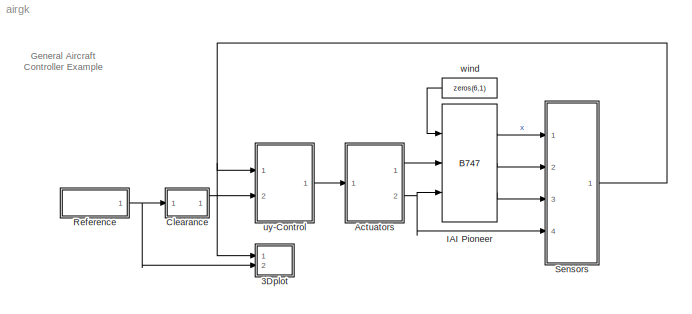
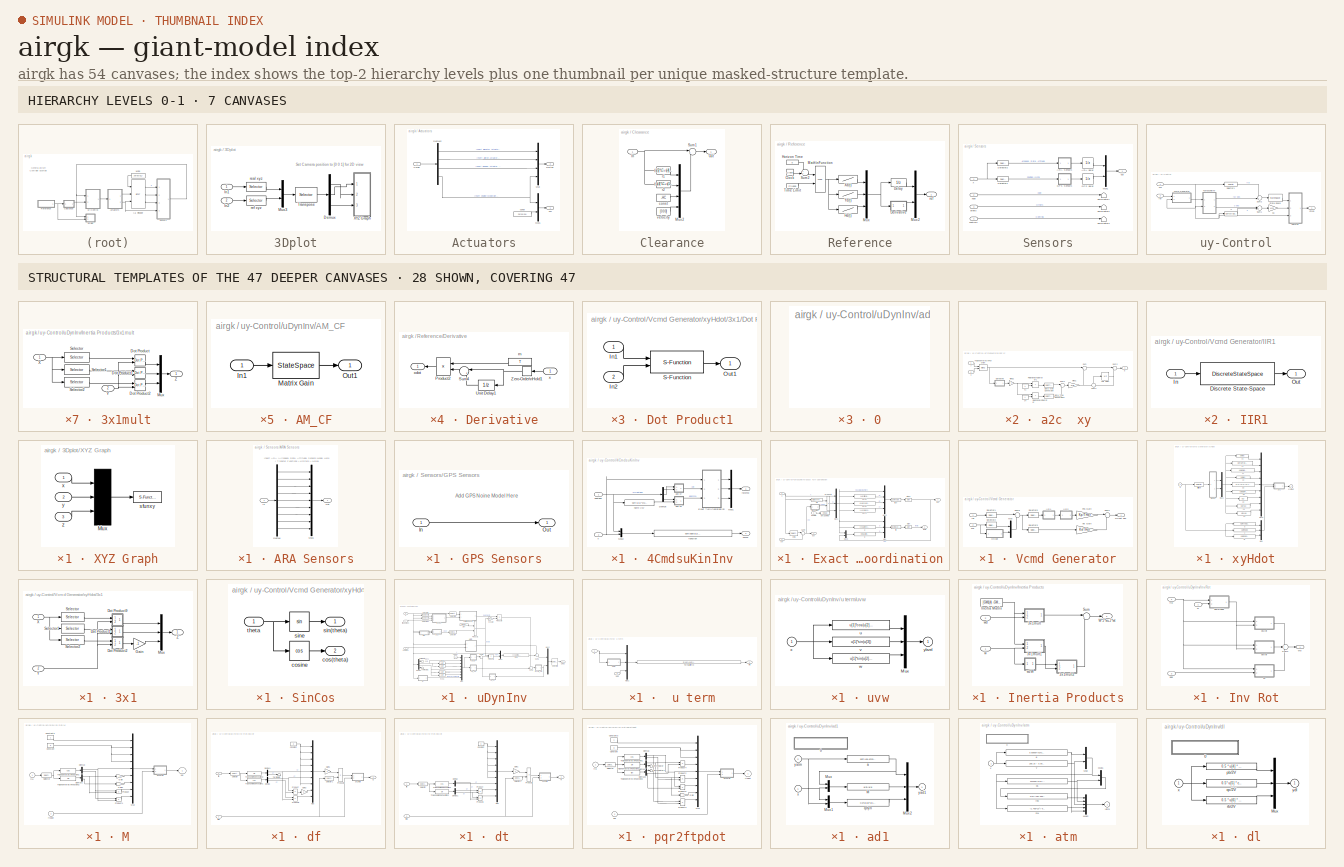
[diagram: thumbnail index - top-2 hierarchy levels (7 canvases) + 28 structural-template representatives of the remaining 47 canvases]
MODEL airgk
KIND model
CONFIG AbsTol = auto
CONFIG FixedStep = auto
CONFIG MaxStep = auto
CONFIG RelTol = 1e-3
CONFIG Solver = ode45
CONFIG SolverMode = Auto
CONFIG StartTime = 0
CONFIG StopTime = Inf
BLOCK [Reference]  IAI Pioneer   REF=airlib/B747  (lib defined in mdl_00852699f85c, mdl_b3a2112ccc5d, +1 more)
  CD_wind = [0.060  0.430  0  0.0180  0]
  CL_wind = [0.385  4.78  8.05  0.401  0]
  CY_body = [0   -0.819    0     0    0.191    0]
  Cl_body = [0   -0.023   -0.450   0.265   -0.161  -0.00229]
  Cm_body = [0.194  -2.12   -36.6   -1.76    0]
  Cn_body = [0    0.109  -0.110  -0.200    0.0200  -0.0917]
  GM1 = [0.5486  5.1511  2.8261   47.2259  90.9483  111.4754   0  -6.6462  0   190.512]
  Ports = [3, 3, 0, 0, 0]
  SourceBlock = airlib/B747
  SourceType = General Nonlinear Aircraft Model
  x0 = [60 -0.0293682 0   0 0 0   0 -0.0293682 0   0 0 60]
BLOCK [SubSystem] 3Dplot
  Ports = [2, 0, 0, 0, 0]
  ShowPortLabels = on
BLOCK [Demux] 3Dplot/Demux
  Outputs = [2 2 2]
  Ports = [1, 3, 0, 0, 0]
BLOCK [Inport] 3Dplot/In1
  DataType = auto
  Interpolate = on
  Port = 1
  PortWidth = -1
  SampleTime = -1
  SignalType = auto
BLOCK [Inport] 3Dplot/In2
  DataType = auto
  Interpolate = on
  Port = 2
  PortWidth = -1
  SampleTime = -1
  SignalType = auto
BLOCK [Mux] 3Dplot/Mux3
  DisplayOption = bar
  Inputs = [3 3]
  Ports = [2, 1, 0, 0, 0]
BLOCK [Selector] 3Dplot/Transpose
  Elements = reshape(reshape(1:3*2,3,2)',3*2,1)
  InputPortWidth = 3*2
BLOCK [SubSystem] 3Dplot/XYZ Graph
  CopyFcn = sfunxyz([],[],[],'CopyBlock')
  DeleteFcn = sfunxyz([],[],[],'DeleteBlock')
  LoadFcn = sfunxyz([],[],[],'LoadBlock')
  MaskCallbackString = ||||||
  MaskDescription = Multidimensional XY scope using MATLAB graph window.  \n   X,Y,Z coordinates are respectively the first,second, and third input.\n   Enter the number of lines and XY ranges as mask parameters.
  MaskDisplay = plot([.05 .95 .95 .05 .05],[.45 .45 .95 .95 .45], 0.5+cos(0:0.1:2*pi)*0.3,0.7+sin(0:0.1:2*pi)*0.2)
  MaskEnableString = on,on,on,on,on,on,on
  MaskHelp = This block can be used to explore limit cycles. \n   Look at the m-file sfunxyz.m to see how it works.
  MaskIconFrame = on
  MaskIconOpaque = on
  MaskIconRotate = none
  MaskIconUnits = normalized
  MaskPromptString = Number of lines|[xmin xmax]|[ymin ymax]|[zmin zmax]|Camera position|Grid|Sample time:
  MaskSelfModifiable = on
  MaskStyleString = edit,edit,edit,edit,edit,checkbox,edit
  MaskTunableValueString = on,on,on,on,on,on,on
  MaskType = XYZ multiscope
  MaskValueString = 2|1e3*[-1 3]|1e3*[-1 3]|1e3*[0 0.5]|[3000 2000 1]|on|0.1
  MaskVariables = np=@1;xlim=@2;ylim=@3;zlim=@4;cp=@5;gd=@6;st=@7;
  MaskVisibilityString = on,on,on,on,on,on,on
  NameChangeFcn = sfunxyz([],[],[],'NameChange')
  Ports = [3, 0, 0, 0, 0]
  ShowPortLabels = on
  StartFcn = sfunxyz([],[],[],'Start')
  StopFcn = sfunxyz([],[],[],'Stop')
BLOCK [Mux] 3Dplot/XYZ Graph/Mux
  DisplayOption = none
  Inputs = [np np np]
  Ports = [3, 1, 0, 0, 0]
BLOCK [S-Function] 3Dplot/XYZ Graph/sfunxy
  FunctionName = sfunxyz
  Parameters = [xlim ylim zlim],st,np,cp,gd
  PortCounts = []
  Ports = [1, 0, 0, 0, 0]
  SFunctionModules = ''
BLOCK [Inport] 3Dplot/XYZ Graph/x
  DataType = auto
  Interpolate = on
  Port = 1
  PortWidth = -1
  SampleTime = -1
  SignalType = auto
BLOCK [Inport] 3Dplot/XYZ Graph/y
  DataType = auto
  Interpolate = on
  Port = 2
  PortWidth = -1
  SampleTime = -1
  SignalType = auto
BLOCK [Inport] 3Dplot/XYZ Graph/z
  DataType = auto
  Interpolate = on
  Port = 3
  PortWidth = -1
  SampleTime = -1
  SignalType = auto
BLOCK [Selector] 3Dplot/real xyz
  Elements = 10:12
  InputPortWidth = 12
BLOCK [Selector] 3Dplot/ref xyz
  Elements = 1:3
  InputPortWidth = 6
BLOCK [SubSystem] Actuators
  Ports = [1, 2, 0, 0, 0]
  ShowPortLabels = on
BLOCK [Inport] Actuators/Cmds
  DataType = auto
  Interpolate = on
  Port = 1
  PortWidth = -1
  SampleTime = -1
  SignalType = auto
BLOCK [Outport] Actuators/Deltas
  InitialOutput = []
  OutputWhenDisabled = held
  Port = 2
BLOCK [Demux] Actuators/Demux2
  Outputs = 4
  Ports = [1, 4, 0, 0, 0]
BLOCK [Outport] Actuators/FM
  InitialOutput = []
  OutputWhenDisabled = held
  Port = 1
BLOCK [Mux] Actuators/Mux
  DisplayOption = bar
  Inputs = [1 1 1 1]
  Ports = [4, 1, 0, 0, 0]
BLOCK [Mux] Actuators/Mux1
  DisplayOption = none
  Inputs = [1 5]
  Ports = [2, 1, 0, 0, 0]
BLOCK [Constant] Actuators/const
  Value = zeros(5,1)
BLOCK [SubSystem] Clearance
  MaskCallbackString = ||
  MaskDescription = The input vector contains a position, velocity\n  and two aditional signals. The output position\n  is translated respect to the input of the quantities\n  [FC, LC, HC] respectively behind, on the right\n  and above the velocity vector direction.
  MaskEnableString = on,on,on
  MaskHelp = The input vector contains a position, velocity\n  and two aditional signals. The output position\n  is translated respect to the input of the quantities\n  [FC, LC, HC] respectively behind, on the right\n  and above the velocity vector direction.
  MaskIconFrame = on
  MaskIconOpaque = on
  MaskIconRotate = none
  MaskIconUnits = autoscale
  MaskPromptString = Forward Clearance|Lateral Clearance|Altitude Clearance
  MaskStyleString = edit,edit,edit
  MaskTunableValueString = on,on,on
  MaskType = Reference Position
  MaskValueString = 0|0|0
  MaskVariables = FC=@1;LC=@2;HC=@3;
  MaskVisibilityString = on,on,on
  Ports = [1, 1, 0, 0, 0]
  ShowPortLabels = on
BLOCK [Inport] Clearance/In
  DataType = auto
  Interpolate = on
  Port = 1
  PortWidth = -1
  SampleTime = -1
  SignalType = auto
BLOCK [Mux] Clearance/Mux2
  DisplayOption = bar
  Inputs = [1 1 1 3]
  Ports = [4, 1, 0, 0, 0]
BLOCK [Outport] Clearance/Out
  InitialOutput = []
  OutputWhenDisabled = held
  Port = 1
BLOCK [Sum] Clearance/Sum1
  IconShape = round
  Inputs = |+-
  Ports = [2, 1, 0, 0, 0]
  SaturateOnIntegerOverflow = on
BLOCK [Constant] Clearance/const
  Value = -HC
BLOCK [Fcn] Clearance/r1
  Expr = (u[5]*LC+u[4]*FC)/sqrt(u[4]^2+u[5]^2)
BLOCK [Fcn] Clearance/r2
  Expr = (-u[4]*LC+u[5]*FC)/sqrt(u[4]^2+u[5]^2)
BLOCK [Constant] Clearance/velocity
  Value = [0 0 0]
BLOCK [SubSystem] Reference
  MaskCallbackString = ||||
  MaskDescription = This block generates a 3D trajectory. The output is a vector containing \n  the position and velocity of a point that sequentially visits each X,Y,Z \n  position at the corrisponding time. The velocity is constant between \n  one visited point and the next.
  MaskEnableString = on,on,on,on,on
  MaskHelp = This block generates a 3D trajectory. The output is a vector containing \n  the position and velocity of a point that sequentially visits each X,Y,Z \n  position at the corrisponding time. The velocity is constant between \n  one visited point and the next.
  MaskIconFrame = on
  MaskIconOpaque = on
  MaskIconRotate = none
  MaskIconUnits = autoscale
  MaskPromptString = X Positions|Y Positions|H Positions|Time|Sample Time
  MaskStyleString = edit,edit,edit,edit,edit
  MaskTunableValueString = on,on,on,on,on
  MaskType = Reference Path Generation
  MaskValueString = [0          2000          2000             0             0             0]|[0             0          2000          2000          1000             0]|[60           100            60           500            60            60]|[0   33.3400   66.6800  100.8105  119.0191  135.6858]|0.05
  MaskVariables = Px=@1;Py=@2;Ph=@3;Pt=@4;T=@5;
  MaskVisibilityString = on,on,on,on,on
  Ports = [0, 1, 0, 0, 0]
  ShowPortLabels = on
BLOCK [Clock] Reference/Clock
  Decimation = 10
  DisplayTime = off
BLOCK [UnitDelay] Reference/Delay
  SampleTime = T
  X0 = [Px(1) Py(1) Ph(1)]
BLOCK [SubSystem] Reference/Derivative
  MaskCallbackString = |
  MaskDescription = First order approximation of the time derivative of the input signal,\n  the original one is buggy.
  MaskEnableString = on,on
  MaskIconFrame = on
  MaskIconOpaque = on
  MaskIconRotate = none
  MaskIconUnits = autoscale
  MaskPromptString = Initial Condition|Sampling Time
  MaskStyleString = edit,edit
  MaskTunableValueString = on,on
  MaskType = Time Derivative
  MaskValueString = [Px(1) Py(1) Ph(1)]'-[Px(2)-Px(1) Py(2)-Py(1) Ph(2)-Ph(1)]'/(Pt(2)-Pt(1))*T|T
  MaskVariables = x0=@1;T=@2;
  MaskVisibilityString = on,on
  Ports = [1, 1, 0, 0, 0]
  ShowPortLabels = on
BLOCK [Product] Reference/Derivative/Product2
  Inputs = /*
  Ports = [2, 1, 0, 0, 0]
  SaturateOnIntegerOverflow = on
BLOCK [Sum] Reference/Derivative/Sum4
  IconShape = round
  Inputs = |+-
  Ports = [2, 1, 0, 0, 0]
  SaturateOnIntegerOverflow = on
BLOCK [UnitDelay] Reference/Derivative/Unit Delay1
  SampleTime = T
  X0 = x0
BLOCK [ZeroOrderHold] Reference/Derivative/Zero-Order\nHold1
  SampleTime = T
BLOCK [Constant] Reference/Derivative/m
  Value = T
BLOCK [Inport] Reference/Derivative/x
  DataType = auto
  Interpolate = on
  Port = 1
  PortWidth = -1
  SampleTime = -1
  SignalType = auto
BLOCK [Outport] Reference/Derivative/xdot
  InitialOutput = []
  OutputWhenDisabled = held
  Port = 1
BLOCK [Lookup] Reference/Hd(t)
  InputValues = Pt
  OutputValues = Ph
BLOCK [Constant] Reference/Horizon Time
  Value = 0
BLOCK [Math] Reference/Math\nFunction
  Operator = mod
  OutputSignalType = auto
  Ports = [2, 1, 0, 0, 0]
BLOCK [Mux] Reference/Mux
  DisplayOption = bar
  Inputs = 3
  Ports = [3, 1, 0, 0, 0]
BLOCK [Mux] Reference/Mux2
  DisplayOption = bar
  Inputs = [3 3]
  Ports = [2, 1, 0, 0, 0]
BLOCK [Sum] Reference/Sum2
  IconShape = round
  Inputs = ++|
  Ports = [2, 1, 0, 0, 0]
  SaturateOnIntegerOverflow = on
BLOCK [Constant] Reference/Time Limit
  Value = Pt(end)
BLOCK [Lookup] Reference/Xd(t)
  InputValues = Pt
  OutputValues = Px
BLOCK [Lookup] Reference/Yd(t)
  InputValues = Pt
  OutputValues = Py
BLOCK [Outport] Reference/ref
  InitialOutput = []
  OutputWhenDisabled = held
  Port = 1
BLOCK [SubSystem] Sensors
  Ports = [4, 1, 0, 0, 0]
  ShowPortLabels = on
BLOCK [SubSystem] Sensors/ARA Sensors
  Ports = [1, 1, 0, 0, 0]
  ShowPortLabels = on
BLOCK [Demux] Sensors/ARA Sensors/Demux
  Outputs = 9
  Ports = [1, 9, 0, 0, 0]
BLOCK [Inport] Sensors/ARA Sensors/In
  DataType = auto
  Interpolate = on
  Port = 1
  PortWidth = -1
  SampleTime = -1
  SignalType = auto
BLOCK [Mux] Sensors/ARA Sensors/Mux1
  DisplayOption = bar
  Inputs = 9
  Ports = [9, 1, 0, 0, 0]
BLOCK [Outport] Sensors/ARA Sensors/Out
  InitialOutput = []
  OutputWhenDisabled = held
  Port = 1
BLOCK [UnitDelay] Sensors/ARA delay
  SampleTime = 0.05
  X0 = [60 -0.0293682 0   0 0 0   0 -0.0293682 0]
BLOCK [SubSystem] Sensors/GPS Sensors
  Ports = [1, 1, 0, 0, 0]
  ShowPortLabels = on
BLOCK [Inport] Sensors/GPS Sensors/In
  DataType = auto
  Interpolate = on
  Port = 1
  PortWidth = -1
  SampleTime = -1
  SignalType = auto
BLOCK [Outport] Sensors/GPS Sensors/Out
  InitialOutput = []
  OutputWhenDisabled = held
  Port = 1
BLOCK [UnitDelay] Sensors/GPS delay
  SampleTime = 0.05
  X0 = [-2.5  0  60]
BLOCK [Mux] Sensors/Mux1
  DisplayOption = bar
  Inputs = [9 3]
  Ports = [2, 1, 0, 0, 0]
BLOCK [Selector] Sensors/Selector1
  Elements = [10 11 12]
  InputPortWidth = 12
BLOCK [Selector] Sensors/Selector2
  Elements = [1:9]
  InputPortWidth = 12
BLOCK [Terminator] Sensors/Terminator1
BLOCK [Terminator] Sensors/Terminator2
BLOCK [Terminator] Sensors/Terminator3
BLOCK [Inport] Sensors/controls
  DataType = auto
  Interpolate = on
  Port = 4
  PortWidth = -1
  SampleTime = -1
  SignalType = auto
BLOCK [Inport] Sensors/others
  DataType = auto
  Interpolate = on
  Port = 3
  PortWidth = -1
  SampleTime = -1
  SignalType = auto
BLOCK [Outport] Sensors/out
  InitialOutput = []
  OutputWhenDisabled = held
  Port = 1
BLOCK [Inport] Sensors/x
  DataType = auto
  Interpolate = on
  Port = 1
  PortWidth = -1
  SampleTime = -1
  SignalType = auto
BLOCK [Inport] Sensors/xdot
  DataType = auto
  Interpolate = on
  Port = 2
  PortWidth = -1
  SampleTime = -1
  SignalType = auto
BLOCK [SubSystem] uy-Control
  MaskCallbackString = ||||||||
  MaskDescription = This block is a general feedback linearization controller for aircraft.\n  The first input is a vector contains the 12 aircraft states.\n  The second input contains the reference position and velocity.\n  The output contains the commanded deflections (elevator, \n  aileron and rudder) and the thrust force along the body x axis.\n  Geometry, Mass and Aerodynamic Derivatives should match the \n  one...<+482ch>
  MaskDisplay = disp('General\\nAircraft\\nController')
  MaskEnableString = on,on,on,on,on,on,on,on,on
  MaskHelp = <p>\n  This block is a general feedback linearization controller for aircraft.\n  The first input is a vector contains the 12 aircraft states.\n  The second input contains the reference position and velocity.\n  The output contains the commanded deflections (elevator, \n  aileron and rudder) and the thrust force along the body x axis.\n  Geometry, Mass and Aerodynamic Derivatives should match the ...<+3057ch>
  MaskIconFrame = on
  MaskIconOpaque = on
  MaskIconRotate = none
  MaskIconUnits = autoscale
  MaskPromptString = Geometry and Mass : [cbar   b    S    Ix   Iy   Iz   Jxy  Jxz  Jyz  m]|Aerodynamic D-Force Derivatives : [CD0 CDa CDq CDde CDih]|Aerodynamic L-Force Derivatives : [CL0 CLa CLq CLde CLih]|Aerodynamic Y-Moment Derivatives : [Cm0 Cma Cmq Cmde Cmih]|Aerodynamic X-moment Derivatives : [Cl0 Clb Clp Clr Clda Cldr]|Aerodynamic Z-moment Derivatives : [Cn0 Cnb Cnp Cnr Cnda Cndr]|Controller Coefficients: [Ka...<+40ch>
  MaskStyleString = edit,edit,edit,edit,edit,edit,edit,edit,edit
  MaskTunableValueString = on,on,on,on,on,on,on,on,on
  MaskType = General Nonlinear Aircraft Controller
  MaskValueString = [0.5486  5.1511  2.8261   47.2259  90.9483  111.4754   0  -6.6462  0   190.512]|[0.060  0.430  0  0.0180  0]|[0.385  4.78  8.05  0.401  0]|[0.194  -2.12   -36.6   -1.76    0]|[0   -0.023   -0.450   0.265   -0.161  -0.00229]|[0    0.109  -0.110  -0.200    0.0200  -0.0917]|[-6.75 9 -9 13.5 0.3]|15|0.05
  MaskVariables = GM1=@1;CD_wind=@2;CL_wind=@3;Cm_body=@4;Cl_body=@5;Cn_body=@6;K=@7;THor=@8;Ts=@9;
  MaskVisibilityString = on,on,on,on,on,on,on,on,on
  Ports = [2, 1, 0, 0, 0]
  ShowPortLabels = on
BLOCK [SubSystem] uy-Control/4CmdsuKinInv
  MaskCallbackString = |
  MaskDescription = This block uses an exact turn coordination constraint\n  to obtain velocity and attitude commands from desired accelerations.\n  The first input contains the desired derivatives of the position (x,y,H).\n  The second input contains the actual state of the aircraft.\n  The first and second outputs contain respectively the commanded\n  euler angles and the speed along the x axis (u=Vcos(a)cos(b)).\n...<+61ch>
  MaskDisplay = disp('u-Inverse\\nKinematic\\nModel')
  MaskEnableString = on,on
  MaskHelp = This block uses an exact turn coordination constraint\n  to obtain velocity and attitude commands from desired accelerations.\n  The first input contains the desired derivatives of the position (x,y,H).\n  The second input contains the actual state of the aircraft.\n  The first and second outputs contain respectively the commanded\n  euler angles and the speed along the x axis (u=Vcos(a)cos(b)).\n...<+61ch>
  MaskIconFrame = on
  MaskIconOpaque = on
  MaskIconRotate = none
  MaskIconUnits = autoscale
  MaskPromptString = Initial Psi (used for Turn Coordination Derivative)|Sampling Time (used for Turn Coordination Derivative)
  MaskStyleString = edit,edit
  MaskTunableValueString = on,on
  MaskType = Inverse Nonlinear Aircraft Model
  MaskValueString = 0|Ts
  MaskVariables = Psi0=@1;T=@2;
  MaskVisibilityString = on,on
  Ports = [2, 2, 0, 0, 0]
  ShowPortLabels = on
BLOCK [Demux] uy-Control/4CmdsuKinInv/Demux
  Outputs = 3
  Ports = [1, 3, 0, 0, 0]
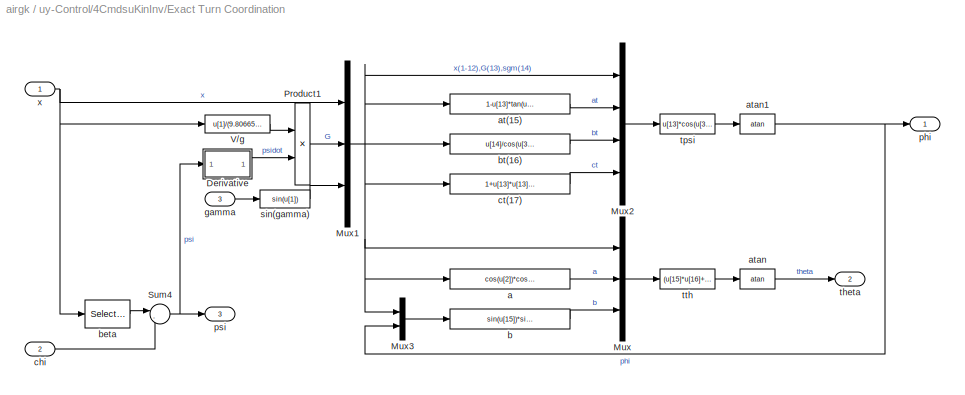
BLOCK [SubSystem] uy-Control/4CmdsuKinInv/Exact Turn Coordination
  Ports = [3, 3, 0, 0, 0]
  ShowPortLabels = on
BLOCK [SubSystem] uy-Control/4CmdsuKinInv/Exact Turn Coordination/Derivative
  MaskCallbackString = |
  MaskDescription = First order approximation of the time derivative of the input signal,\n  the original one is buggy.
  MaskEnableString = on,on
  MaskIconFrame = on
  MaskIconOpaque = on
  MaskIconRotate = none
  MaskIconUnits = autoscale
  MaskPromptString = Sampling Time|Initial Condition
  MaskStyleString = edit,edit
  MaskTunableValueString = on,on
  MaskType = Time Derivative
  MaskValueString = T|Psi0
  MaskVariables = T=@1;x0=@2;
  MaskVisibilityString = on,on
  Ports = [1, 1, 0, 0, 0]
  ShowPortLabels = on
BLOCK [Product] uy-Control/4CmdsuKinInv/Exact Turn Coordination/Derivative/Product2
  Inputs = /*
  Ports = [2, 1, 0, 0, 0]
  SaturateOnIntegerOverflow = on
BLOCK [Sum] uy-Control/4CmdsuKinInv/Exact Turn Coordination/Derivative/Sum4
  IconShape = round
  Inputs = |+-
  Ports = [2, 1, 0, 0, 0]
  SaturateOnIntegerOverflow = on
BLOCK [UnitDelay] uy-Control/4CmdsuKinInv/Exact Turn Coordination/Derivative/Unit Delay1
  SampleTime = T
  X0 = x0
BLOCK [ZeroOrderHold] uy-Control/4CmdsuKinInv/Exact Turn Coordination/Derivative/Zero-Order\nHold1
  SampleTime = T
BLOCK [Constant] uy-Control/4CmdsuKinInv/Exact Turn Coordination/Derivative/m
  Value = T
BLOCK [Inport] uy-Control/4CmdsuKinInv/Exact Turn Coordination/Derivative/x
  DataType = auto
  Interpolate = on
  Port = 1
  PortWidth = -1
  SampleTime = -1
  SignalType = auto
BLOCK [Outport] uy-Control/4CmdsuKinInv/Exact Turn Coordination/Derivative/xdot
  InitialOutput = []
  OutputWhenDisabled = held
  Port = 1
BLOCK [Mux] uy-Control/4CmdsuKinInv/Exact Turn Coordination/Mux
  DisplayOption = bar
  Inputs = [14 1 1]
  Ports = [3, 1, 0, 0, 0]
BLOCK [Mux] uy-Control/4CmdsuKinInv/Exact Turn Coordination/Mux1
  DisplayOption = bar
  Inputs = [12 1 1]
  Ports = [3, 1, 0, 0, 0]
BLOCK [Mux] uy-Control/4CmdsuKinInv/Exact Turn Coordination/Mux2
  DisplayOption = bar
  Inputs = [14 1 1 1]
  Ports = [4, 1, 0, 0, 0]
BLOCK [Mux] uy-Control/4CmdsuKinInv/Exact Turn Coordination/Mux3
  DisplayOption = bar
  Inputs = [14 1]
  Ports = [2, 1, 0, 0, 0]
BLOCK [Product] uy-Control/4CmdsuKinInv/Exact Turn Coordination/Product1
  Inputs = **
  Ports = [2, 1, 0, 0, 0]
  SaturateOnIntegerOverflow = on
BLOCK [Sum] uy-Control/4CmdsuKinInv/Exact Turn Coordination/Sum4
  IconShape = round
  Inputs = |-+
  Ports = [2, 1, 0, 0, 0]
  SaturateOnIntegerOverflow = on
BLOCK [Fcn] uy-Control/4CmdsuKinInv/Exact Turn Coordination/V//g
  Expr = u[1]/(9.80665*(6371020/(6371020+u[12]))^2)
BLOCK [Fcn] uy-Control/4CmdsuKinInv/Exact Turn Coordination/a
  Expr = cos(u[2])*cos(u[3])
BLOCK [Fcn] uy-Control/4CmdsuKinInv/Exact Turn Coordination/at(15)
  Expr = 1-u[13]*tan(u[2])*sin(u[3])
BLOCK [Trigonometry] uy-Control/4CmdsuKinInv/Exact Turn Coordination/atan
  Operator = atan
  OutputSignalType = auto
  Ports = [1, 1, 0, 0, 0]
BLOCK [Trigonometry] uy-Control/4CmdsuKinInv/Exact Turn Coordination/atan1
  Operator = atan
  OutputSignalType = auto
  Ports = [1, 1, 0, 0, 0]
BLOCK [Fcn] uy-Control/4CmdsuKinInv/Exact Turn Coordination/b
  Expr = sin(u[15])*sin(u[3])+cos(u[9])*sin(u[2])*cos(u[3])
BLOCK [Selector] uy-Control/4CmdsuKinInv/Exact Turn Coordination/beta
  Elements = 3
  InputPortWidth = 12
BLOCK [Fcn] uy-Control/4CmdsuKinInv/Exact Turn Coordination/bt(16)
  Expr = u[14]/cos(u[3])
BLOCK [Inport] uy-Control/4CmdsuKinInv/Exact Turn Coordination/chi
  DataType = auto
  Interpolate = on
  Port = 2
  PortWidth = -1
  SampleTime = -1
  SignalType = auto
BLOCK [Fcn] uy-Control/4CmdsuKinInv/Exact Turn Coordination/ct(17)
  Expr = 1+u[13]*u[13]*cos(u[3])*cos(u[3])
BLOCK [Inport] uy-Control/4CmdsuKinInv/Exact Turn Coordination/gamma
  DataType = auto
  Interpolate = on
  Port = 3
  PortWidth = -1
  SampleTime = -1
  SignalType = auto
BLOCK [Outport] uy-Control/4CmdsuKinInv/Exact Turn Coordination/phi
  InitialOutput = []
  OutputWhenDisabled = held
  Port = 1
BLOCK [Outport] uy-Control/4CmdsuKinInv/Exact Turn Coordination/psi
  InitialOutput = []
  OutputWhenDisabled = held
  Port = 3
BLOCK [Fcn] uy-Control/4CmdsuKinInv/Exact Turn Coordination/sin(gamma)
  Expr = sin(u[1])
BLOCK [Outport] uy-Control/4CmdsuKinInv/Exact Turn Coordination/theta
  InitialOutput = []
  OutputWhenDisabled = held
  Port = 2
BLOCK [Fcn] uy-Control/4CmdsuKinInv/Exact Turn Coordination/tpsi
  Expr = u[13]*cos(u[3])/cos(u[2])*(u[15]-u[16]*u[16]+u[16]*tan(u[2])*sqrt(abs(u[17]*(1-u[16]*u[16])+u[13]*u[13]*sin(u[3])*sin(u[3]))))/(u[15]*u[15]-u[16]*u[16]*(1+u[17]*tan(u[2])*tan(u[2])))
BLOCK [Fcn] uy-Control/4CmdsuKinInv/Exact Turn Coordination/tth
  Expr = (u[15]*u[16]+u[14]*sqrt(abs(u[15]*u[15]-u[14]*u[14]+u[16]*u[16])))/(u[15]*u[15]-u[14]*u[14])
BLOCK [Inport] uy-Control/4CmdsuKinInv/Exact Turn Coordination/x
  DataType = auto
  Interpolate = on
  Port = 1
  PortWidth = -1
  SampleTime = -1
  SignalType = auto
BLOCK [Mux] uy-Control/4CmdsuKinInv/Mux1
  DisplayOption = bar
  Inputs = 3
  Ports = [3, 1, 0, 0, 0]
BLOCK [Mux] uy-Control/4CmdsuKinInv/Mux2
  DisplayOption = bar
  Inputs = [3 12]
  Ports = [2, 1, 0, 0, 0]
BLOCK [SubSystem] uy-Control/4CmdsuKinInv/a2c  xy
  MaskCallbackString = |
  MaskDescription = This atan2 does not jump between pi and -pi.\n  It is assumed that the inputs changes smoothly in time, \n  specifically it is assumed that the maximum magnitude of the \n  angular velocity of the input point [x,y] is less than L/T [rad/sec],\n  where L and T are the first and second parameters in the mask.
  MaskEnableString = on,on
  MaskIconFrame = on
  MaskIconOpaque = off
  MaskIconRotate = none
  MaskIconUnits = autoscale
  MaskPromptString = Maximum angular distance covered during the sample time (< 2*pi)|Sample Time
  MaskStyleString = edit,edit
  MaskTunableValueString = on,on
  MaskType = Continuous Atan2 Function
  MaskValueString = 4|T
  MaskVariables = L=@1;T=@2;
  MaskVisibilityString = on,on
  Ports = [2, 1, 0, 0, 0]
  ShowPortLabels = on
BLOCK [DataTypeConversion] uy-Control/4CmdsuKinInv/a2c  xy/Data Type Conversion
  DataType = double
  SaturateOnIntegerOverflow = on
BLOCK [DataTypeConversion] uy-Control/4CmdsuKinInv/a2c  xy/Data Type Conversion1
  DataType = double
  SaturateOnIntegerOverflow = on
BLOCK [SubSystem] uy-Control/4CmdsuKinInv/a2c  xy/Derivative
  MaskDescription = First order approximation of the time derivative of the input signal,\n  the original one is buggy.
  MaskEnableString = on
  MaskIconFrame = on
  MaskIconOpaque = on
  MaskIconRotate = none
  MaskIconUnits = autoscale
  MaskPromptString = Sampling Time
  MaskStyleString = edit
  MaskTunableValueString = on
  MaskType = Time Derivative
  MaskValueString = T
  MaskVariables = T=@1;
  MaskVisibilityString = on
  Ports = [1, 1, 0, 0, 0]
  ShowPortLabels = on
BLOCK [Product] uy-Control/4CmdsuKinInv/a2c  xy/Derivative/Product2
  Inputs = /*
  Ports = [2, 1, 0, 0, 0]
  SaturateOnIntegerOverflow = on
BLOCK [Sum] uy-Control/4CmdsuKinInv/a2c  xy/Derivative/Sum4
  IconShape = round
  Inputs = |+-
  Ports = [2, 1, 0, 0, 0]
  SaturateOnIntegerOverflow = on
BLOCK [UnitDelay] uy-Control/4CmdsuKinInv/a2c  xy/Derivative/Unit Delay1
  SampleTime = -1
  X0 = 0
BLOCK [ZeroOrderHold] uy-Control/4CmdsuKinInv/a2c  xy/Derivative/Zero-Order\nHold1
  SampleTime = T
BLOCK [Constant] uy-Control/4CmdsuKinInv/a2c  xy/Derivative/m
  Value = T
BLOCK [Inport] uy-Control/4CmdsuKinInv/a2c  xy/Derivative/x
  DataType = auto
  Interpolate = on
  Port = 1
  PortWidth = -1
  SampleTime = -1
  SignalType = auto
BLOCK [Outport] uy-Control/4CmdsuKinInv/a2c  xy/Derivative/xdot
  InitialOutput = []
  OutputWhenDisabled = held
  Port = 1
BLOCK [RelationalOperator] uy-Control/4CmdsuKinInv/a2c  xy/Relational\nOperator
  Operator = >
BLOCK [RelationalOperator] uy-Control/4CmdsuKinInv/a2c  xy/Relational\nOperator1
  Operator = <
BLOCK [Sum] uy-Control/4CmdsuKinInv/a2c  xy/Sum
  IconShape = round
  Inputs = |++
  Ports = [2, 1, 0, 0, 0]
  SaturateOnIntegerOverflow = on
BLOCK [Sum] uy-Control/4CmdsuKinInv/a2c  xy/Sum1
  IconShape = round
  Inputs = |+-
  Ports = [2, 1, 0, 0, 0]
  SaturateOnIntegerOverflow = on
BLOCK [Sum] uy-Control/4CmdsuKinInv/a2c  xy/Sum2
  IconShape = round
  Inputs = |++
  Ports = [2, 1, 0, 0, 0]
  SaturateOnIntegerOverflow = on
BLOCK [Sum] uy-Control/4CmdsuKinInv/a2c  xy/Sum3
  IconShape = round
  Inputs = ++
  Ports = [2, 1, 0, 0, 0]
  SaturateOnIntegerOverflow = on
BLOCK [Trigonometry] uy-Control/4CmdsuKinInv/a2c  xy/Trigonometric\nFunction
  Operator = atan2
  OutputSignalType = auto
  Ports = [2, 1, 0, 0, 0]
BLOCK [UnitDelay] uy-Control/4CmdsuKinInv/a2c  xy/Unit Delay
  SampleTime = T
  X0 = 0
BLOCK [Outport] uy-Control/4CmdsuKinInv/a2c  xy/a
  InitialOutput = []
  OutputWhenDisabled = held
  Port = 1
BLOCK [Constant] uy-Control/4CmdsuKinInv/a2c  xy/c1
  Value = -L
BLOCK [Constant] uy-Control/4CmdsuKinInv/a2c  xy/c4
  Value = L
BLOCK [Gain] uy-Control/4CmdsuKinInv/a2c  xy/wind1
  Gain = 2*pi
  SaturateOnIntegerOverflow = on
BLOCK [Gain] uy-Control/4CmdsuKinInv/a2c  xy/wind2
  Gain = T
  SaturateOnIntegerOverflow = on
BLOCK [Inport] uy-Control/4CmdsuKinInv/a2c  xy/x
  DataType = auto
  Interpolate = on
  Port = 2
  PortWidth = -1
  SampleTime = -1
  SignalType = auto
BLOCK [Inport] uy-Control/4CmdsuKinInv/a2c  xy/y
  DataType = auto
  Interpolate = on
  Port = 1
  PortWidth = -1
  SampleTime = -1
  SignalType = auto
BLOCK [SubSystem] uy-Control/4CmdsuKinInv/a2c xz
  MaskCallbackString = |
  MaskDescription = This atan2 does not jump between pi and -pi.\n  It is assumed that the inputs changes smoothly in time, \n  specifically it is assumed that the maximum magnitude of the \n  angular velocity of the input point [x,y] is less than L/T [rad/sec],\n  where L and T are the first and second parameters in the mask.
  MaskEnableString = on,on
  MaskIconFrame = on
  MaskIconOpaque = off
  MaskIconRotate = none
  MaskIconUnits = autoscale
  MaskPromptString = Maximum angular distance covered during the sample time (< 2*pi)|Sample Time
  MaskStyleString = edit,edit
  MaskTunableValueString = on,on
  MaskType = Continuous Atan2 Function
  MaskValueString = 4|T
  MaskVariables = L=@1;T=@2;
  MaskVisibilityString = on,on
  Ports = [2, 1, 0, 0, 0]
  ShowPortLabels = on
BLOCK [DataTypeConversion] uy-Control/4CmdsuKinInv/a2c xz/Data Type Conversion
  DataType = double
  SaturateOnIntegerOverflow = on
BLOCK [DataTypeConversion] uy-Control/4CmdsuKinInv/a2c xz/Data Type Conversion1
  DataType = double
  SaturateOnIntegerOverflow = on
BLOCK [SubSystem] uy-Control/4CmdsuKinInv/a2c xz/Derivative
  MaskDescription = First order approximation of the time derivative of the input signal,\n  the original one is buggy.
  MaskEnableString = on
  MaskIconFrame = on
  MaskIconOpaque = on
  MaskIconRotate = none
  MaskIconUnits = autoscale
  MaskPromptString = Sampling Time
  MaskStyleString = edit
  MaskTunableValueString = on
  MaskType = Time Derivative
  MaskValueString = T
  MaskVariables = T=@1;
  MaskVisibilityString = on
  Ports = [1, 1, 0, 0, 0]
  ShowPortLabels = on
BLOCK [Product] uy-Control/4CmdsuKinInv/a2c xz/Derivative/Product2
  Inputs = /*
  Ports = [2, 1, 0, 0, 0]
  SaturateOnIntegerOverflow = on
BLOCK [Sum] uy-Control/4CmdsuKinInv/a2c xz/Derivative/Sum4
  IconShape = round
  Inputs = |+-
  Ports = [2, 1, 0, 0, 0]
  SaturateOnIntegerOverflow = on
BLOCK [UnitDelay] uy-Control/4CmdsuKinInv/a2c xz/Derivative/Unit Delay1
  SampleTime = -1
  X0 = 0
BLOCK [ZeroOrderHold] uy-Control/4CmdsuKinInv/a2c xz/Derivative/Zero-Order\nHold1
  SampleTime = T
BLOCK [Constant] uy-Control/4CmdsuKinInv/a2c xz/Derivative/m
  Value = T
BLOCK [Inport] uy-Control/4CmdsuKinInv/a2c xz/Derivative/x
  DataType = auto
  Interpolate = on
  Port = 1
  PortWidth = -1
  SampleTime = -1
  SignalType = auto
BLOCK [Outport] uy-Control/4CmdsuKinInv/a2c xz/Derivative/xdot
  InitialOutput = []
  OutputWhenDisabled = held
  Port = 1
BLOCK [RelationalOperator] uy-Control/4CmdsuKinInv/a2c xz/Relational\nOperator
  Operator = >
BLOCK [RelationalOperator] uy-Control/4CmdsuKinInv/a2c xz/Relational\nOperator1
  Operator = <
BLOCK [Sum] uy-Control/4CmdsuKinInv/a2c xz/Sum
  IconShape = round
  Inputs = |++
  Ports = [2, 1, 0, 0, 0]
  SaturateOnIntegerOverflow = on
BLOCK [Sum] uy-Control/4CmdsuKinInv/a2c xz/Sum1
  IconShape = round
  Inputs = |+-
  Ports = [2, 1, 0, 0, 0]
  SaturateOnIntegerOverflow = on
BLOCK [Sum] uy-Control/4CmdsuKinInv/a2c xz/Sum2
  IconShape = round
  Inputs = |++
  Ports = [2, 1, 0, 0, 0]
  SaturateOnIntegerOverflow = on
BLOCK [Sum] uy-Control/4CmdsuKinInv/a2c xz/Sum3
  IconShape = round
  Inputs = ++
  Ports = [2, 1, 0, 0, 0]
  SaturateOnIntegerOverflow = on
BLOCK [Trigonometry] uy-Control/4CmdsuKinInv/a2c xz/Trigonometric\nFunction
  Operator = atan2
  OutputSignalType = auto
  Ports = [2, 1, 0, 0, 0]
BLOCK [UnitDelay] uy-Control/4CmdsuKinInv/a2c xz/Unit Delay
  SampleTime = T
  X0 = 0
BLOCK [Outport] uy-Control/4CmdsuKinInv/a2c xz/a
  InitialOutput = []
  OutputWhenDisabled = held
  Port = 1
BLOCK [Constant] uy-Control/4CmdsuKinInv/a2c xz/c1
  Value = -L
BLOCK [Constant] uy-Control/4CmdsuKinInv/a2c xz/c4
  Value = L
BLOCK [Gain] uy-Control/4CmdsuKinInv/a2c xz/wind1
  Gain = 2*pi
  SaturateOnIntegerOverflow = on
BLOCK [Gain] uy-Control/4CmdsuKinInv/a2c xz/wind2
  Gain = T
  SaturateOnIntegerOverflow = on
BLOCK [Inport] uy-Control/4CmdsuKinInv/a2c xz/x
  DataType = auto
  Interpolate = on
  Port = 2
  PortWidth = -1
  SampleTime = -1
  SignalType = auto
BLOCK [Inport] uy-Control/4CmdsuKinInv/a2c xz/y
  DataType = auto
  Interpolate = on
  Port = 1
  PortWidth = -1
  SampleTime = -1
  SignalType = auto
BLOCK [Fcn] uy-Control/4CmdsuKinInv/function
  Expr = sqrt(abs(u[1]^2+u[2]^2+u[3]^2))*cos(u[3+2])*cos(u[3+3])
BLOCK [Fcn] uy-Control/4CmdsuKinInv/norm Vxy
  Expr = sqrt(u[1]^2+u[2]^2)
BLOCK [Inport] uy-Control/4CmdsuKinInv/pdotdes
  DataType = auto
  Interpolate = on
  Port = 1
  PortWidth = -1
  SampleTime = -1
  SignalType = auto
BLOCK [Outport] uy-Control/4CmdsuKinInv/rpycmd
  InitialOutput = []
  OutputWhenDisabled = held
  Port = 1
BLOCK [Outport] uy-Control/4CmdsuKinInv/ucmd
  InitialOutput = []
  OutputWhenDisabled = held
  Port = 2
BLOCK [Inport] uy-Control/4CmdsuKinInv/x
  DataType = auto
  Interpolate = on
  Port = 2
  PortWidth = -1
  SampleTime = -1
  SignalType = auto
BLOCK [Outport] uy-Control/Cmds
  InitialOutput = []
  OutputWhenDisabled = held
  Port = 1
BLOCK [Gain] uy-Control/Ku
  Gain = K(5)
  SaturateOnIntegerOverflow = on
BLOCK [Selector] uy-Control/Selector1
  Elements = [9 8 7]
  InputPortWidth = 12
BLOCK [StateSpace] uy-Control/State-Space
  A = K(1)*eye(3)
  B = K(2)*eye(3)
  C = K(3)*eye(3)
  D = K(4)*eye(3)
  X0 = 0
BLOCK [Sum] uy-Control/Sum1
  IconShape = round
  Inputs = |+-
  Ports = [2, 1, 0, 0, 0]
  SaturateOnIntegerOverflow = on
BLOCK [Sum] uy-Control/Sum2
  IconShape = round
  Inputs = -+|
  Ports = [2, 1, 0, 0, 0]
  SaturateOnIntegerOverflow = on
BLOCK [SubSystem] uy-Control/Vcmd Generator
  MaskCallbackString = |||
  MaskDescription = The first input is a reference position and velocity vector,\n  the second one is a current position and velocity vector.\n  The output is a filtered command in xyHdot .
  MaskEnableString = on,on,on,on
  MaskHelp = The first input is a reference position and velocity vector,\n  the second one is a current position and velocity vector.\n  The output is a filtered command in xyHdot .
  MaskIconFrame = on
  MaskIconOpaque = on
  MaskIconRotate = none
  MaskIconUnits = autoscale
  MaskPromptString = Position Error Gain|Velocity Error Gain|Horizon Time|Sample Time
  MaskStyleString = edit,edit,edit,edit
  MaskTunableValueString = on,on,on,on
  MaskType = Velocity Command Generator
  MaskValueString = 1|0|THor|Ts
  MaskVariables = Kp=@1;Kv=@2;THor=@3;T=@4;
  MaskVisibilityString = on,on,on,on
  Ports = [2, 1, 0, 0, 0]
  ShowPortLabels = on
BLOCK [SubSystem] uy-Control/Vcmd Generator/IIR1
  MaskCallbackString = ||||
  MaskDescription = Each channel has the transfer function :\n  1-2*cos(sqrt(1-x^2)*m*T)*exp(-x*m*T)+exp(-2*x*m*T) /\n  1-2*cos(sqrt(1-x^2)*m*T)*exp(-x*m*T)z^-1+exp(-2*x*m*T)z^-2\n  which is a good (pz-matched) approximation of \n  m^2/(s^2+2xms+m^2) if 10*m*T<pi\n  The initial condition is in discrete time for the whole system.
  MaskDisplay = dpoly(w^2, [1 2*x*w w^2],'s')
  MaskEnableString = on,on,on,on,on
  MaskHelp = <p>\n  Each channel has the transfer function :\n  1-2*cos(sqrt(1-x^2)*m*T)*exp(-x*m*T)+exp(-2*x*m*T) /\n  1-2*cos(sqrt(1-x^2)*m*T)*exp(-x*m*T)z^-1+exp(-2*x*m*T)z^-2\n  which is a good (pz-matched) approximation of \n  m^2/(s^2+2xms+m^2) if 10*m*T<pi\n</p>\n<p>\n  The initial condition is in discrete time for the whole system.\n   If the input is an m-channel vector u, being u0 at time zero,\n   t...<+74ch>
  MaskIconFrame = on
  MaskIconOpaque = on
  MaskIconRotate = none
  MaskIconUnits = autoscale
  MaskInitialization = A=[];B=[];C=[];D=[];\nfor i=1:ni,\nA=[A,zeros(size(A,1),2);zeros(2,size(A,2)),[0 1; -exp(-2*x*w*T) 2*cos(sqrt(1-x^2)*w*T)*exp(-x*w*T)]];\nB=[B,zeros(size(B,1),1);zeros(2,size(B,2)),[0;1+exp(-2*x*w*T)-2*cos(sqrt(1-x^2)*w*T)*exp(-x*w*T)]];\nC=[C,zeros(size(C,1),2);zeros(1,size(C,2)),[-exp(-2*x*w*T)  2*cos(sqrt(1-x^2)*w*T)*exp(-x*w*T)]];\nD=[D,zeros(size(D,1),1);zeros(1,size(D,2)),1+exp(-2*x*w*T)-2*c...<+38ch>
  MaskPromptString = Number of Channels|Poles Magnitude (m)|Poles Damping (x)|Initial Condition|Sample Time
  MaskStyleString = edit,edit,edit,edit,edit
  MaskTunableValueString = on,on,on,on,on
  MaskType = Discrete Time Second Order IIR
  MaskValueString = 3|20/THor|1|0|T
  MaskVariables = ni=@1;w=@2;x=@3;x0=@4;T=@5;
  MaskVisibilityString = on,on,on,on,on
  Ports = [1, 1, 0, 0, 0]
  ShowPortLabels = on
BLOCK [DiscreteStateSpace] uy-Control/Vcmd Generator/IIR1/Discrete State-Space
  A = A
  B = B
  C = C
  D = D
  SampleTime = T
  X0 = x0
BLOCK [Inport] uy-Control/Vcmd Generator/IIR1/In
  DataType = auto
  Interpolate = on
  Port = 1
  PortWidth = -1
  SampleTime = -1
  SignalType = auto
BLOCK [Outport] uy-Control/Vcmd Generator/IIR1/Out
  InitialOutput = []
  OutputWhenDisabled = held
  Port = 1
BLOCK [SubSystem] uy-Control/Vcmd Generator/IIR2
  MaskCallbackString = ||||
  MaskDescription = Each channel has the transfer function :\n  1-2*cos(sqrt(1-x^2)*m*T)*exp(-x*m*T)+exp(-2*x*m*T) /\n  1-2*cos(sqrt(1-x^2)*m*T)*exp(-x*m*T)z^-1+exp(-2*x*m*T)z^-2\n  which is a good (pz-matched) approximation of \n  m^2/(s^2+2xms+m^2) if 10*m*T<pi\n  The initial condition is in discrete time for the whole system.
  MaskDisplay = dpoly(w^2, [1 2*x*w w^2],'s')
  MaskEnableString = on,on,on,on,on
  MaskHelp = <p>\n  Each channel has the transfer function :\n  1-2*cos(sqrt(1-x^2)*m*T)*exp(-x*m*T)+exp(-2*x*m*T) /\n  1-2*cos(sqrt(1-x^2)*m*T)*exp(-x*m*T)z^-1+exp(-2*x*m*T)z^-2\n  which is a good (pz-matched) approximation of \n  m^2/(s^2+2xms+m^2) if 10*m*T<pi\n</p>\n<p>\n  The initial condition is in discrete time for the whole system.\n   If the input is an m-channel vector u, being u0 at time zero,\n   t...<+74ch>
  MaskIconFrame = on
  MaskIconOpaque = on
  MaskIconRotate = none
  MaskIconUnits = autoscale
  MaskInitialization = A=[];B=[];C=[];D=[];\nfor i=1:ni,\nA=[A,zeros(size(A,1),2);zeros(2,size(A,2)),[0 1; -exp(-2*x*w*T) 2*cos(sqrt(1-x^2)*w*T)*exp(-x*w*T)]];\nB=[B,zeros(size(B,1),1);zeros(2,size(B,2)),[0;1+exp(-2*x*w*T)-2*cos(sqrt(1-x^2)*w*T)*exp(-x*w*T)]];\nC=[C,zeros(size(C,1),2);zeros(1,size(C,2)),[-exp(-2*x*w*T)  2*cos(sqrt(1-x^2)*w*T)*exp(-x*w*T)]];\nD=[D,zeros(size(D,1),1);zeros(1,size(D,2)),1+exp(-2*x*w*T)-2*c...<+38ch>
  MaskPromptString = Number of Channels|Poles Magnitude (m)|Poles Damping (x)|Initial Condition|Sample Time
  MaskStyleString = edit,edit,edit,edit,edit
  MaskTunableValueString = on,on,on,on,on
  MaskType = Discrete Time Second Order IIR
  MaskValueString = 3|20/THor|1|0|T
  MaskVariables = ni=@1;w=@2;x=@3;x0=@4;T=@5;
  MaskVisibilityString = on,on,on,on,on
  Ports = [1, 1, 0, 0, 0]
  ShowPortLabels = on
BLOCK [DiscreteStateSpace] uy-Control/Vcmd Generator/IIR2/Discrete State-Space
  A = A
  B = B
  C = C
  D = D
  SampleTime = T
  X0 = x0
BLOCK [Inport] uy-Control/Vcmd Generator/IIR2/In
  DataType = auto
  Interpolate = on
  Port = 1
  PortWidth = -1
  SampleTime = -1
  SignalType = auto
BLOCK [Outport] uy-Control/Vcmd Generator/IIR2/Out
  InitialOutput = []
  OutputWhenDisabled = held
  Port = 1
BLOCK [Mux] uy-Control/Vcmd Generator/Mux
  DisplayOption = bar
  Inputs = [3 3]
  Ports = [2, 1, 0, 0, 0]
BLOCK [Gain] uy-Control/Vcmd Generator/Pos Gain
  Gain = Kp/THor
  SaturateOnIntegerOverflow = on
BLOCK [Selector] uy-Control/Vcmd Generator/Selector1
  Elements = 1:6
  InputPortWidth = 6
BLOCK [Selector] uy-Control/Vcmd Generator/Selector2
  Elements = 10:12
  InputPortWidth = 12
BLOCK [Selector] uy-Control/Vcmd Generator/Selector3
  Elements = 4:6
  InputPortWidth = 6
BLOCK [Selector] uy-Control/Vcmd Generator/Selector5
  Elements = 1:3
  InputPortWidth = 6
BLOCK [Sum] uy-Control/Vcmd Generator/Sum1
  IconShape = round
  Inputs = |++
  Ports = [2, 1, 0, 0, 0]
  SaturateOnIntegerOverflow = on
BLOCK [Sum] uy-Control/Vcmd Generator/Sum3
  IconShape = round
  Inputs = |+-
  Ports = [2, 1, 0, 0, 0]
  SaturateOnIntegerOverflow = on
BLOCK [Gain] uy-Control/Vcmd Generator/Vel Gain
  Gain = Kv/THor
  SaturateOnIntegerOverflow = on
BLOCK [Inport] uy-Control/Vcmd Generator/ref
  DataType = auto
  Interpolate = on
  Port = 1
  PortWidth = -1
  SampleTime = -1
  SignalType = auto
BLOCK [Inport] uy-Control/Vcmd Generator/sns
  DataType = auto
  Interpolate = on
  Port = 2
  PortWidth = -1
  SampleTime = -1
  SignalType = auto
BLOCK [SubSystem] uy-Control/Vcmd Generator/xyHdot
  MaskDescription = Calculation of earth-axes velocities\nxdot,ydot,Hdot
  MaskDisplay = disp('Earth-axes\\nvelocities')
  MaskIconFrame = on
  MaskIconOpaque = on
  MaskIconRotate = none
  MaskIconUnits = autoscale
  MaskType = uvw
  Ports = [1, 1, 0, 0, 0]
  ShowPortLabels = on
BLOCK [Outport] uy-Control/Vcmd Generator/xyHdot des
  InitialOutput = []
  OutputWhenDisabled = held
  Port = 1
BLOCK [Fcn] uy-Control/Vcmd Generator/xyHdot/11
  Expr = u(6)*u(5)
BLOCK [Fcn] uy-Control/Vcmd Generator/xyHdot/12
  Expr = u(3)*u(5)
BLOCK [Fcn] uy-Control/Vcmd Generator/xyHdot/13
  Expr = -u(2)
BLOCK [Fcn] uy-Control/Vcmd Generator/xyHdot/21
  Expr = u(6)*u(2)*u(1)-u(3)*u(4)
BLOCK [Fcn] uy-Control/Vcmd Generator/xyHdot/22
  Expr = u(3)*u(2)*u(1)+u(6)*u(4)
BLOCK [Fcn] uy-Control/Vcmd Generator/xyHdot/23
  Expr = u(5)*u(1)
BLOCK [Fcn] uy-Control/Vcmd Generator/xyHdot/31
  Expr = u(4)*u(2)*u(6)+u(3)*u(1)
BLOCK [Fcn] uy-Control/Vcmd Generator/xyHdot/32
  Expr = u(3)*u(2)*u(4)-u(6)*u(1)
BLOCK [Fcn] uy-Control/Vcmd Generator/xyHdot/33
  Expr = u(5)*u(4)
BLOCK [SubSystem] uy-Control/Vcmd Generator/xyHdot/3x1
  MaskDescription = Input 1   : elements of matrix X (3 by 3)\n  Input 2   : elements of matrix Y (3 by 3)\n  Output   : elements of matrix X*Y (3 by 3)\n
  MaskDisplay = disp('Z=X*Y')
  MaskHelp = <p>\nElements of input and output matrices are taken columnwise.\n</p>
  MaskIconFrame = on
  MaskIconOpaque = on
  MaskIconRotate = none
  MaskIconUnits = autoscale
  MaskType = 3x3 Matrix Multiplication
  Ports = [2, 1, 0, 0, 0]
  ShowPortLabels = on
BLOCK [SubSystem] uy-Control/Vcmd Generator/xyHdot/3x1/Dot Product1
  MaskDescription = Inner (dot) product.\ny = sum(conj(u1).*u2). The operand u1 corresponds to the top (or left) input port.
  MaskDisplay = patch([x*r+0.5],[y*r+0.5])
  MaskHelp = Computes the inner (dot) product of the inputs: sum(u1.*u2).  The inputs are vectors of the same length. Output is a scalar.
  MaskIconFrame = on
  MaskIconOpaque = on
  MaskIconRotate = none
  MaskIconUnits = normalized
  MaskInitialization = t=(0:.1:2*pi)';\nx=cos(t);\ny=sin(t);\nr=0.05;
  MaskType = Dot Product
  Ports = [2, 1, 0, 0, 0]
  ShowPortLabels = on
BLOCK [Inport] uy-Control/Vcmd Generator/xyHdot/3x1/Dot Product1/In1
  DataType = auto
  Interpolate = on
  Port = 1
  PortWidth = -1
  SampleTime = -1
  SignalType = auto
BLOCK [Inport] uy-Control/Vcmd Generator/xyHdot/3x1/Dot Product1/In2
  DataType = auto
  Interpolate = on
  Port = 2
  PortWidth = -1
  SampleTime = -1
  SignalType = auto
BLOCK [Outport] uy-Control/Vcmd Generator/xyHdot/3x1/Dot Product1/Out1
  InitialOutput = []
  OutputWhenDisabled = held
  Port = 1
BLOCK [S-Function] uy-Control/Vcmd Generator/xyHdot/3x1/Dot Product1/S-Function
  FunctionName = sdotproduct
  PortCounts = []
  Ports = [2, 1, 0, 0, 0]
  SFunctionModules = ''
BLOCK [SubSystem] uy-Control/Vcmd Generator/xyHdot/3x1/Dot Product2
  MaskDescription = Inner (dot) product.\ny = sum(conj(u1).*u2). The operand u1 corresponds to the top (or left) input port.
  MaskDisplay = patch([x*r+0.5],[y*r+0.5])
  MaskHelp = Computes the inner (dot) product of the inputs: sum(u1.*u2).  The inputs are vectors of the same length. Output is a scalar.
  MaskIconFrame = on
  MaskIconOpaque = on
  MaskIconRotate = none
  MaskIconUnits = normalized
  MaskInitialization = t=(0:.1:2*pi)';\nx=cos(t);\ny=sin(t);\nr=0.05;
  MaskType = Dot Product
  Ports = [2, 1, 0, 0, 0]
  ShowPortLabels = on
BLOCK [Inport] uy-Control/Vcmd Generator/xyHdot/3x1/Dot Product2/In1
  DataType = auto
  Interpolate = on
  Port = 1
  PortWidth = -1
  SampleTime = -1
  SignalType = auto
BLOCK [Inport] uy-Control/Vcmd Generator/xyHdot/3x1/Dot Product2/In2
  DataType = auto
  Interpolate = on
  Port = 2
  PortWidth = -1
  SampleTime = -1
  SignalType = auto
BLOCK [Outport] uy-Control/Vcmd Generator/xyHdot/3x1/Dot Product2/Out1
  InitialOutput = []
  OutputWhenDisabled = held
  Port = 1
BLOCK [S-Function] uy-Control/Vcmd Generator/xyHdot/3x1/Dot Product2/S-Function
  FunctionName = sdotproduct
  PortCounts = []
  Ports = [2, 1, 0, 0, 0]
  SFunctionModules = ''
BLOCK [SubSystem] uy-Control/Vcmd Generator/xyHdot/3x1/Dot Product9
  MaskDescription = Inner (dot) product.\ny = sum(conj(u1).*u2). The operand u1 corresponds to the top (or left) input port.
  MaskDisplay = patch([x*r+0.5],[y*r+0.5])
  MaskHelp = Computes the inner (dot) product of the inputs: sum(u1.*u2).  The inputs are vectors of the same length. Output is a scalar.
  MaskIconFrame = on
  MaskIconOpaque = on
  MaskIconRotate = none
  MaskIconUnits = normalized
  MaskInitialization = t=(0:.1:2*pi)';\nx=cos(t);\ny=sin(t);\nr=0.05;
  MaskType = Dot Product
  Ports = [2, 1, 0, 0, 0]
  ShowPortLabels = on
BLOCK [Inport] uy-Control/Vcmd Generator/xyHdot/3x1/Dot Product9/In1
  DataType = auto
  Interpolate = on
  Port = 1
  PortWidth = -1
  SampleTime = -1
  SignalType = auto
BLOCK [Inport] uy-Control/Vcmd Generator/xyHdot/3x1/Dot Product9/In2
  DataType = auto
  Interpolate = on
  Port = 2
  PortWidth = -1
  SampleTime = -1
  SignalType = auto
BLOCK [Outport] uy-Control/Vcmd Generator/xyHdot/3x1/Dot Product9/Out1
  InitialOutput = []
  OutputWhenDisabled = held
  Port = 1
BLOCK [S-Function] uy-Control/Vcmd Generator/xyHdot/3x1/Dot Product9/S-Function
  FunctionName = sdotproduct
  PortCounts = []
  Ports = [2, 1, 0, 0, 0]
  SFunctionModules = ''
BLOCK [Gain] uy-Control/Vcmd Generator/xyHdot/3x1/Gain
  Gain = -1
  SaturateOnIntegerOverflow = off
BLOCK [Mux] uy-Control/Vcmd Generator/xyHdot/3x1/Mux
  DisplayOption = bar
  Inputs = 3
  Ports = [3, 1, 0, 0, 0]
BLOCK [Selector] uy-Control/Vcmd Generator/xyHdot/3x1/Selector
  Elements = [1:3]
  InputPortWidth = 9
BLOCK [Selector] uy-Control/Vcmd Generator/xyHdot/3x1/Selector1
  Elements = [4:6]
  InputPortWidth = 9
BLOCK [Selector] uy-Control/Vcmd Generator/xyHdot/3x1/Selector2
  Elements = [7:9]
  InputPortWidth = 9
BLOCK [Inport] uy-Control/Vcmd Generator/xyHdot/3x1/X
  DataType = auto
  Interpolate = on
  Port = 1
  PortWidth = -1
  SampleTime = -1
  SignalType = auto
BLOCK [Inport] uy-Control/Vcmd Generator/xyHdot/3x1/Y
  DataType = auto
  Interpolate = on
  Port = 2
  PortWidth = -1
  SampleTime = -1
  SignalType = auto
BLOCK [Outport] uy-Control/Vcmd Generator/xyHdot/3x1/Z
  InitialOutput = []
  OutputWhenDisabled = held
  Port = 1
BLOCK [Mux] uy-Control/Vcmd Generator/xyHdot/Mux
  DisplayOption = none
  Inputs = 3
  Ports = [3, 1, 0, 0, 0]
BLOCK [Mux] uy-Control/Vcmd Generator/xyHdot/Mux1
  DisplayOption = bar
  Inputs = 2
  Ports = [2, 1, 0, 0, 0]
BLOCK [Mux] uy-Control/Vcmd Generator/xyHdot/Mux2
  DisplayOption = bar
  Inputs = 9
  Ports = [9, 1, 0, 0, 0]
BLOCK [SubSystem] uy-Control/Vcmd Generator/xyHdot/SinCos
  MaskDescription = Compute the sine and cosine of input, u. u is in radians.
  MaskDisplay = port_label('output',1,'sin(u)','texmode','on');\nport_label('output',2,'cos(u)','texmode','on');\n
  MaskHelp = web(asbhelp);
  MaskIconFrame = on
  MaskIconOpaque = on
  MaskIconRotate = none
  MaskIconUnits = autoscale
  MaskType = SinCos
  Ports = [1, 2, 0, 0, 0]
  ShowPortLabels = on
BLOCK [Outport] uy-Control/Vcmd Generator/xyHdot/SinCos/cos(theta)
  InitialOutput = []
  OutputWhenDisabled = held
  Port = 2
BLOCK [Trigonometry] uy-Control/Vcmd Generator/xyHdot/SinCos/cosine
  Operator = cos
  OutputSignalType = auto
  Ports = [1, 1, 0, 0, 0]
BLOCK [Outport] uy-Control/Vcmd Generator/xyHdot/SinCos/sin(theta)
  InitialOutput = []
  OutputWhenDisabled = held
  Port = 1
BLOCK [Trigonometry] uy-Control/Vcmd Generator/xyHdot/SinCos/sine
  Operator = sin
  OutputSignalType = auto
  Ports = [1, 1, 0, 0, 0]
BLOCK [Inport] uy-Control/Vcmd Generator/xyHdot/SinCos/theta
  DataType = auto
  Interpolate = on
  Port = 1
  PortWidth = -1
  SampleTime = -1
  SignalType = auto
BLOCK [Selector] uy-Control/Vcmd Generator/xyHdot/attitude
  Elements = [9 8 7]
  InputPortWidth = 12
BLOCK [Fcn] uy-Control/Vcmd Generator/xyHdot/u
  Expr = u[1]*cos(u[2])*cos(u[3])
BLOCK [Fcn] uy-Control/Vcmd Generator/xyHdot/v
  Expr = u[1]*sin(u[3])
BLOCK [Fcn] uy-Control/Vcmd Generator/xyHdot/w
  Expr = u[1]*sin(u[2])*cos(u[3])
BLOCK [Inport] uy-Control/Vcmd Generator/xyHdot/x
  DataType = auto
  Interpolate = on
  Port = 1
  PortWidth = -1
  SampleTime = -1
  SignalType = auto
BLOCK [Outport] uy-Control/Vcmd Generator/xyHdot/xyHdot
  InitialOutput = []
  OutputWhenDisabled = held
  Port = 1
BLOCK [Inport] uy-Control/ref
  DataType = auto
  Interpolate = on
  Port = 2
  PortWidth = -1
  SampleTime = -1
  SignalType = auto
BLOCK [Inport] uy-Control/sns
  DataType = auto
  Interpolate = on
  Port = 1
  PortWidth = -1
  SampleTime = -1
  SignalType = auto
BLOCK [Fcn] uy-Control/u
  Expr = u[1]*cos(u[2])*cos(u[3])
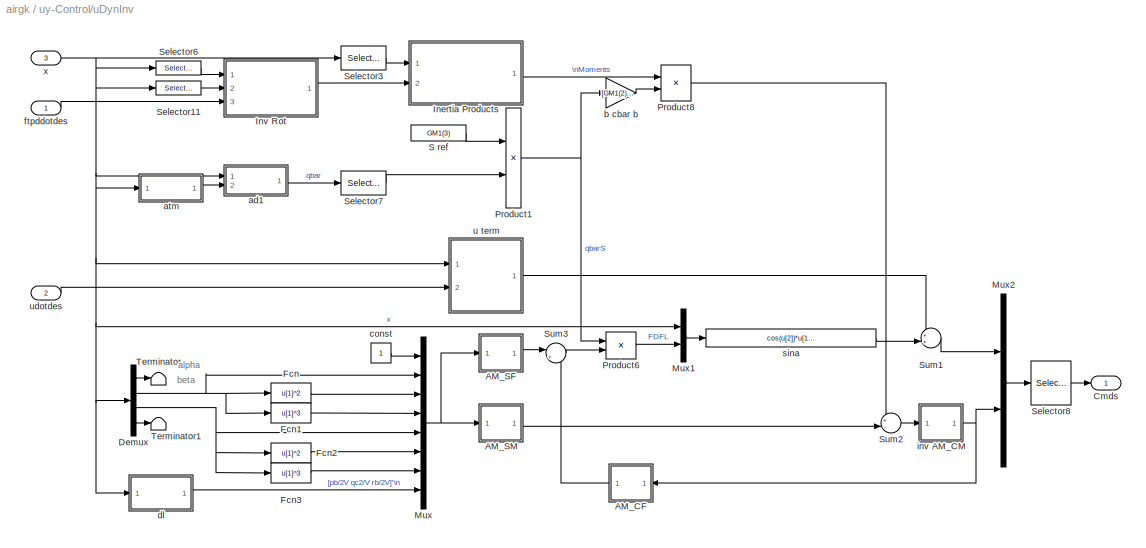
BLOCK [SubSystem] uy-Control/uDynInv
  MaskCallbackString = |||||
  MaskDescription = The first and second inputs contain the desired double derivatives \n  of the attitude (roll, pitch, and yaw) and the desired detivative of\n  u=V*cos(alpha)*cos(beta), which is the speed along the x body axis.\n  The third input contains the actual state of the aircraft.\n  The output contains the commanded deflections (elevator, \n  aileron and rudder) and thrust force along the body x axis.\n  ...<+59ch>
  MaskDisplay = disp('4 Cmds<path>')
  MaskEnableString = on,on,on,on,on,on
  MaskHelp = <p>\nThis block is an inverse nonlinear 6DOF aircraft model, with a very accurate built-in atmosphere model and constant aerodynamic derivatives.\nThe architecture of the block is largely based on the Aircraft block provided by the <A \nHREF=\"http://www.mathworks.com/matlabcentral/fileexchange/loadFile.do?objectId=252&objectType=file\">FDC toolbox</A> (Marc Rauw, 1993-2000).\n</p>\n<p>\nThe geome...<+2741ch>
  MaskIconFrame = on
  MaskIconOpaque = on
  MaskIconRotate = none
  MaskIconUnits = autoscale
  MaskInitialization = AM=zeros(6,19);\nAM(1,[1 2 9 11 12])=reshape(CD_wind,1,5);\nAM(3,[1 2 9 11 12])=reshape(CL_wind,1,5);\nAM(5,[1 2 9 11 12])=reshape(Cm_body,1,5);\nAM(4,[1 5 8 10 13 14])=reshape(Cl_body,1,6);\nAM(6,[1 5 8 10 13 14])=reshape(Cn_body,1,6);\n\nIx=GM1(4);Iy=GM1(5);Iz=GM1(6);\nJxy=GM1(7);Jxz=GM1(8);Jyz=GM1(9);\n\ndetI = Ix*Iy*Iz - 2*Jxy*Jxz*Jyz - Ix*Jyz^2 - Iy*Jxz^2 - Iz*Jxy^2;\nI1   = Iy*Iz - Jyz^2;I2 ...<+1124ch>
  MaskPromptString = Geometry, Mass : [cbar   b    S    Ix   Iy   Iz   Jxy  Jxz  Jyz  m]|Aerodynamic D-Force Derivatives : [CD0 CDa CDq CDde CDih]|Aerodynamic L-Force Derivatives : [CL0 CLa CLq CLde CLih]|Aerodynamic Y-Moment Derivatives : [Cm0 Cma Cmq Cmde Cmih]|Aerodynamic X-moment Derivatives : [Cl0 Clb Clp Clr Clda Cldr]|Aerodynamic Z-moment Derivatives : [Cn0 Cnb Cnp Cnr Cnda Cndr]
  MaskStyleString = edit,edit,edit,edit,edit,edit
  MaskTunableValueString = on,on,on,on,on,on
  MaskType = Inverse Nonlinear Aircraft Model
  MaskValueString = GM1|CD_wind|CL_wind|Cm_body|Cl_body|Cn_body
  MaskVariables = GM1=@1;CD_wind=@2;CL_wind=@3;Cm_body=@4;Cl_body=@5;Cn_body=@6;
  MaskVisibilityString = on,on,on,on,on,on
  Ports = [3, 1, 0, 0, 0]
  ShowPortLabels = on
BLOCK [SubSystem] uy-Control/uDynInv/ u term
  MaskDescription = Calculation mixed aerodynamic forces
  MaskDisplay = disp('Mixed\\nAerodynamic\\nForces')
  MaskEnableString = on
  MaskHelp = Calculation mixed aerodynamic forces
  MaskIconFrame = on
  MaskIconOpaque = on
  MaskIconRotate = none
  MaskIconUnits = autoscale
  MaskPromptString = Mass of the aircraft [kg]:
  MaskStyleString = edit
  MaskTunableValueString = on
  MaskType = Vabdot
  MaskValueString = GM1(10)
  MaskVariables = m=@1;
  MaskVisibilityString = on
  Ports = [2, 1, 0, 0, 0]
  ShowPortLabels = off
BLOCK [Mux] uy-Control/uDynInv/ u term/Mux1
  DisplayOption = bar
  Inputs = [12 3 1]
  Ports = [3, 1, 0, 0, 0]
BLOCK [Fcn] uy-Control/uDynInv/ u term/Term 1 with T=0
  Expr = m*u[12+4]+m*(9.80665*(6371020/(6371020+u[12]))^2)*sin(u[8])+m*(u[5]*u[12+3]-u[6]*u[12+2])
BLOCK [Outport] uy-Control/uDynInv/ u term/mix
  InitialOutput = []
  OutputWhenDisabled = held
  Port = 1
BLOCK [Inport] uy-Control/uDynInv/ u term/udd
  DataType = auto
  Interpolate = on
  Port = 2
  PortWidth = -1
  SampleTime = -1
  SignalType = auto
BLOCK [SubSystem] uy-Control/uDynInv/ u term/uvw
  MaskDescription = Calculation of body-axes velocities\nu, v, and w
  MaskDisplay = disp('Body-axes\\nvelocities')
  MaskHelp = eval('fdchelp uvw')
  MaskIconFrame = on
  MaskIconOpaque = on
  MaskIconRotate = none
  MaskIconUnits = autoscale
  MaskType = uvw
  Ports = [1, 1, 0, 0, 0]
  ShowPortLabels = off
BLOCK [Mux] uy-Control/uDynInv/ u term/uvw/Mux
  DisplayOption = none
  Inputs = 3
  Ports = [3, 1, 0, 0, 0]
BLOCK [Fcn] uy-Control/uDynInv/ u term/uvw/u
  Expr = u[1]*cos(u[2])*cos(u[3])
BLOCK [Fcn] uy-Control/uDynInv/ u term/uvw/v
  Expr = u[1]*sin(u[3])
BLOCK [Fcn] uy-Control/uDynInv/ u term/uvw/w
  Expr = u[1]*sin(u[2])*cos(u[3])
BLOCK [Inport] uy-Control/uDynInv/ u term/uvw/x
  DataType = auto
  Interpolate = on
  Port = 1
  PortWidth = -1
  SampleTime = -1
  SignalType = auto
BLOCK [Outport] uy-Control/uDynInv/ u term/uvw/ybvel
  InitialOutput = []
  OutputWhenDisabled = held
  Port = 1
BLOCK [Inport] uy-Control/uDynInv/ u term/x
  DataType = auto
  Interpolate = on
  Port = 1
  PortWidth = -1
  SampleTime = -1
  SignalType = auto
BLOCK [SubSystem] uy-Control/uDynInv/AM_CF
  MaskDisplay = disp('Matrix\\nGain')
  MaskEnableString = on
  MaskIconFrame = on
  MaskIconOpaque = on
  MaskIconRotate = none
  MaskIconUnits = autoscale
  MaskPromptString = Matrix
  MaskStyleString = edit
  MaskTunableValueString = on
  MaskType = State Space
  MaskValueString = AM([1 3],[11 13 14])
  MaskVariables = M=@1;
  MaskVisibilityString = on
  Ports = [1, 1, 0, 0, 0]
  ShowPortLabels = on
BLOCK [Inport] uy-Control/uDynInv/AM_CF/In1
  DataType = auto
  Interpolate = on
  Port = 1
  PortWidth = -1
  SampleTime = -1
  SignalType = auto
BLOCK [StateSpace] uy-Control/uDynInv/AM_CF/Matrix Gain
  A = []
  B = []
  C = []
  D = M
  X0 = 0
BLOCK [Outport] uy-Control/uDynInv/AM_CF/Out1
  InitialOutput = []
  OutputWhenDisabled = held
  Port = 1
BLOCK [SubSystem] uy-Control/uDynInv/AM_SF
  MaskDisplay = disp('Matrix\\nGain')
  MaskEnableString = on
  MaskIconFrame = on
  MaskIconOpaque = on
  MaskIconRotate = none
  MaskIconUnits = autoscale
  MaskPromptString = Matrix
  MaskStyleString = edit
  MaskTunableValueString = on
  MaskType = State Space
  MaskValueString = AM([1 3],1:10)
  MaskVariables = M=@1;
  MaskVisibilityString = on
  Ports = [1, 1, 0, 0, 0]
  ShowPortLabels = on
BLOCK [Inport] uy-Control/uDynInv/AM_SF/In1
  DataType = auto
  Interpolate = on
  Port = 1
  PortWidth = -1
  SampleTime = -1
  SignalType = auto
BLOCK [StateSpace] uy-Control/uDynInv/AM_SF/Matrix Gain
  A = []
  B = []
  C = []
  D = M
  X0 = 0
BLOCK [Outport] uy-Control/uDynInv/AM_SF/Out1
  InitialOutput = []
  OutputWhenDisabled = held
  Port = 1
BLOCK [SubSystem] uy-Control/uDynInv/AM_SM
  MaskDisplay = disp('Matrix\\nGain')
  MaskEnableString = on
  MaskIconFrame = on
  MaskIconOpaque = on
  MaskIconRotate = none
  MaskIconUnits = autoscale
  MaskPromptString = Matrix
  MaskStyleString = edit
  MaskTunableValueString = on
  MaskType = State Space
  MaskValueString = AM(4:6,1:10)
  MaskVariables = M=@1;
  MaskVisibilityString = on
  Ports = [1, 1, 0, 0, 0]
  ShowPortLabels = on
BLOCK [Inport] uy-Control/uDynInv/AM_SM/In1
  DataType = auto
  Interpolate = on
  Port = 1
  PortWidth = -1
  SampleTime = -1
  SignalType = auto
BLOCK [StateSpace] uy-Control/uDynInv/AM_SM/Matrix Gain
  A = []
  B = []
  C = []
  D = M
  X0 = 0
BLOCK [Outport] uy-Control/uDynInv/AM_SM/Out1
  InitialOutput = []
  OutputWhenDisabled = held
  Port = 1
BLOCK [Outport] uy-Control/uDynInv/Cmds
  InitialOutput = []
  OutputWhenDisabled = held
  Port = 1
BLOCK [Demux] uy-Control/uDynInv/Demux
  Outputs = [1 1 1 9]
  Ports = [1, 4, 0, 0, 0]
BLOCK [Fcn] uy-Control/uDynInv/Fcn
  Expr = u[1]^2
BLOCK [Fcn] uy-Control/uDynInv/Fcn1
  Expr = u[1]^3
BLOCK [Fcn] uy-Control/uDynInv/Fcn2
  Expr = u[1]^2
BLOCK [Fcn] uy-Control/uDynInv/Fcn3
  Expr = u[1]^3
BLOCK [SubSystem] uy-Control/uDynInv/Inertia Products
  MaskIconFrame = on
  MaskIconOpaque = on
  MaskIconRotate = none
  MaskIconUnits = autoscale
  Ports = [2, 1, 0, 0, 0]
  ShowPortLabels = on
BLOCK [SubSystem] uy-Control/uDynInv/Inertia Products/3x1mult
  MaskDescription = Input 1   : elements of matrix X (3 by 3)\n  Input 2   : elements of matrix Y (3 by 1)\n  Output   : elements of matrix X*Y (3 by 1)\n
  MaskDisplay = disp('Z=X*Y')
  MaskHelp = <p>\nElements of input and output matrices are taken columnwise.\n</p>
  MaskIconFrame = on
  MaskIconOpaque = on
  MaskIconRotate = none
  MaskIconUnits = autoscale
  MaskType = 3x1 Matrix Multiplication
  Ports = [2, 1, 0, 0, 0]
  ShowPortLabels = on
BLOCK [Reference] uy-Control/uDynInv/Inertia Products/3x1mult/Dot Product  REF=simulink3/Math/Dot Product
  Ports = [2, 1, 0, 0, 0]
  SourceBlock = simulink3/Math/Dot Product
  SourceType = Dot Product
BLOCK [Reference] uy-Control/uDynInv/Inertia Products/3x1mult/Dot Product1  REF=simulink3/Math/Dot Product
  Ports = [2, 1, 0, 0, 0]
  SourceBlock = simulink3/Math/Dot Product
  SourceType = Dot Product
BLOCK [Reference] uy-Control/uDynInv/Inertia Products/3x1mult/Dot Product2  REF=simulink3/Math/Dot Product
  Ports = [2, 1, 0, 0, 0]
  SourceBlock = simulink3/Math/Dot Product
  SourceType = Dot Product
BLOCK [Mux] uy-Control/uDynInv/Inertia Products/3x1mult/Mux
  DisplayOption = bar
  Inputs = 3
  Ports = [3, 1, 0, 0, 0]
BLOCK [Selector] uy-Control/uDynInv/Inertia Products/3x1mult/Selector
  Elements = [0 3 6]+1
  InputPortWidth = 9
BLOCK [Selector] uy-Control/uDynInv/Inertia Products/3x1mult/Selector1
  Elements = [0 3 6]+2
  InputPortWidth = 9
BLOCK [Selector] uy-Control/uDynInv/Inertia Products/3x1mult/Selector2
  Elements = [0 3 6]+3
  InputPortWidth = 9
BLOCK [Inport] uy-Control/uDynInv/Inertia Products/3x1mult/X
  DataType = auto
  Interpolate = on
  Port = 1
  PortWidth = -1
  SampleTime = -1
  SignalType = auto
BLOCK [Inport] uy-Control/uDynInv/Inertia Products/3x1mult/Y
  DataType = auto
  Interpolate = on
  Port = 2
  PortWidth = -1
  SampleTime = -1
  SignalType = auto
BLOCK [Outport] uy-Control/uDynInv/Inertia Products/3x1mult/Z
  InitialOutput = []
  OutputWhenDisabled = held
  Port = 1
BLOCK [SubSystem] uy-Control/uDynInv/Inertia Products/3x1mult1
  MaskDescription = Input 1   : elements of matrix X (3 by 3)\n  Input 2   : elements of matrix Y (3 by 1)\n  Output   : elements of matrix X*Y (3 by 1)\n
  MaskDisplay = disp('Z=X*Y')
  MaskHelp = <p>\nElements of input and output matrices are taken columnwise.\n</p>
  MaskIconFrame = on
  MaskIconOpaque = on
  MaskIconRotate = none
  MaskIconUnits = autoscale
  MaskType = 3x1 Matrix Multiplication
  Ports = [2, 1, 0, 0, 0]
  ShowPortLabels = on
BLOCK [Reference] uy-Control/uDynInv/Inertia Products/3x1mult1/Dot Product  REF=simulink3/Math/Dot Product
  Ports = [2, 1, 0, 0, 0]
  SourceBlock = simulink3/Math/Dot Product
  SourceType = Dot Product
BLOCK [Reference] uy-Control/uDynInv/Inertia Products/3x1mult1/Dot Product1  REF=simulink3/Math/Dot Product
  Ports = [2, 1, 0, 0, 0]
  SourceBlock = simulink3/Math/Dot Product
  SourceType = Dot Product
BLOCK [Reference] uy-Control/uDynInv/Inertia Products/3x1mult1/Dot Product2  REF=simulink3/Math/Dot Product
  Ports = [2, 1, 0, 0, 0]
  SourceBlock = simulink3/Math/Dot Product
  SourceType = Dot Product
BLOCK [Mux] uy-Control/uDynInv/Inertia Products/3x1mult1/Mux
  DisplayOption = bar
  Inputs = 3
  Ports = [3, 1, 0, 0, 0]
BLOCK [Selector] uy-Control/uDynInv/Inertia Products/3x1mult1/Selector
  Elements = [0 3 6]+1
  InputPortWidth = 9
BLOCK [Selector] uy-Control/uDynInv/Inertia Products/3x1mult1/Selector1
  Elements = [0 3 6]+2
  InputPortWidth = 9
BLOCK [Selector] uy-Control/uDynInv/Inertia Products/3x1mult1/Selector2
  Elements = [0 3 6]+3
  InputPortWidth = 9
BLOCK [Inport] uy-Control/uDynInv/Inertia Products/3x1mult1/X
  DataType = auto
  Interpolate = on
  Port = 1
  PortWidth = -1
  SampleTime = -1
  SignalType = auto
BLOCK [Inport] uy-Control/uDynInv/Inertia Products/3x1mult1/Y
  DataType = auto
  Interpolate = on
  Port = 2
  PortWidth = -1
  SampleTime = -1
  SignalType = auto
BLOCK [Outport] uy-Control/uDynInv/Inertia Products/3x1mult1/Z
  InitialOutput = []
  OutputWhenDisabled = held
  Port = 1
BLOCK [SubSystem] uy-Control/uDynInv/Inertia Products/3x1mult2
  MaskDescription = Input 1   : elements of matrix X (3 by 3)\n  Input 2   : elements of matrix Y (3 by 1)\n  Output   : elements of matrix X*Y (3 by 1)\n
  MaskDisplay = disp('Z=X*Y')
  MaskHelp = <p>\nElements of input and output matrices are taken columnwise.\n</p>
  MaskIconFrame = on
  MaskIconOpaque = on
  MaskIconRotate = none
  MaskIconUnits = autoscale
  MaskType = 3x1 Matrix Multiplication
  Ports = [2, 1, 0, 0, 0]
  ShowPortLabels = on
BLOCK [Reference] uy-Control/uDynInv/Inertia Products/3x1mult2/Dot Product  REF=simulink3/Math/Dot Product
  Ports = [2, 1, 0, 0, 0]
  SourceBlock = simulink3/Math/Dot Product
  SourceType = Dot Product
BLOCK [Reference] uy-Control/uDynInv/Inertia Products/3x1mult2/Dot Product1  REF=simulink3/Math/Dot Product
  Ports = [2, 1, 0, 0, 0]
  SourceBlock = simulink3/Math/Dot Product
  SourceType = Dot Product
BLOCK [Reference] uy-Control/uDynInv/Inertia Products/3x1mult2/Dot Product2  REF=simulink3/Math/Dot Product
  Ports = [2, 1, 0, 0, 0]
  SourceBlock = simulink3/Math/Dot Product
  SourceType = Dot Product
BLOCK [Mux] uy-Control/uDynInv/Inertia Products/3x1mult2/Mux
  DisplayOption = bar
  Inputs = 3
  Ports = [3, 1, 0, 0, 0]
BLOCK [Selector] uy-Control/uDynInv/Inertia Products/3x1mult2/Selector
  Elements = [0 3 6]+1
  InputPortWidth = 9
BLOCK [Selector] uy-Control/uDynInv/Inertia Products/3x1mult2/Selector1
  Elements = [0 3 6]+2
  InputPortWidth = 9
BLOCK [Selector] uy-Control/uDynInv/Inertia Products/3x1mult2/Selector2
  Elements = [0 3 6]+3
  InputPortWidth = 9
BLOCK [Inport] uy-Control/uDynInv/Inertia Products/3x1mult2/X
  DataType = auto
  Interpolate = on
  Port = 1
  PortWidth = -1
  SampleTime = -1
  SignalType = auto
BLOCK [Inport] uy-Control/uDynInv/Inertia Products/3x1mult2/Y
  DataType = auto
  Interpolate = on
  Port = 2
  PortWidth = -1
  SampleTime = -1
  SignalType = auto
BLOCK [Outport] uy-Control/uDynInv/Inertia Products/3x1mult2/Z
  InitialOutput = []
  OutputWhenDisabled = held
  Port = 1
BLOCK [Constant] uy-Control/uDynInv/Inertia Products/Inertia Matrix
  Value = [GM1(4) -GM1(7) -GM1(8) -GM1(7) GM1(5) -GM1(9) -GM1(8) -GM1(9) GM1(6)]
BLOCK [Sum] uy-Control/uDynInv/Inertia Products/Sum
  IconShape = round
  Inputs = |++
  Ports = [2, 1, 0, 0, 0]
  SaturateOnIntegerOverflow = on
BLOCK [Outport] uy-Control/uDynInv/Inertia Products/W*J*w+J*wt
  InitialOutput = []
  OutputWhenDisabled = held
  Port = 1
BLOCK [Inport] uy-Control/uDynInv/Inertia Products/w
  DataType = auto
  Interpolate = on
  Port = 1
  PortWidth = -1
  SampleTime = -1
  SignalType = auto
BLOCK [SubSystem] uy-Control/uDynInv/Inertia Products/w2W
  MaskDisplay = disp('S')\n
  MaskIconFrame = on
  MaskIconOpaque = on
  MaskIconRotate = none
  MaskIconUnits = autoscale
  Ports = [1, 1, 0, 0, 0]
  ShowPortLabels = on
BLOCK [Inport] uy-Control/uDynInv/Inertia Products/w2W/In1
  DataType = auto
  Interpolate = on
  Port = 1
  PortWidth = -1
  SampleTime = -1
  SignalType = auto
BLOCK [Outport] uy-Control/uDynInv/Inertia Products/w2W/Out1
  InitialOutput = []
  OutputWhenDisabled = held
  Port = 1
BLOCK [StateSpace] uy-Control/uDynInv/Inertia Products/w2W/State\nSpace
  A = []
  B = []
  C = []
  D = [0 0 0;0 0 1;0 -1 0;0 0 -1;0 0 0;1 0 0;0 1 0;-1 0 0;0 0 0]
  X0 = 0
BLOCK [Inport] uy-Control/uDynInv/Inertia Products/wd
  DataType = auto
  Interpolate = on
  Port = 2
  PortWidth = -1
  SampleTime = -1
  SignalType = auto
BLOCK [SubSystem] uy-Control/uDynInv/Inv Rot
  MaskIconFrame = on
  MaskIconOpaque = on
  MaskIconRotate = none
  MaskIconUnits = autoscale
  Ports = [3, 1, 0, 0, 0]
  ShowPortLabels = on
BLOCK [SubSystem] uy-Control/uDynInv/Inv Rot/M
  MaskDescription = Roll, Pitch and Yaw derivatives to Omega :\n  Input 1 : Roll, Pitch and Yaw angles (phi,theta,psi)\n  Input 2 : Roll, Pitch and Yaw derivatives\n  Output : Omega (p,q,r)\n\n
  MaskHelp = <p>\nRoll, Pitch and Yaw angles express the orientation\nof the Body frame with respect to the Earth frame.  \n</p>\n<p>\nTo use this block you should have the smxl library in your path.\n</p>\n
  MaskIconFrame = on
  MaskIconOpaque = on
  MaskIconRotate = none
  MaskIconUnits = autoscale
  MaskType = Simulink Matrix Library Block
  Ports = [2, 1, 0, 0, 0]
  ShowPortLabels = on
BLOCK [SubSystem] uy-Control/uDynInv/Inv Rot/M/3x1mult
  MaskDescription = Input 1   : elements of matrix X (3 by 3)\n  Input 2   : elements of matrix Y (3 by 1)\n  Output   : elements of matrix X*Y (3 by 1)\n
  MaskDisplay = disp('Z=X*Y')
  MaskHelp = <p>\nElements of input and output matrices are taken columnwise.\n</p>
  MaskIconFrame = on
  MaskIconOpaque = on
  MaskIconRotate = none
  MaskIconUnits = autoscale
  MaskType = 3x1 Matrix Multiplication
  Ports = [2, 1, 0, 0, 0]
  ShowPortLabels = on
BLOCK [Reference] uy-Control/uDynInv/Inv Rot/M/3x1mult/Dot Product  REF=simulink3/Math/Dot Product
  Ports = [2, 1, 0, 0, 0]
  SourceBlock = simulink3/Math/Dot Product
  SourceType = Dot Product
BLOCK [Reference] uy-Control/uDynInv/Inv Rot/M/3x1mult/Dot Product1  REF=simulink3/Math/Dot Product
  Ports = [2, 1, 0, 0, 0]
  SourceBlock = simulink3/Math/Dot Product
  SourceType = Dot Product
BLOCK [Reference] uy-Control/uDynInv/Inv Rot/M/3x1mult/Dot Product2  REF=simulink3/Math/Dot Product
  Ports = [2, 1, 0, 0, 0]
  SourceBlock = simulink3/Math/Dot Product
  SourceType = Dot Product
BLOCK [Mux] uy-Control/uDynInv/Inv Rot/M/3x1mult/Mux
  DisplayOption = bar
  Inputs = 3
  Ports = [3, 1, 0, 0, 0]
BLOCK [Selector] uy-Control/uDynInv/Inv Rot/M/3x1mult/Selector
  Elements = [0 3 6]+1
  InputPortWidth = 9
BLOCK [Selector] uy-Control/uDynInv/Inv Rot/M/3x1mult/Selector1
  Elements = [0 3 6]+2
  InputPortWidth = 9
BLOCK [Selector] uy-Control/uDynInv/Inv Rot/M/3x1mult/Selector2
  Elements = [0 3 6]+3
  InputPortWidth = 9
BLOCK [Inport] uy-Control/uDynInv/Inv Rot/M/3x1mult/X
  DataType = auto
  Interpolate = on
  Port = 1
  PortWidth = -1
  SampleTime = -1
  SignalType = auto
BLOCK [Inport] uy-Control/uDynInv/Inv Rot/M/3x1mult/Y
  DataType = auto
  Interpolate = on
  Port = 2
  PortWidth = -1
  SampleTime = -1
  SignalType = auto
BLOCK [Outport] uy-Control/uDynInv/Inv Rot/M/3x1mult/Z
  InitialOutput = []
  OutputWhenDisabled = held
  Port = 1
BLOCK [Constant] uy-Control/uDynInv/Inv Rot/M/Constant
  Value = 0
BLOCK [Constant] uy-Control/uDynInv/Inv Rot/M/Constant3
  Value = 1
BLOCK [Demux] uy-Control/uDynInv/Inv Rot/M/Demux
  Outputs = 2
  Ports = [1, 2, 0, 0, 0]
BLOCK [Demux] uy-Control/uDynInv/Inv Rot/M/Demux1
  Outputs = 2
  Ports = [1, 2, 0, 0, 0]
BLOCK [Gain] uy-Control/uDynInv/Inv Rot/M/Gain
  Gain = -1
  SaturateOnIntegerOverflow = on
BLOCK [Gain] uy-Control/uDynInv/Inv Rot/M/Gain1
  Gain = -1
  SaturateOnIntegerOverflow = on
BLOCK [Mux] uy-Control/uDynInv/Inv Rot/M/Mux
  DisplayOption = bar
  Inputs = 9
  Ports = [9, 1, 0, 0, 0]
BLOCK [Product] uy-Control/uDynInv/Inv Rot/M/Product
  Inputs = 2
  Ports = [2, 1, 0, 0, 0]
  SaturateOnIntegerOverflow = on
BLOCK [Product] uy-Control/uDynInv/Inv Rot/M/Product1
  Inputs = 2
  Ports = [2, 1, 0, 0, 0]
  SaturateOnIntegerOverflow = on
BLOCK [Selector] uy-Control/uDynInv/Inv Rot/M/Selector
  Elements = [1 2]
  InputPortWidth = 3
BLOCK [Trigonometry] uy-Control/uDynInv/Inv Rot/M/Trigonometric\nFunction1
  Operator = cos
  OutputSignalType = auto
  Ports = [1, 1, 0, 0, 0]
BLOCK [Trigonometry] uy-Control/uDynInv/Inv Rot/M/Trigonometric\nFunction2
  Operator = sin
  OutputSignalType = auto
  Ports = [1, 1, 0, 0, 0]
BLOCK [Inport] uy-Control/uDynInv/Inv Rot/M/ftp
  DataType = auto
  Interpolate = on
  Port = 1
  PortWidth = -1
  SampleTime = -1
  SignalType = auto
BLOCK [Inport] uy-Control/uDynInv/Inv Rot/M/ftpdot
  DataType = auto
  Interpolate = on
  Port = 2
  PortWidth = -1
  SampleTime = -1
  SignalType = auto
BLOCK [Outport] uy-Control/uDynInv/Inv Rot/M/pqr
  InitialOutput = []
  OutputWhenDisabled = held
  Port = 1
BLOCK [Sum] uy-Control/uDynInv/Inv Rot/Sum1
  IconShape = round
  Inputs = +++
  Ports = [3, 1, 0, 0, 0]
  SaturateOnIntegerOverflow = on
BLOCK [Inport] uy-Control/uDynInv/Inv Rot/add
  DataType = auto
  Interpolate = on
  Port = 3
  PortWidth = -1
  SampleTime = -1
  SignalType = auto
BLOCK [SubSystem] uy-Control/uDynInv/Inv Rot/dM//df
  Ports = [2, 1, 0, 0, 0]
  ShowPortLabels = on
BLOCK [SubSystem] uy-Control/uDynInv/Inv Rot/dM//df/3x1mult
  MaskDescription = Input 1   : elements of matrix X (3 by 3)\n  Input 2   : elements of matrix Y (3 by 1)\n  Output   : elements of matrix X*Y (3 by 1)\n
  MaskDisplay = disp('Z=X*Y')
  MaskHelp = <p>\nElements of input and output matrices are taken columnwise.\n</p>
  MaskIconFrame = on
  MaskIconOpaque = on
  MaskIconRotate = none
  MaskIconUnits = autoscale
  MaskType = 3x1 Matrix Multiplication
  Ports = [2, 1, 0, 0, 0]
  ShowPortLabels = on
BLOCK [Reference] uy-Control/uDynInv/Inv Rot/dM//df/3x1mult/Dot Product  REF=simulink3/Math/Dot Product
  Ports = [2, 1, 0, 0, 0]
  SourceBlock = simulink3/Math/Dot Product
  SourceType = Dot Product
BLOCK [Reference] uy-Control/uDynInv/Inv Rot/dM//df/3x1mult/Dot Product1  REF=simulink3/Math/Dot Product
  Ports = [2, 1, 0, 0, 0]
  SourceBlock = simulink3/Math/Dot Product
  SourceType = Dot Product
BLOCK [Reference] uy-Control/uDynInv/Inv Rot/dM//df/3x1mult/Dot Product2  REF=simulink3/Math/Dot Product
  Ports = [2, 1, 0, 0, 0]
  SourceBlock = simulink3/Math/Dot Product
  SourceType = Dot Product
BLOCK [Mux] uy-Control/uDynInv/Inv Rot/dM//df/3x1mult/Mux
  DisplayOption = bar
  Inputs = 3
  Ports = [3, 1, 0, 0, 0]
BLOCK [Selector] uy-Control/uDynInv/Inv Rot/dM//df/3x1mult/Selector
  Elements = [0 3 6]+1
  InputPortWidth = 9
BLOCK [Selector] uy-Control/uDynInv/Inv Rot/dM//df/3x1mult/Selector1
  Elements = [0 3 6]+2
  InputPortWidth = 9
BLOCK [Selector] uy-Control/uDynInv/Inv Rot/dM//df/3x1mult/Selector2
  Elements = [0 3 6]+3
  InputPortWidth = 9
BLOCK [Inport] uy-Control/uDynInv/Inv Rot/dM//df/3x1mult/X
  DataType = auto
  Interpolate = on
  Port = 1
  PortWidth = -1
  SampleTime = -1
  SignalType = auto
BLOCK [Inport] uy-Control/uDynInv/Inv Rot/dM//df/3x1mult/Y
  DataType = auto
  Interpolate = on
  Port = 2
  PortWidth = -1
  SampleTime = -1
  SignalType = auto
BLOCK [Outport] uy-Control/uDynInv/Inv Rot/dM//df/3x1mult/Z
  InitialOutput = []
  OutputWhenDisabled = held
  Port = 1
BLOCK [Constant] uy-Control/uDynInv/Inv Rot/dM//df/Constant
  Value = 0
BLOCK [Demux] uy-Control/uDynInv/Inv Rot/dM//df/Demux
  Outputs = 2
  Ports = [1, 2, 0, 0, 0]
BLOCK [Demux] uy-Control/uDynInv/Inv Rot/dM//df/Demux1
  Outputs = 2
  Ports = [1, 2, 0, 0, 0]
BLOCK [Gain] uy-Control/uDynInv/Inv Rot/dM//df/Gain1
  Gain = -1
  SaturateOnIntegerOverflow = on
BLOCK [Gain] uy-Control/uDynInv/Inv Rot/dM//df/Gain2
  Gain = -1
  SaturateOnIntegerOverflow = on
BLOCK [Mux] uy-Control/uDynInv/Inv Rot/dM//df/Mux
  DisplayOption = bar
  Inputs = 9
  Ports = [9, 1, 0, 0, 0]
BLOCK [Product] uy-Control/uDynInv/Inv Rot/dM//df/Product
  Inputs = 2
  Ports = [2, 1, 0, 0, 0]
  SaturateOnIntegerOverflow = on
BLOCK [Product] uy-Control/uDynInv/Inv Rot/dM//df/Product2
  Inputs = 2
  Ports = [2, 1, 0, 0, 0]
  SaturateOnIntegerOverflow = on
BLOCK [Product] uy-Control/uDynInv/Inv Rot/dM//df/Product3
  Inputs = 2
  Ports = [2, 1, 0, 0, 0]
  SaturateOnIntegerOverflow = on
BLOCK [Selector] uy-Control/uDynInv/Inv Rot/dM//df/Selector
  Elements = [1 2]
  InputPortWidth = 3
BLOCK [Selector] uy-Control/uDynInv/Inv Rot/dM//df/Selector1
  Elements = 1
  InputPortWidth = 3
BLOCK [Terminator] uy-Control/uDynInv/Inv Rot/dM//df/Terminator
BLOCK [Outport] uy-Control/uDynInv/Inv Rot/dM//df/Tf
  InitialOutput = []
  OutputWhenDisabled = held
  Port = 1
BLOCK [Trigonometry] uy-Control/uDynInv/Inv Rot/dM//df/Trigonometric\nFunction1
  Operator = cos
  OutputSignalType = auto
  Ports = [1, 1, 0, 0, 0]
BLOCK [Trigonometry] uy-Control/uDynInv/Inv Rot/dM//df/Trigonometric\nFunction2
  Operator = sin
  OutputSignalType = auto
  Ports = [1, 1, 0, 0, 0]
BLOCK [Inport] uy-Control/uDynInv/Inv Rot/dM//df/ftp
  DataType = auto
  Interpolate = on
  Port = 1
  PortWidth = -1
  SampleTime = -1
  SignalType = auto
BLOCK [Inport] uy-Control/uDynInv/Inv Rot/dM//df/ftpd
  DataType = auto
  Interpolate = on
  Port = 2
  PortWidth = -1
  SampleTime = -1
  SignalType = auto
BLOCK [SubSystem] uy-Control/uDynInv/Inv Rot/dM//dt
  Ports = [2, 1, 0, 0, 0]
  ShowPortLabels = on
BLOCK [SubSystem] uy-Control/uDynInv/Inv Rot/dM//dt/3x1mult
  MaskDescription = Input 1   : elements of matrix X (3 by 3)\n  Input 2   : elements of matrix Y (3 by 1)\n  Output   : elements of matrix X*Y (3 by 1)\n
  MaskDisplay = disp('Z=X*Y')
  MaskHelp = <p>\nElements of input and output matrices are taken columnwise.\n</p>
  MaskIconFrame = on
  MaskIconOpaque = on
  MaskIconRotate = none
  MaskIconUnits = autoscale
  MaskType = 3x1 Matrix Multiplication
  Ports = [2, 1, 0, 0, 0]
  ShowPortLabels = on
BLOCK [Reference] uy-Control/uDynInv/Inv Rot/dM//dt/3x1mult/Dot Product  REF=simulink3/Math/Dot Product
  Ports = [2, 1, 0, 0, 0]
  SourceBlock = simulink3/Math/Dot Product
  SourceType = Dot Product
BLOCK [Reference] uy-Control/uDynInv/Inv Rot/dM//dt/3x1mult/Dot Product1  REF=simulink3/Math/Dot Product
  Ports = [2, 1, 0, 0, 0]
  SourceBlock = simulink3/Math/Dot Product
  SourceType = Dot Product
BLOCK [Reference] uy-Control/uDynInv/Inv Rot/dM//dt/3x1mult/Dot Product2  REF=simulink3/Math/Dot Product
  Ports = [2, 1, 0, 0, 0]
  SourceBlock = simulink3/Math/Dot Product
  SourceType = Dot Product
BLOCK [Mux] uy-Control/uDynInv/Inv Rot/dM//dt/3x1mult/Mux
  DisplayOption = bar
  Inputs = 3
  Ports = [3, 1, 0, 0, 0]
BLOCK [Selector] uy-Control/uDynInv/Inv Rot/dM//dt/3x1mult/Selector
  Elements = [0 3 6]+1
  InputPortWidth = 9
BLOCK [Selector] uy-Control/uDynInv/Inv Rot/dM//dt/3x1mult/Selector1
  Elements = [0 3 6]+2
  InputPortWidth = 9
BLOCK [Selector] uy-Control/uDynInv/Inv Rot/dM//dt/3x1mult/Selector2
  Elements = [0 3 6]+3
  InputPortWidth = 9
BLOCK [Inport] uy-Control/uDynInv/Inv Rot/dM//dt/3x1mult/X
  DataType = auto
  Interpolate = on
  Port = 1
  PortWidth = -1
  SampleTime = -1
  SignalType = auto
BLOCK [Inport] uy-Control/uDynInv/Inv Rot/dM//dt/3x1mult/Y
  DataType = auto
  Interpolate = on
  Port = 2
  PortWidth = -1
  SampleTime = -1
  SignalType = auto
BLOCK [Outport] uy-Control/uDynInv/Inv Rot/dM//dt/3x1mult/Z
  InitialOutput = []
  OutputWhenDisabled = held
  Port = 1
BLOCK [Constant] uy-Control/uDynInv/Inv Rot/dM//dt/Constant
  Value = 0
BLOCK [Demux] uy-Control/uDynInv/Inv Rot/dM//dt/Demux
  Outputs = 2
  Ports = [1, 2, 0, 0, 0]
BLOCK [Demux] uy-Control/uDynInv/Inv Rot/dM//dt/Demux1
  Outputs = 2
  Ports = [1, 2, 0, 0, 0]
BLOCK [Gain] uy-Control/uDynInv/Inv Rot/dM//dt/Gain1
  Gain = -1
  SaturateOnIntegerOverflow = on
BLOCK [Mux] uy-Control/uDynInv/Inv Rot/dM//dt/Mux
  DisplayOption = bar
  Inputs = 9
  Ports = [9, 1, 0, 0, 0]
BLOCK [Product] uy-Control/uDynInv/Inv Rot/dM//dt/Product
  Inputs = 2
  Ports = [2, 1, 0, 0, 0]
  SaturateOnIntegerOverflow = on
BLOCK [Product] uy-Control/uDynInv/Inv Rot/dM//dt/Product1
  Inputs = 2
  Ports = [2, 1, 0, 0, 0]
  SaturateOnIntegerOverflow = on
BLOCK [Product] uy-Control/uDynInv/Inv Rot/dM//dt/Product2
  Inputs = 2
  Ports = [2, 1, 0, 0, 0]
  SaturateOnIntegerOverflow = on
BLOCK [Selector] uy-Control/uDynInv/Inv Rot/dM//dt/Selector
  Elements = [1 2]
  InputPortWidth = 3
BLOCK [Selector] uy-Control/uDynInv/Inv Rot/dM//dt/Selector1
  Elements = 2
  InputPortWidth = 3
BLOCK [Trigonometry] uy-Control/uDynInv/Inv Rot/dM//dt/Trigonometric\nFunction1
  Operator = cos
  OutputSignalType = auto
  Ports = [1, 1, 0, 0, 0]
BLOCK [Trigonometry] uy-Control/uDynInv/Inv Rot/dM//dt/Trigonometric\nFunction2
  Operator = sin
  OutputSignalType = auto
  Ports = [1, 1, 0, 0, 0]
BLOCK [Outport] uy-Control/uDynInv/Inv Rot/dM//dt/Tt
  InitialOutput = []
  OutputWhenDisabled = held
  Port = 1
BLOCK [Inport] uy-Control/uDynInv/Inv Rot/dM//dt/ftp
  DataType = auto
  Interpolate = on
  Port = 1
  PortWidth = -1
  SampleTime = -1
  SignalType = auto
BLOCK [Inport] uy-Control/uDynInv/Inv Rot/dM//dt/ftpd
  DataType = auto
  Interpolate = on
  Port = 2
  PortWidth = -1
  SampleTime = -1
  SignalType = auto
BLOCK [Inport] uy-Control/uDynInv/Inv Rot/ftp
  DataType = auto
  Interpolate = on
  Port = 2
  PortWidth = -1
  SampleTime = -1
  SignalType = auto
BLOCK [SubSystem] uy-Control/uDynInv/Inv Rot/pqr2ftpdot
  MaskDescription = Omega to Roll, Pitch and Yaw derivatives :\n  Input 1 : Roll, Pitch and Yaw angles (phi,theta,psi)\n  Input 2 : Omega (p,q,r)\n  Output : Roll, Pitch and Yaw derivatives\n
  MaskHelp = <p>\nRoll, Pitch and Yaw angles express the orientation\nof the Body frame with respect to the Earth frame.  \n</p>\n<p>\nTo use this block you should have the smxl library in your path.\n</p>\n
  MaskIconFrame = on
  MaskIconOpaque = on
  MaskIconRotate = none
  MaskIconUnits = autoscale
  MaskType = Simulink Matrix Library Block
  Ports = [2, 1, 0, 0, 0]
  ShowPortLabels = on
BLOCK [SubSystem] uy-Control/uDynInv/Inv Rot/pqr2ftpdot/3x1mult
  MaskDescription = Input 1   : elements of matrix X (3 by 3)\n  Input 2   : elements of matrix Y (3 by 1)\n  Output   : elements of matrix X*Y (3 by 1)\n
  MaskDisplay = disp('Z=X*Y')
  MaskHelp = <p>\nElements of input and output matrices are taken columnwise.\n</p>
  MaskIconFrame = on
  MaskIconOpaque = on
  MaskIconRotate = none
  MaskIconUnits = autoscale
  MaskType = 3x1 Matrix Multiplication
  Ports = [2, 1, 0, 0, 0]
  ShowPortLabels = on
BLOCK [Reference] uy-Control/uDynInv/Inv Rot/pqr2ftpdot/3x1mult/Dot Product  REF=simulink3/Math/Dot Product
  Ports = [2, 1, 0, 0, 0]
  SourceBlock = simulink3/Math/Dot Product
  SourceType = Dot Product
BLOCK [Reference] uy-Control/uDynInv/Inv Rot/pqr2ftpdot/3x1mult/Dot Product1  REF=simulink3/Math/Dot Product
  Ports = [2, 1, 0, 0, 0]
  SourceBlock = simulink3/Math/Dot Product
  SourceType = Dot Product
BLOCK [Reference] uy-Control/uDynInv/Inv Rot/pqr2ftpdot/3x1mult/Dot Product2  REF=simulink3/Math/Dot Product
  Ports = [2, 1, 0, 0, 0]
  SourceBlock = simulink3/Math/Dot Product
  SourceType = Dot Product
BLOCK [Mux] uy-Control/uDynInv/Inv Rot/pqr2ftpdot/3x1mult/Mux
  DisplayOption = bar
  Inputs = 3
  Ports = [3, 1, 0, 0, 0]
BLOCK [Selector] uy-Control/uDynInv/Inv Rot/pqr2ftpdot/3x1mult/Selector
  Elements = [0 3 6]+1
  InputPortWidth = 9
BLOCK [Selector] uy-Control/uDynInv/Inv Rot/pqr2ftpdot/3x1mult/Selector1
  Elements = [0 3 6]+2
  InputPortWidth = 9
BLOCK [Selector] uy-Control/uDynInv/Inv Rot/pqr2ftpdot/3x1mult/Selector2
  Elements = [0 3 6]+3
  InputPortWidth = 9
BLOCK [Inport] uy-Control/uDynInv/Inv Rot/pqr2ftpdot/3x1mult/X
  DataType = auto
  Interpolate = on
  Port = 1
  PortWidth = -1
  SampleTime = -1
  SignalType = auto
BLOCK [Inport] uy-Control/uDynInv/Inv Rot/pqr2ftpdot/3x1mult/Y
  DataType = auto
  Interpolate = on
  Port = 2
  PortWidth = -1
  SampleTime = -1
  SignalType = auto
BLOCK [Outport] uy-Control/uDynInv/Inv Rot/pqr2ftpdot/3x1mult/Z
  InitialOutput = []
  OutputWhenDisabled = held
  Port = 1
BLOCK [Constant] uy-Control/uDynInv/Inv Rot/pqr2ftpdot/Constant
  Value = 0
BLOCK [Constant] uy-Control/uDynInv/Inv Rot/pqr2ftpdot/Constant3
  Value = 1
BLOCK [Demux] uy-Control/uDynInv/Inv Rot/pqr2ftpdot/Demux
  Outputs = 2
  Ports = [1, 2, 0, 0, 0]
BLOCK [Demux] uy-Control/uDynInv/Inv Rot/pqr2ftpdot/Demux1
  Outputs = 2
  Ports = [1, 2, 0, 0, 0]
BLOCK [Demux] uy-Control/uDynInv/Inv Rot/pqr2ftpdot/Demux2
  Outputs = 2
  Ports = [1, 2, 0, 0, 0]
BLOCK [Gain] uy-Control/uDynInv/Inv Rot/pqr2ftpdot/Gain
  Gain = -1
  SaturateOnIntegerOverflow = on
BLOCK [Mux] uy-Control/uDynInv/Inv Rot/pqr2ftpdot/Mux
  DisplayOption = bar
  Inputs = 9
  Ports = [9, 1, 0, 0, 0]
BLOCK [Product] uy-Control/uDynInv/Inv Rot/pqr2ftpdot/Product2
  Inputs = */
  Ports = [2, 1, 0, 0, 0]
  SaturateOnIntegerOverflow = on
BLOCK [Product] uy-Control/uDynInv/Inv Rot/pqr2ftpdot/Product3
  Inputs = */
  Ports = [2, 1, 0, 0, 0]
  SaturateOnIntegerOverflow = on
BLOCK [Product] uy-Control/uDynInv/Inv Rot/pqr2ftpdot/Product4
  Inputs = 2
  Ports = [2, 1, 0, 0, 0]
  SaturateOnIntegerOverflow = on
BLOCK [Product] uy-Control/uDynInv/Inv Rot/pqr2ftpdot/Product5
  Inputs = 2
  Ports = [2, 1, 0, 0, 0]
  SaturateOnIntegerOverflow = on
BLOCK [Selector] uy-Control/uDynInv/Inv Rot/pqr2ftpdot/Selector
  Elements = [1 2]
  InputPortWidth = 3
BLOCK [Terminator] uy-Control/uDynInv/Inv Rot/pqr2ftpdot/Terminator
BLOCK [Terminator] uy-Control/uDynInv/Inv Rot/pqr2ftpdot/Terminator1
BLOCK [Trigonometry] uy-Control/uDynInv/Inv Rot/pqr2ftpdot/Trigonometric\nFunction1
  Operator = cos
  OutputSignalType = auto
  Ports = [1, 1, 0, 0, 0]
BLOCK [Trigonometry] uy-Control/uDynInv/Inv Rot/pqr2ftpdot/Trigonometric\nFunction2
  Operator = sin
  OutputSignalType = auto
  Ports = [1, 1, 0, 0, 0]
BLOCK [Trigonometry] uy-Control/uDynInv/Inv Rot/pqr2ftpdot/Trigonometric\nFunction3
  Operator = tan
  OutputSignalType = auto
  Ports = [1, 1, 0, 0, 0]
BLOCK [Inport] uy-Control/uDynInv/Inv Rot/pqr2ftpdot/ftp
  DataType = auto
  Interpolate = on
  Port = 1
  PortWidth = -1
  SampleTime = -1
  SignalType = auto
BLOCK [Outport] uy-Control/uDynInv/Inv Rot/pqr2ftpdot/ftpdot
  InitialOutput = []
  OutputWhenDisabled = held
  Port = 1
BLOCK [Inport] uy-Control/uDynInv/Inv Rot/pqr2ftpdot/pqr
  DataType = auto
  Interpolate = on
  Port = 2
  PortWidth = -1
  SampleTime = -1
  SignalType = auto
BLOCK [Inport] uy-Control/uDynInv/Inv Rot/w
  DataType = auto
  Interpolate = on
  Port = 1
  PortWidth = -1
  SampleTime = -1
  SignalType = auto
BLOCK [Outport] uy-Control/uDynInv/Inv Rot/wd
  InitialOutput = []
  OutputWhenDisabled = held
  Port = 1
BLOCK [Mux] uy-Control/uDynInv/Mux
  DisplayOption = none
  Inputs = [1 1 1 1 1 1 1 3]
  Ports = [8, 1, 0, 0, 0]
BLOCK [Mux] uy-Control/uDynInv/Mux1
  DisplayOption = none
  Inputs = [12 2]
  Ports = [2, 1, 0, 0, 0]
BLOCK [Mux] uy-Control/uDynInv/Mux2
  DisplayOption = bar
  Inputs = [1 3]
  Ports = [2, 1, 0, 0, 0]
BLOCK [Product] uy-Control/uDynInv/Product1
  Inputs = **
  Ports = [2, 1, 0, 0, 0]
  SaturateOnIntegerOverflow = on
BLOCK [Product] uy-Control/uDynInv/Product6
  Inputs = **
  Ports = [2, 1, 0, 0, 0]
  SaturateOnIntegerOverflow = on
BLOCK [Product] uy-Control/uDynInv/Product8
  Inputs = */
  Ports = [2, 1, 0, 0, 0]
  SaturateOnIntegerOverflow = on
BLOCK [Constant] uy-Control/uDynInv/S ref
  Value = GM1(3)
BLOCK [Selector] uy-Control/uDynInv/Selector11
  Elements = [9 8 7]
  InputPortWidth = 12
BLOCK [Selector] uy-Control/uDynInv/Selector3
  Elements = [4 5 6]
  InputPortWidth = 12
BLOCK [Selector] uy-Control/uDynInv/Selector6
  Elements = [4 5 6]
  InputPortWidth = 12
BLOCK [Selector] uy-Control/uDynInv/Selector7
  Elements = 3
  InputPortWidth = 3
BLOCK [Selector] uy-Control/uDynInv/Selector8
  Elements = [2:4 1]
  InputPortWidth = 4
BLOCK [Sum] uy-Control/uDynInv/Sum1
  IconShape = round
  Inputs = ++|
  Ports = [2, 1, 0, 0, 0]
  SaturateOnIntegerOverflow = on
BLOCK [Sum] uy-Control/uDynInv/Sum2
  IconShape = round
  Inputs = +-|
  Ports = [2, 1, 0, 0, 0]
  SaturateOnIntegerOverflow = on
BLOCK [Sum] uy-Control/uDynInv/Sum3
  IconShape = round
  Inputs = |++
  Ports = [2, 1, 0, 0, 0]
  SaturateOnIntegerOverflow = on
BLOCK [Terminator] uy-Control/uDynInv/Terminator
BLOCK [Terminator] uy-Control/uDynInv/Terminator1
BLOCK [SubSystem] uy-Control/uDynInv/ad1
  MaskDescription = Basic airdata variables
  MaskDisplay = disp('Airdata1')
  MaskHelp = eval('fdchelp airdata1')
  MaskIconFrame = on
  MaskIconOpaque = on
  MaskIconRotate = none
  MaskIconUnits = autoscale
  MaskType = Airdata1
  Ports = [2, 1, 0, 0, 0]
  ShowPortLabels = off
BLOCK [SubSystem] uy-Control/uDynInv/ad1/0
  MaskDisplay = disp('AIRDATA1\\nM.O. Rauw, October 1997')
  MaskIconFrame = on
  MaskIconOpaque = on
  MaskIconRotate = none
  MaskIconUnits = autoscale
  OpenFcn = fdchelp airdata1
  Ports = [0, 0, 0, 0, 0]
  ShowPortLabels = off
BLOCK [Fcn] uy-Control/uDynInv/ad1/M
  Expr = u[2]/u[1]
BLOCK [Mux] uy-Control/uDynInv/ad1/Mux
  DisplayOption = none
  Inputs = [1 12]
  Ports = [2, 1, 0, 0, 0]
BLOCK [Mux] uy-Control/uDynInv/ad1/Mux1
  DisplayOption = none
  Inputs = [12 5]
  Ports = [2, 1, 0, 0, 0]
BLOCK [Mux] uy-Control/uDynInv/ad1/Mux2
  DisplayOption = none
  Inputs = 3
  Ports = [3, 1, 0, 0, 0]
BLOCK [Fcn] uy-Control/uDynInv/ad1/a
  Expr = sqrt(401.8743*u[3])
BLOCK [Fcn] uy-Control/uDynInv/ad1/qdyn
  Expr = 0.5*u[13]*u[1]^2
BLOCK [Inport] uy-Control/uDynInv/ad1/x
  DataType = auto
  Interpolate = on
  Port = 1
  PortWidth = -1
  SampleTime = -1
  SignalType = auto
BLOCK [Outport] uy-Control/uDynInv/ad1/yad1
  InitialOutput = []
  OutputWhenDisabled = held
  Port = 1
BLOCK [Inport] uy-Control/uDynInv/ad1/yatm
  DataType = auto
  Interpolate = on
  Port = 2
  PortWidth = -1
  SampleTime = -1
  SignalType = auto
BLOCK [SubSystem] uy-Control/uDynInv/atm
  MaskDescription = Atmosphere variables
  MaskDisplay = disp('Atmosph')
  MaskHelp = eval('fdchelp atmosph')
  MaskIconFrame = on
  MaskIconOpaque = on
  MaskIconRotate = none
  MaskIconUnits = autoscale
  MaskType = Atmosph
  Ports = [1, 1, 0, 0, 0]
  ShowPortLabels = off
BLOCK [SubSystem] uy-Control/uDynInv/atm/0
  MaskDisplay = disp('ATMOSPH\\nM.O. Rauw, October 1997')
  MaskIconFrame = on
  MaskIconOpaque = on
  MaskIconRotate = none
  MaskIconUnits = autoscale
  OpenFcn = fdchelp atmosph
  Ports = [0, 0, 0, 0, 0]
  ShowPortLabels = off
BLOCK [Mux] uy-Control/uDynInv/atm/Mux
  DisplayOption = none
  Inputs = 2
  Ports = [2, 1, 0, 0, 0]
BLOCK [Mux] uy-Control/uDynInv/atm/Mux1
  DisplayOption = none
  Inputs = [2 1]
  Ports = [2, 1, 0, 0, 0]
BLOCK [Mux] uy-Control/uDynInv/atm/Mux2
  DisplayOption = none
  Inputs = 5
  Ports = [5, 1, 0, 0, 0]
BLOCK [Fcn] uy-Control/uDynInv/atm/T
  Expr = 288.15 - 0.0065*u[12]
BLOCK [Fcn] uy-Control/uDynInv/atm/g
  Expr = 9.80665*(6371020/(6371020+u[12]))^2
BLOCK [Fcn] uy-Control/uDynInv/atm/mu
  Expr = (1.458*10^(-6)*u[2]^1.5)/(u[2]+110.4)
BLOCK [Fcn] uy-Control/uDynInv/atm/ps
  Expr = 101325*(u[2]/288.15)^(u[1]/1.86584)
BLOCK [Fcn] uy-Control/uDynInv/atm/rho
  Expr = u[3]/(287.053*u[2])
BLOCK [Inport] uy-Control/uDynInv/atm/x
  DataType = auto
  Interpolate = on
  Port = 1
  PortWidth = -1
  SampleTime = -1
  SignalType = auto
BLOCK [Outport] uy-Control/uDynInv/atm/yatm
  InitialOutput = []
  OutputWhenDisabled = held
  Port = 1
BLOCK [Gain] uy-Control/uDynInv/b cbar b
  Gain = [GM1(2);GM1(1);GM1(2)]
  SaturateOnIntegerOverflow = on
BLOCK [Constant] uy-Control/uDynInv/const
  Value = 1
BLOCK [SubSystem] uy-Control/uDynInv/dl
  MaskCallbackString = |
  MaskDescription = Dimensionless rotational velocities.
  MaskDisplay = disp('Dimless')
  MaskEnableString = on,on
  MaskHelp = eval('fdchelp dimless')
  MaskIconFrame = on
  MaskIconOpaque = on
  MaskIconRotate = none
  MaskIconUnits = autoscale
  MaskPromptString = Mean aerodynamic chord [m]:|Wing span [m]:
  MaskStyleString = edit,edit
  MaskTunableValueString = on,on
  MaskType = Dimless
  MaskValueString = GM1(1)|GM1(2)
  MaskVariables = cbar=@1;b=@2;
  MaskVisibilityString = on,on
  Ports = [1, 1, 0, 0, 0]
  ShowPortLabels = off
BLOCK [SubSystem] uy-Control/uDynInv/dl/0
  MaskDisplay = disp('DIMLESS\\nM.O. Rauw, October 1997')
  MaskIconFrame = on
  MaskIconOpaque = on
  MaskIconRotate = none
  MaskIconUnits = autoscale
  OpenFcn = fdchelp dimless
  Ports = [0, 0, 0, 0, 0]
  ShowPortLabels = off
BLOCK [Mux] uy-Control/uDynInv/dl/Mux
  DisplayOption = none
  Inputs = 3
  Ports = [3, 1, 0, 0, 0]
BLOCK [Fcn] uy-Control/uDynInv/dl/pb//2V
  Expr = 0.5 * u[4] * b / u[1]
BLOCK [Fcn] uy-Control/uDynInv/dl/qc//2V
  Expr = 0.5* u[5] * cbar / u[1]
BLOCK [Fcn] uy-Control/uDynInv/dl/rb//2V
  Expr = 0.5 * u[6] * b / u[1]
BLOCK [Inport] uy-Control/uDynInv/dl/x
  DataType = auto
  Interpolate = on
  Port = 1
  PortWidth = -1
  SampleTime = -1
  SignalType = auto
BLOCK [Outport] uy-Control/uDynInv/dl/ydl
  InitialOutput = []
  OutputWhenDisabled = held
  Port = 1
BLOCK [Inport] uy-Control/uDynInv/ftpddotdes
  DataType = auto
  Interpolate = on
  Port = 1
  PortWidth = -1
  SampleTime = -1
  SignalType = auto
BLOCK [SubSystem] uy-Control/uDynInv/inv AM_CM
  MaskDisplay = disp('Matrix\\nGain')
  MaskEnableString = on
  MaskIconFrame = on
  MaskIconOpaque = on
  MaskIconRotate = none
  MaskIconUnits = autoscale
  MaskPromptString = Matrix
  MaskStyleString = edit
  MaskTunableValueString = on
  MaskType = State Space
  MaskValueString = inv(AM(4:6,[11 13 14]))
  MaskVariables = M=@1;
  MaskVisibilityString = on
  Ports = [1, 1, 0, 0, 0]
  ShowPortLabels = on
BLOCK [Inport] uy-Control/uDynInv/inv AM_CM/In1
  DataType = auto
  Interpolate = on
  Port = 1
  PortWidth = -1
  SampleTime = -1
  SignalType = auto
BLOCK [StateSpace] uy-Control/uDynInv/inv AM_CM/Matrix Gain
  A = []
  B = []
  C = []
  D = M
  X0 = 0
BLOCK [Outport] uy-Control/uDynInv/inv AM_CM/Out1
  InitialOutput = []
  OutputWhenDisabled = held
  Port = 1
BLOCK [Fcn] uy-Control/uDynInv/sina
  Expr = cos(u[2])*u[12+1]-sin(u[2])*u[12+2]
BLOCK [Inport] uy-Control/uDynInv/udotdes
  DataType = auto
  Interpolate = on
  Port = 2
  PortWidth = -1
  SampleTime = -1
  SignalType = auto
BLOCK [Inport] uy-Control/uDynInv/x
  DataType = auto
  Interpolate = on
  Port = 3
  PortWidth = -1
  SampleTime = -1
  SignalType = auto
BLOCK [Constant] wind
  Value = zeros(6,1)
LINE  IAI Pioneer :1 -> Sensors:1
LINE  IAI Pioneer :2 -> Sensors:2
LINE  IAI Pioneer :3 -> Sensors:3
LINE 3Dplot/Demux:1 -> 3Dplot/XYZ Graph:2
LINE 3Dplot/Demux:2 -> 3Dplot/XYZ Graph:1
LINE 3Dplot/Demux:3 -> 3Dplot/XYZ Graph:3
LINE 3Dplot/In1:1 -> 3Dplot/real xyz:1
LINE 3Dplot/In2:1 -> 3Dplot/ref xyz:1
LINE 3Dplot/Mux3:1 -> 3Dplot/Transpose:1
LINE 3Dplot/Transpose:1 -> 3Dplot/Demux:1
LINE 3Dplot/XYZ Graph/Mux:1 -> 3Dplot/XYZ Graph/sfunxy:1
LINE 3Dplot/XYZ Graph/x:1 -> 3Dplot/XYZ Graph/Mux:1
LINE 3Dplot/XYZ Graph/y:1 -> 3Dplot/XYZ Graph/Mux:2
LINE 3Dplot/XYZ Graph/z:1 -> 3Dplot/XYZ Graph/Mux:3
LINE 3Dplot/real xyz:1 -> 3Dplot/Mux3:1
LINE 3Dplot/ref xyz:1 -> 3Dplot/Mux3:2
LINE Actuators/Cmds:1 -> Actuators/Demux2:1
LINE Actuators/Demux2:1 -> Actuators/Mux:1
LINE Actuators/Demux2:2 -> Actuators/Mux:2
LINE Actuators/Demux2:3 -> Actuators/Mux:3
NET Actuators/Demux2:4 -> Actuators/Mux1:1, Actuators/Mux:4
LINE Actuators/Mux1:1 -> Actuators/FM:1
LINE Actuators/Mux:1 -> Actuators/Deltas:1
LINE Actuators/const:1 -> Actuators/Mux1:2
LINE Actuators:1 ->  IAI Pioneer :2
NET Actuators:2 ->  IAI Pioneer :3, Sensors:4
NET Clearance/In:1 -> Clearance/Sum1:1, Clearance/r1:1, Clearance/r2:1
LINE Clearance/Mux2:1 -> Clearance/Sum1:2
LINE Clearance/Sum1:1 -> Clearance/Out:1
LINE Clearance/const:1 -> Clearance/Mux2:3
LINE Clearance/r1:1 -> Clearance/Mux2:1
LINE Clearance/r2:1 -> Clearance/Mux2:2
LINE Clearance/velocity:1 -> Clearance/Mux2:4
LINE Clearance:1 -> uy-Control:2
LINE Reference/Clock:1 -> Reference/Sum2:2
LINE Reference/Delay:1 -> Reference/Mux2:1
LINE Reference/Derivative/Product2:1 -> Reference/Derivative/xdot:1
LINE Reference/Derivative/Sum4:1 -> Reference/Derivative/Product2:2
LINE Reference/Derivative/Unit Delay1:1 -> Reference/Derivative/Sum4:2
NET Reference/Derivative/Zero-Order\nHold1:1 -> Reference/Derivative/Sum4:1, Reference/Derivative/Unit Delay1:1
LINE Reference/Derivative/m:1 -> Reference/Derivative/Product2:1
LINE Reference/Derivative/x:1 -> Reference/Derivative/Zero-Order\nHold1:1
LINE Reference/Derivative:1 -> Reference/Mux2:2
LINE Reference/Hd(t):1 -> Reference/Mux:3
LINE Reference/Horizon Time:1 -> Reference/Sum2:1
NET Reference/Math\nFunction:1 -> Reference/Hd(t):1, Reference/Xd(t):1, Reference/Yd(t):1
LINE Reference/Mux2:1 -> Reference/ref:1
NET Reference/Mux:1 -> Reference/Delay:1, Reference/Derivative:1
LINE Reference/Sum2:1 -> Reference/Math\nFunction:1
LINE Reference/Time Limit:1 -> Reference/Math\nFunction:2
LINE Reference/Xd(t):1 -> Reference/Mux:1
LINE Reference/Yd(t):1 -> Reference/Mux:2
NET Reference:1 -> 3Dplot:2, Clearance:1
LINE Sensors/ARA Sensors/Demux:1 -> Sensors/ARA Sensors/Mux1:1
LINE Sensors/ARA Sensors/Demux:2 -> Sensors/ARA Sensors/Mux1:2
LINE Sensors/ARA Sensors/Demux:3 -> Sensors/ARA Sensors/Mux1:3
LINE Sensors/ARA Sensors/Demux:4 -> Sensors/ARA Sensors/Mux1:4
LINE Sensors/ARA Sensors/Demux:5 -> Sensors/ARA Sensors/Mux1:5
LINE Sensors/ARA Sensors/Demux:6 -> Sensors/ARA Sensors/Mux1:6
LINE Sensors/ARA Sensors/Demux:7 -> Sensors/ARA Sensors/Mux1:7
LINE Sensors/ARA Sensors/Demux:8 -> Sensors/ARA Sensors/Mux1:8
LINE Sensors/ARA Sensors/Demux:9 -> Sensors/ARA Sensors/Mux1:9
LINE Sensors/ARA Sensors/In:1 -> Sensors/ARA Sensors/Demux:1
LINE Sensors/ARA Sensors/Mux1:1 -> Sensors/ARA Sensors/Out:1
LINE Sensors/ARA Sensors:1 -> Sensors/ARA delay:1
LINE Sensors/ARA delay:1 -> Sensors/Mux1:1
LINE Sensors/GPS Sensors/In:1 -> Sensors/GPS Sensors/Out:1
LINE Sensors/GPS Sensors:1 -> Sensors/GPS delay:1
LINE Sensors/GPS delay:1 -> Sensors/Mux1:2
LINE Sensors/Mux1:1 -> Sensors/out:1
LINE Sensors/Selector1:1 -> Sensors/GPS Sensors:1
LINE Sensors/Selector2:1 -> Sensors/ARA Sensors:1
LINE Sensors/controls:1 -> Sensors/Terminator3:1
LINE Sensors/others:1 -> Sensors/Terminator2:1
NET Sensors/x:1 -> Sensors/Selector1:1, Sensors/Selector2:1
LINE Sensors/xdot:1 -> Sensors/Terminator1:1
NET Sensors:1 -> 3Dplot:1, uy-Control:1
LINE uy-Control/4CmdsuKinInv/Demux:1 -> uy-Control/4CmdsuKinInv/a2c  xy:2
LINE uy-Control/4CmdsuKinInv/Demux:2 -> uy-Control/4CmdsuKinInv/a2c  xy:1
LINE uy-Control/4CmdsuKinInv/Demux:3 -> uy-Control/4CmdsuKinInv/a2c xz:1
LINE uy-Control/4CmdsuKinInv/Exact Turn Coordination/Derivative/Product2:1 -> uy-Control/4CmdsuKinInv/Exact Turn Coordination/Derivative/xdot:1
LINE uy-Control/4CmdsuKinInv/Exact Turn Coordination/Derivative/Sum4:1 -> uy-Control/4CmdsuKinInv/Exact Turn Coordination/Derivative/Product2:2
LINE uy-Control/4CmdsuKinInv/Exact Turn Coordination/Derivative/Unit Delay1:1 -> uy-Control/4CmdsuKinInv/Exact Turn Coordination/Derivative/Sum4:2
NET uy-Control/4CmdsuKinInv/Exact Turn Coordination/Derivative/Zero-Order\nHold1:1 -> uy-Control/4CmdsuKinInv/Exact Turn Coordination/Derivative/Sum4:1, uy-Control/4CmdsuKinInv/Exact Turn Coordination/Derivative/Unit Delay1:1
LINE uy-Control/4CmdsuKinInv/Exact Turn Coordination/Derivative/m:1 -> uy-Control/4CmdsuKinInv/Exact Turn Coordination/Derivative/Product2:1
LINE uy-Control/4CmdsuKinInv/Exact Turn Coordination/Derivative/x:1 -> uy-Control/4CmdsuKinInv/Exact Turn Coordination/Derivative/Zero-Order\nHold1:1
LINE uy-Control/4CmdsuKinInv/Exact Turn Coordination/Derivative:1 -> uy-Control/4CmdsuKinInv/Exact Turn Coordination/Product1:2
NET uy-Control/4CmdsuKinInv/Exact Turn Coordination/Mux1:1 -> uy-Control/4CmdsuKinInv/Exact Turn Coordination/Mux2:1, uy-Control/4CmdsuKinInv/Exact Turn Coordination/Mux3:1, uy-Control/4CmdsuKinInv/Exact Turn Coordination/Mux:1, uy-Control/4CmdsuKinInv/Exact Turn Coordination/a:1, uy-Control/4CmdsuKinInv/Exact Turn Coordination/at(15):1, uy-Control/4CmdsuKinInv/Exact Turn Coordination/bt(16):1, uy-Control/4CmdsuKinInv/Exact Turn Coordination/ct(17):1
LINE uy-Control/4CmdsuKinInv/Exact Turn Coordination/Mux2:1 -> uy-Control/4CmdsuKinInv/Exact Turn Coordination/tpsi:1
LINE uy-Control/4CmdsuKinInv/Exact Turn Coordination/Mux3:1 -> uy-Control/4CmdsuKinInv/Exact Turn Coordination/b:1
LINE uy-Control/4CmdsuKinInv/Exact Turn Coordination/Mux:1 -> uy-Control/4CmdsuKinInv/Exact Turn Coordination/tth:1
LINE uy-Control/4CmdsuKinInv/Exact Turn Coordination/Product1:1 -> uy-Control/4CmdsuKinInv/Exact Turn Coordination/Mux1:2
NET uy-Control/4CmdsuKinInv/Exact Turn Coordination/Sum4:1 -> uy-Control/4CmdsuKinInv/Exact Turn Coordination/Derivative:1, uy-Control/4CmdsuKinInv/Exact Turn Coordination/psi:1
LINE uy-Control/4CmdsuKinInv/Exact Turn Coordination/V//g:1 -> uy-Control/4CmdsuKinInv/Exact Turn Coordination/Product1:1
LINE uy-Control/4CmdsuKinInv/Exact Turn Coordination/a:1 -> uy-Control/4CmdsuKinInv/Exact Turn Coordination/Mux:2
LINE uy-Control/4CmdsuKinInv/Exact Turn Coordination/at(15):1 -> uy-Control/4CmdsuKinInv/Exact Turn Coordination/Mux2:2
NET uy-Control/4CmdsuKinInv/Exact Turn Coordination/atan1:1 -> uy-Control/4CmdsuKinInv/Exact Turn Coordination/Mux3:2, uy-Control/4CmdsuKinInv/Exact Turn Coordination/phi:1
LINE uy-Control/4CmdsuKinInv/Exact Turn Coordination/atan:1 -> uy-Control/4CmdsuKinInv/Exact Turn Coordination/theta:1
LINE uy-Control/4CmdsuKinInv/Exact Turn Coordination/b:1 -> uy-Control/4CmdsuKinInv/Exact Turn Coordination/Mux:3
LINE uy-Control/4CmdsuKinInv/Exact Turn Coordination/beta:1 -> uy-Control/4CmdsuKinInv/Exact Turn Coordination/Sum4:1
LINE uy-Control/4CmdsuKinInv/Exact Turn Coordination/bt(16):1 -> uy-Control/4CmdsuKinInv/Exact Turn Coordination/Mux2:3
LINE uy-Control/4CmdsuKinInv/Exact Turn Coordination/chi:1 -> uy-Control/4CmdsuKinInv/Exact Turn Coordination/Sum4:2
LINE uy-Control/4CmdsuKinInv/Exact Turn Coordination/ct(17):1 -> uy-Control/4CmdsuKinInv/Exact Turn Coordination/Mux2:4
LINE uy-Control/4CmdsuKinInv/Exact Turn Coordination/gamma:1 -> uy-Control/4CmdsuKinInv/Exact Turn Coordination/sin(gamma):1
LINE uy-Control/4CmdsuKinInv/Exact Turn Coordination/sin(gamma):1 -> uy-Control/4CmdsuKinInv/Exact Turn Coordination/Mux1:3
LINE uy-Control/4CmdsuKinInv/Exact Turn Coordination/tpsi:1 -> uy-Control/4CmdsuKinInv/Exact Turn Coordination/atan1:1
LINE uy-Control/4CmdsuKinInv/Exact Turn Coordination/tth:1 -> uy-Control/4CmdsuKinInv/Exact Turn Coordination/atan:1
NET uy-Control/4CmdsuKinInv/Exact Turn Coordination/x:1 -> uy-Control/4CmdsuKinInv/Exact Turn Coordination/Mux1:1, uy-Control/4CmdsuKinInv/Exact Turn Coordination/V//g:1, uy-Control/4CmdsuKinInv/Exact Turn Coordination/beta:1
LINE uy-Control/4CmdsuKinInv/Exact Turn Coordination:1 -> uy-Control/4CmdsuKinInv/Mux1:1
LINE uy-Control/4CmdsuKinInv/Exact Turn Coordination:2 -> uy-Control/4CmdsuKinInv/Mux1:2
LINE uy-Control/4CmdsuKinInv/Exact Turn Coordination:3 -> uy-Control/4CmdsuKinInv/Mux1:3
LINE uy-Control/4CmdsuKinInv/Mux1:1 -> uy-Control/4CmdsuKinInv/rpycmd:1
LINE uy-Control/4CmdsuKinInv/Mux2:1 -> uy-Control/4CmdsuKinInv/function:1
LINE uy-Control/4CmdsuKinInv/a2c  xy/Data Type Conversion1:1 -> uy-Control/4CmdsuKinInv/a2c  xy/Sum1:2
LINE uy-Control/4CmdsuKinInv/a2c  xy/Data Type Conversion:1 -> uy-Control/4CmdsuKinInv/a2c  xy/Sum1:1
LINE uy-Control/4CmdsuKinInv/a2c  xy/Derivative/Product2:1 -> uy-Control/4CmdsuKinInv/a2c  xy/Derivative/xdot:1
LINE uy-Control/4CmdsuKinInv/a2c  xy/Derivative/Sum4:1 -> uy-Control/4CmdsuKinInv/a2c  xy/Derivative/Product2:2
LINE uy-Control/4CmdsuKinInv/a2c  xy/Derivative/Unit Delay1:1 -> uy-Control/4CmdsuKinInv/a2c  xy/Derivative/Sum4:2
NET uy-Control/4CmdsuKinInv/a2c  xy/Derivative/Zero-Order\nHold1:1 -> uy-Control/4CmdsuKinInv/a2c  xy/Derivative/Sum4:1, uy-Control/4CmdsuKinInv/a2c  xy/Derivative/Unit Delay1:1
LINE uy-Control/4CmdsuKinInv/a2c  xy/Derivative/m:1 -> uy-Control/4CmdsuKinInv/a2c  xy/Derivative/Product2:1
LINE uy-Control/4CmdsuKinInv/a2c  xy/Derivative/x:1 -> uy-Control/4CmdsuKinInv/a2c  xy/Derivative/Zero-Order\nHold1:1
LINE uy-Control/4CmdsuKinInv/a2c  xy/Derivative:1 -> uy-Control/4CmdsuKinInv/a2c  xy/wind2:1
LINE uy-Control/4CmdsuKinInv/a2c  xy/Relational\nOperator1:1 -> uy-Control/4CmdsuKinInv/a2c  xy/Data Type Conversion:1
LINE uy-Control/4CmdsuKinInv/a2c  xy/Relational\nOperator:1 -> uy-Control/4CmdsuKinInv/a2c  xy/Data Type Conversion1:1
LINE uy-Control/4CmdsuKinInv/a2c  xy/Sum1:1 -> uy-Control/4CmdsuKinInv/a2c  xy/wind1:1
LINE uy-Control/4CmdsuKinInv/a2c  xy/Sum2:1 -> uy-Control/4CmdsuKinInv/a2c  xy/a:1
LINE uy-Control/4CmdsuKinInv/a2c  xy/Sum3:1 -> uy-Control/4CmdsuKinInv/a2c  xy/Unit Delay:1
LINE uy-Control/4CmdsuKinInv/a2c  xy/Sum:1 -> uy-Control/4CmdsuKinInv/a2c  xy/Sum2:1
NET uy-Control/4CmdsuKinInv/a2c  xy/Trigonometric\nFunction:1 -> uy-Control/4CmdsuKinInv/a2c  xy/Derivative:1, uy-Control/4CmdsuKinInv/a2c  xy/Sum:1
NET uy-Control/4CmdsuKinInv/a2c  xy/Unit Delay:1 -> uy-Control/4CmdsuKinInv/a2c  xy/Sum2:2, uy-Control/4CmdsuKinInv/a2c  xy/Sum3:2
LINE uy-Control/4CmdsuKinInv/a2c  xy/c1:1 -> uy-Control/4CmdsuKinInv/a2c  xy/Relational\nOperator1:2
LINE uy-Control/4CmdsuKinInv/a2c  xy/c4:1 -> uy-Control/4CmdsuKinInv/a2c  xy/Relational\nOperator:2
NET uy-Control/4CmdsuKinInv/a2c  xy/wind1:1 -> uy-Control/4CmdsuKinInv/a2c  xy/Sum3:1, uy-Control/4CmdsuKinInv/a2c  xy/Sum:2
NET uy-Control/4CmdsuKinInv/a2c  xy/wind2:1 -> uy-Control/4CmdsuKinInv/a2c  xy/Relational\nOperator1:1, uy-Control/4CmdsuKinInv/a2c  xy/Relational\nOperator:1
LINE uy-Control/4CmdsuKinInv/a2c  xy/x:1 -> uy-Control/4CmdsuKinInv/a2c  xy/Trigonometric\nFunction:2
LINE uy-Control/4CmdsuKinInv/a2c  xy/y:1 -> uy-Control/4CmdsuKinInv/a2c  xy/Trigonometric\nFunction:1
LINE uy-Control/4CmdsuKinInv/a2c  xy:1 -> uy-Control/4CmdsuKinInv/Exact Turn Coordination:2
LINE uy-Control/4CmdsuKinInv/a2c xz/Data Type Conversion1:1 -> uy-Control/4CmdsuKinInv/a2c xz/Sum1:2
LINE uy-Control/4CmdsuKinInv/a2c xz/Data Type Conversion:1 -> uy-Control/4CmdsuKinInv/a2c xz/Sum1:1
LINE uy-Control/4CmdsuKinInv/a2c xz/Derivative/Product2:1 -> uy-Control/4CmdsuKinInv/a2c xz/Derivative/xdot:1
LINE uy-Control/4CmdsuKinInv/a2c xz/Derivative/Sum4:1 -> uy-Control/4CmdsuKinInv/a2c xz/Derivative/Product2:2
LINE uy-Control/4CmdsuKinInv/a2c xz/Derivative/Unit Delay1:1 -> uy-Control/4CmdsuKinInv/a2c xz/Derivative/Sum4:2
NET uy-Control/4CmdsuKinInv/a2c xz/Derivative/Zero-Order\nHold1:1 -> uy-Control/4CmdsuKinInv/a2c xz/Derivative/Sum4:1, uy-Control/4CmdsuKinInv/a2c xz/Derivative/Unit Delay1:1
LINE uy-Control/4CmdsuKinInv/a2c xz/Derivative/m:1 -> uy-Control/4CmdsuKinInv/a2c xz/Derivative/Product2:1
LINE uy-Control/4CmdsuKinInv/a2c xz/Derivative/x:1 -> uy-Control/4CmdsuKinInv/a2c xz/Derivative/Zero-Order\nHold1:1
LINE uy-Control/4CmdsuKinInv/a2c xz/Derivative:1 -> uy-Control/4CmdsuKinInv/a2c xz/wind2:1
LINE uy-Control/4CmdsuKinInv/a2c xz/Relational\nOperator1:1 -> uy-Control/4CmdsuKinInv/a2c xz/Data Type Conversion:1
LINE uy-Control/4CmdsuKinInv/a2c xz/Relational\nOperator:1 -> uy-Control/4CmdsuKinInv/a2c xz/Data Type Conversion1:1
LINE uy-Control/4CmdsuKinInv/a2c xz/Sum1:1 -> uy-Control/4CmdsuKinInv/a2c xz/wind1:1
LINE uy-Control/4CmdsuKinInv/a2c xz/Sum2:1 -> uy-Control/4CmdsuKinInv/a2c xz/a:1
LINE uy-Control/4CmdsuKinInv/a2c xz/Sum3:1 -> uy-Control/4CmdsuKinInv/a2c xz/Unit Delay:1
LINE uy-Control/4CmdsuKinInv/a2c xz/Sum:1 -> uy-Control/4CmdsuKinInv/a2c xz/Sum2:1
NET uy-Control/4CmdsuKinInv/a2c xz/Trigonometric\nFunction:1 -> uy-Control/4CmdsuKinInv/a2c xz/Derivative:1, uy-Control/4CmdsuKinInv/a2c xz/Sum:1
NET uy-Control/4CmdsuKinInv/a2c xz/Unit Delay:1 -> uy-Control/4CmdsuKinInv/a2c xz/Sum2:2, uy-Control/4CmdsuKinInv/a2c xz/Sum3:2
LINE uy-Control/4CmdsuKinInv/a2c xz/c1:1 -> uy-Control/4CmdsuKinInv/a2c xz/Relational\nOperator1:2
LINE uy-Control/4CmdsuKinInv/a2c xz/c4:1 -> uy-Control/4CmdsuKinInv/a2c xz/Relational\nOperator:2
NET uy-Control/4CmdsuKinInv/a2c xz/wind1:1 -> uy-Control/4CmdsuKinInv/a2c xz/Sum3:1, uy-Control/4CmdsuKinInv/a2c xz/Sum:2
NET uy-Control/4CmdsuKinInv/a2c xz/wind2:1 -> uy-Control/4CmdsuKinInv/a2c xz/Relational\nOperator1:1, uy-Control/4CmdsuKinInv/a2c xz/Relational\nOperator:1
LINE uy-Control/4CmdsuKinInv/a2c xz/x:1 -> uy-Control/4CmdsuKinInv/a2c xz/Trigonometric\nFunction:2
LINE uy-Control/4CmdsuKinInv/a2c xz/y:1 -> uy-Control/4CmdsuKinInv/a2c xz/Trigonometric\nFunction:1
LINE uy-Control/4CmdsuKinInv/a2c xz:1 -> uy-Control/4CmdsuKinInv/Exact Turn Coordination:3
LINE uy-Control/4CmdsuKinInv/function:1 -> uy-Control/4CmdsuKinInv/ucmd:1
LINE uy-Control/4CmdsuKinInv/norm Vxy:1 -> uy-Control/4CmdsuKinInv/a2c xz:2
NET uy-Control/4CmdsuKinInv/pdotdes:1 -> uy-Control/4CmdsuKinInv/Demux:1, uy-Control/4CmdsuKinInv/Mux2:1, uy-Control/4CmdsuKinInv/norm Vxy:1
NET uy-Control/4CmdsuKinInv/x:1 -> uy-Control/4CmdsuKinInv/Exact Turn Coordination:1, uy-Control/4CmdsuKinInv/Mux2:2
LINE uy-Control/4CmdsuKinInv:1 -> uy-Control/Sum2:2
LINE uy-Control/4CmdsuKinInv:2 -> uy-Control/Sum1:1
LINE uy-Control/Ku:1 -> uy-Control/uDynInv:2
LINE uy-Control/Selector1:1 -> uy-Control/Sum2:1
LINE uy-Control/State-Space:1 -> uy-Control/uDynInv:1
LINE uy-Control/Sum1:1 -> uy-Control/Ku:1
LINE uy-Control/Sum2:1 -> uy-Control/State-Space:1
LINE uy-Control/Vcmd Generator/IIR1/Discrete State-Space:1 -> uy-Control/Vcmd Generator/IIR1/Out:1
LINE uy-Control/Vcmd Generator/IIR1/In:1 -> uy-Control/Vcmd Generator/IIR1/Discrete State-Space:1
LINE uy-Control/Vcmd Generator/IIR1:1 -> uy-Control/Vcmd Generator/IIR2:1
LINE uy-Control/Vcmd Generator/IIR2/Discrete State-Space:1 -> uy-Control/Vcmd Generator/IIR2/Out:1
LINE uy-Control/Vcmd Generator/IIR2/In:1 -> uy-Control/Vcmd Generator/IIR2/Discrete State-Space:1
LINE uy-Control/Vcmd Generator/IIR2:1 -> uy-Control/Vcmd Generator/Pos Gain:1
LINE uy-Control/Vcmd Generator/Mux:1 -> uy-Control/Vcmd Generator/Sum3:2
LINE uy-Control/Vcmd Generator/Pos Gain:1 -> uy-Control/Vcmd Generator/Sum1:1
LINE uy-Control/Vcmd Generator/Selector1:1 -> uy-Control/Vcmd Generator/Sum3:1
LINE uy-Control/Vcmd Generator/Selector2:1 -> uy-Control/Vcmd Generator/Mux:1
LINE uy-Control/Vcmd Generator/Selector3:1 -> uy-Control/Vcmd Generator/Vel Gain:1
LINE uy-Control/Vcmd Generator/Selector5:1 -> uy-Control/Vcmd Generator/IIR1:1
LINE uy-Control/Vcmd Generator/Sum1:1 -> uy-Control/Vcmd Generator/xyHdot des:1
NET uy-Control/Vcmd Generator/Sum3:1 -> uy-Control/Vcmd Generator/Selector3:1, uy-Control/Vcmd Generator/Selector5:1
LINE uy-Control/Vcmd Generator/Vel Gain:1 -> uy-Control/Vcmd Generator/Sum1:2
LINE uy-Control/Vcmd Generator/ref:1 -> uy-Control/Vcmd Generator/Selector1:1
NET uy-Control/Vcmd Generator/sns:1 -> uy-Control/Vcmd Generator/Selector2:1, uy-Control/Vcmd Generator/xyHdot:1
LINE uy-Control/Vcmd Generator/xyHdot/11:1 -> uy-Control/Vcmd Generator/xyHdot/Mux2:1
LINE uy-Control/Vcmd Generator/xyHdot/12:1 -> uy-Control/Vcmd Generator/xyHdot/Mux2:4
LINE uy-Control/Vcmd Generator/xyHdot/13:1 -> uy-Control/Vcmd Generator/xyHdot/Mux2:7
LINE uy-Control/Vcmd Generator/xyHdot/21:1 -> uy-Control/Vcmd Generator/xyHdot/Mux2:2
LINE uy-Control/Vcmd Generator/xyHdot/22:1 -> uy-Control/Vcmd Generator/xyHdot/Mux2:5
LINE uy-Control/Vcmd Generator/xyHdot/23:1 -> uy-Control/Vcmd Generator/xyHdot/Mux2:8
LINE uy-Control/Vcmd Generator/xyHdot/31:1 -> uy-Control/Vcmd Generator/xyHdot/Mux2:3
LINE uy-Control/Vcmd Generator/xyHdot/32:1 -> uy-Control/Vcmd Generator/xyHdot/Mux2:6
LINE uy-Control/Vcmd Generator/xyHdot/33:1 -> uy-Control/Vcmd Generator/xyHdot/Mux2:9
LINE uy-Control/Vcmd Generator/xyHdot/3x1/Dot Product1/In1:1 -> uy-Control/Vcmd Generator/xyHdot/3x1/Dot Product1/S-Function:1
LINE uy-Control/Vcmd Generator/xyHdot/3x1/Dot Product1/In2:1 -> uy-Control/Vcmd Generator/xyHdot/3x1/Dot Product1/S-Function:2
LINE uy-Control/Vcmd Generator/xyHdot/3x1/Dot Product1/S-Function:1 -> uy-Control/Vcmd Generator/xyHdot/3x1/Dot Product1/Out1:1
LINE uy-Control/Vcmd Generator/xyHdot/3x1/Dot Product1:1 -> uy-Control/Vcmd Generator/xyHdot/3x1/Mux:2
LINE uy-Control/Vcmd Generator/xyHdot/3x1/Dot Product2/In1:1 -> uy-Control/Vcmd Generator/xyHdot/3x1/Dot Product2/S-Function:1
LINE uy-Control/Vcmd Generator/xyHdot/3x1/Dot Product2/In2:1 -> uy-Control/Vcmd Generator/xyHdot/3x1/Dot Product2/S-Function:2
LINE uy-Control/Vcmd Generator/xyHdot/3x1/Dot Product2/S-Function:1 -> uy-Control/Vcmd Generator/xyHdot/3x1/Dot Product2/Out1:1
LINE uy-Control/Vcmd Generator/xyHdot/3x1/Dot Product2:1 -> uy-Control/Vcmd Generator/xyHdot/3x1/Gain:1
LINE uy-Control/Vcmd Generator/xyHdot/3x1/Dot Product9/In1:1 -> uy-Control/Vcmd Generator/xyHdot/3x1/Dot Product9/S-Function:1
LINE uy-Control/Vcmd Generator/xyHdot/3x1/Dot Product9/In2:1 -> uy-Control/Vcmd Generator/xyHdot/3x1/Dot Product9/S-Function:2
LINE uy-Control/Vcmd Generator/xyHdot/3x1/Dot Product9/S-Function:1 -> uy-Control/Vcmd Generator/xyHdot/3x1/Dot Product9/Out1:1
LINE uy-Control/Vcmd Generator/xyHdot/3x1/Dot Product9:1 -> uy-Control/Vcmd Generator/xyHdot/3x1/Mux:1
LINE uy-Control/Vcmd Generator/xyHdot/3x1/Gain:1 -> uy-Control/Vcmd Generator/xyHdot/3x1/Mux:3
LINE uy-Control/Vcmd Generator/xyHdot/3x1/Mux:1 -> uy-Control/Vcmd Generator/xyHdot/3x1/Z:1
LINE uy-Control/Vcmd Generator/xyHdot/3x1/Selector1:1 -> uy-Control/Vcmd Generator/xyHdot/3x1/Dot Product1:1
LINE uy-Control/Vcmd Generator/xyHdot/3x1/Selector2:1 -> uy-Control/Vcmd Generator/xyHdot/3x1/Dot Product2:1
LINE uy-Control/Vcmd Generator/xyHdot/3x1/Selector:1 -> uy-Control/Vcmd Generator/xyHdot/3x1/Dot Product9:1
NET uy-Control/Vcmd Generator/xyHdot/3x1/X:1 -> uy-Control/Vcmd Generator/xyHdot/3x1/Selector1:1, uy-Control/Vcmd Generator/xyHdot/3x1/Selector2:1, uy-Control/Vcmd Generator/xyHdot/3x1/Selector:1
NET uy-Control/Vcmd Generator/xyHdot/3x1/Y:1 -> uy-Control/Vcmd Generator/xyHdot/3x1/Dot Product1:2, uy-Control/Vcmd Generator/xyHdot/3x1/Dot Product2:2, uy-Control/Vcmd Generator/xyHdot/3x1/Dot Product9:2
LINE uy-Control/Vcmd Generator/xyHdot/3x1:1 -> uy-Control/Vcmd Generator/xyHdot/xyHdot:1
NET uy-Control/Vcmd Generator/xyHdot/Mux1:1 -> uy-Control/Vcmd Generator/xyHdot/11:1, uy-Control/Vcmd Generator/xyHdot/12:1, uy-Control/Vcmd Generator/xyHdot/13:1, uy-Control/Vcmd Generator/xyHdot/21:1, uy-Control/Vcmd Generator/xyHdot/22:1, uy-Control/Vcmd Generator/xyHdot/23:1, uy-Control/Vcmd Generator/xyHdot/31:1, uy-Control/Vcmd Generator/xyHdot/32:1, uy-Control/Vcmd Generator/xyHdot/33:1
LINE uy-Control/Vcmd Generator/xyHdot/Mux2:1 -> uy-Control/Vcmd Generator/xyHdot/3x1:1
LINE uy-Control/Vcmd Generator/xyHdot/Mux:1 -> uy-Control/Vcmd Generator/xyHdot/3x1:2
LINE uy-Control/Vcmd Generator/xyHdot/SinCos/cosine:1 -> uy-Control/Vcmd Generator/xyHdot/SinCos/cos(theta):1
LINE uy-Control/Vcmd Generator/xyHdot/SinCos/sine:1 -> uy-Control/Vcmd Generator/xyHdot/SinCos/sin(theta):1
NET uy-Control/Vcmd Generator/xyHdot/SinCos/theta:1 -> uy-Control/Vcmd Generator/xyHdot/SinCos/cosine:1, uy-Control/Vcmd Generator/xyHdot/SinCos/sine:1
LINE uy-Control/Vcmd Generator/xyHdot/SinCos:1 -> uy-Control/Vcmd Generator/xyHdot/Mux1:1
LINE uy-Control/Vcmd Generator/xyHdot/SinCos:2 -> uy-Control/Vcmd Generator/xyHdot/Mux1:2
LINE uy-Control/Vcmd Generator/xyHdot/attitude:1 -> uy-Control/Vcmd Generator/xyHdot/SinCos:1
LINE uy-Control/Vcmd Generator/xyHdot/u:1 -> uy-Control/Vcmd Generator/xyHdot/Mux:1
LINE uy-Control/Vcmd Generator/xyHdot/v:1 -> uy-Control/Vcmd Generator/xyHdot/Mux:2
LINE uy-Control/Vcmd Generator/xyHdot/w:1 -> uy-Control/Vcmd Generator/xyHdot/Mux:3
NET uy-Control/Vcmd Generator/xyHdot/x:1 -> uy-Control/Vcmd Generator/xyHdot/attitude:1, uy-Control/Vcmd Generator/xyHdot/u:1, uy-Control/Vcmd Generator/xyHdot/v:1, uy-Control/Vcmd Generator/xyHdot/w:1
LINE uy-Control/Vcmd Generator/xyHdot:1 -> uy-Control/Vcmd Generator/Mux:2
LINE uy-Control/Vcmd Generator:1 -> uy-Control/4CmdsuKinInv:1
LINE uy-Control/ref:1 -> uy-Control/Vcmd Generator:1
NET uy-Control/sns:1 -> uy-Control/4CmdsuKinInv:2, uy-Control/Selector1:1, uy-Control/Vcmd Generator:2, uy-Control/u:1, uy-Control/uDynInv:3
LINE uy-Control/u:1 -> uy-Control/Sum1:2
LINE uy-Control/uDynInv/ u term/Mux1:1 -> uy-Control/uDynInv/ u term/Term 1 with T=0:1
LINE uy-Control/uDynInv/ u term/Term 1 with T=0:1 -> uy-Control/uDynInv/ u term/mix:1
LINE uy-Control/uDynInv/ u term/udd:1 -> uy-Control/uDynInv/ u term/Mux1:3
LINE uy-Control/uDynInv/ u term/uvw/Mux:1 -> uy-Control/uDynInv/ u term/uvw/ybvel:1
LINE uy-Control/uDynInv/ u term/uvw/u:1 -> uy-Control/uDynInv/ u term/uvw/Mux:1
LINE uy-Control/uDynInv/ u term/uvw/v:1 -> uy-Control/uDynInv/ u term/uvw/Mux:2
LINE uy-Control/uDynInv/ u term/uvw/w:1 -> uy-Control/uDynInv/ u term/uvw/Mux:3
NET uy-Control/uDynInv/ u term/uvw/x:1 -> uy-Control/uDynInv/ u term/uvw/u:1, uy-Control/uDynInv/ u term/uvw/v:1, uy-Control/uDynInv/ u term/uvw/w:1
LINE uy-Control/uDynInv/ u term/uvw:1 -> uy-Control/uDynInv/ u term/Mux1:2
NET uy-Control/uDynInv/ u term/x:1 -> uy-Control/uDynInv/ u term/Mux1:1, uy-Control/uDynInv/ u term/uvw:1
LINE uy-Control/uDynInv/ u term:1 -> uy-Control/uDynInv/Sum1:1
LINE uy-Control/uDynInv/AM_CF/In1:1 -> uy-Control/uDynInv/AM_CF/Matrix Gain:1
LINE uy-Control/uDynInv/AM_CF/Matrix Gain:1 -> uy-Control/uDynInv/AM_CF/Out1:1
LINE uy-Control/uDynInv/AM_CF:1 -> uy-Control/uDynInv/Sum3:2
LINE uy-Control/uDynInv/AM_SF/In1:1 -> uy-Control/uDynInv/AM_SF/Matrix Gain:1
LINE uy-Control/uDynInv/AM_SF/Matrix Gain:1 -> uy-Control/uDynInv/AM_SF/Out1:1
LINE uy-Control/uDynInv/AM_SF:1 -> uy-Control/uDynInv/Sum3:1
LINE uy-Control/uDynInv/AM_SM/In1:1 -> uy-Control/uDynInv/AM_SM/Matrix Gain:1
LINE uy-Control/uDynInv/AM_SM/Matrix Gain:1 -> uy-Control/uDynInv/AM_SM/Out1:1
LINE uy-Control/uDynInv/AM_SM:1 -> uy-Control/uDynInv/Sum2:2
LINE uy-Control/uDynInv/Demux:1 -> uy-Control/uDynInv/Terminator:1
NET uy-Control/uDynInv/Demux:2 -> uy-Control/uDynInv/Fcn1:1, uy-Control/uDynInv/Fcn:1, uy-Control/uDynInv/Mux:2
NET uy-Control/uDynInv/Demux:3 -> uy-Control/uDynInv/Fcn2:1, uy-Control/uDynInv/Fcn3:1, uy-Control/uDynInv/Mux:5
LINE uy-Control/uDynInv/Demux:4 -> uy-Control/uDynInv/Terminator1:1
LINE uy-Control/uDynInv/Fcn1:1 -> uy-Control/uDynInv/Mux:4
LINE uy-Control/uDynInv/Fcn2:1 -> uy-Control/uDynInv/Mux:6
LINE uy-Control/uDynInv/Fcn3:1 -> uy-Control/uDynInv/Mux:7
LINE uy-Control/uDynInv/Fcn:1 -> uy-Control/uDynInv/Mux:3
LINE uy-Control/uDynInv/Inertia Products/3x1mult/Dot Product1:1 -> uy-Control/uDynInv/Inertia Products/3x1mult/Mux:2
LINE uy-Control/uDynInv/Inertia Products/3x1mult/Dot Product2:1 -> uy-Control/uDynInv/Inertia Products/3x1mult/Mux:3
LINE uy-Control/uDynInv/Inertia Products/3x1mult/Dot Product:1 -> uy-Control/uDynInv/Inertia Products/3x1mult/Mux:1
LINE uy-Control/uDynInv/Inertia Products/3x1mult/Mux:1 -> uy-Control/uDynInv/Inertia Products/3x1mult/Z:1
LINE uy-Control/uDynInv/Inertia Products/3x1mult/Selector1:1 -> uy-Control/uDynInv/Inertia Products/3x1mult/Dot Product1:1
LINE uy-Control/uDynInv/Inertia Products/3x1mult/Selector2:1 -> uy-Control/uDynInv/Inertia Products/3x1mult/Dot Product2:1
LINE uy-Control/uDynInv/Inertia Products/3x1mult/Selector:1 -> uy-Control/uDynInv/Inertia Products/3x1mult/Dot Product:1
NET uy-Control/uDynInv/Inertia Products/3x1mult/X:1 -> uy-Control/uDynInv/Inertia Products/3x1mult/Selector1:1, uy-Control/uDynInv/Inertia Products/3x1mult/Selector2:1, uy-Control/uDynInv/Inertia Products/3x1mult/Selector:1
NET uy-Control/uDynInv/Inertia Products/3x1mult/Y:1 -> uy-Control/uDynInv/Inertia Products/3x1mult/Dot Product1:2, uy-Control/uDynInv/Inertia Products/3x1mult/Dot Product2:2, uy-Control/uDynInv/Inertia Products/3x1mult/Dot Product:2
LINE uy-Control/uDynInv/Inertia Products/3x1mult1/Dot Product1:1 -> uy-Control/uDynInv/Inertia Products/3x1mult1/Mux:2
LINE uy-Control/uDynInv/Inertia Products/3x1mult1/Dot Product2:1 -> uy-Control/uDynInv/Inertia Products/3x1mult1/Mux:3
LINE uy-Control/uDynInv/Inertia Products/3x1mult1/Dot Product:1 -> uy-Control/uDynInv/Inertia Products/3x1mult1/Mux:1
LINE uy-Control/uDynInv/Inertia Products/3x1mult1/Mux:1 -> uy-Control/uDynInv/Inertia Products/3x1mult1/Z:1
LINE uy-Control/uDynInv/Inertia Products/3x1mult1/Selector1:1 -> uy-Control/uDynInv/Inertia Products/3x1mult1/Dot Product1:1
LINE uy-Control/uDynInv/Inertia Products/3x1mult1/Selector2:1 -> uy-Control/uDynInv/Inertia Products/3x1mult1/Dot Product2:1
LINE uy-Control/uDynInv/Inertia Products/3x1mult1/Selector:1 -> uy-Control/uDynInv/Inertia Products/3x1mult1/Dot Product:1
NET uy-Control/uDynInv/Inertia Products/3x1mult1/X:1 -> uy-Control/uDynInv/Inertia Products/3x1mult1/Selector1:1, uy-Control/uDynInv/Inertia Products/3x1mult1/Selector2:1, uy-Control/uDynInv/Inertia Products/3x1mult1/Selector:1
NET uy-Control/uDynInv/Inertia Products/3x1mult1/Y:1 -> uy-Control/uDynInv/Inertia Products/3x1mult1/Dot Product1:2, uy-Control/uDynInv/Inertia Products/3x1mult1/Dot Product2:2, uy-Control/uDynInv/Inertia Products/3x1mult1/Dot Product:2
LINE uy-Control/uDynInv/Inertia Products/3x1mult1:1 -> uy-Control/uDynInv/Inertia Products/3x1mult2:2
LINE uy-Control/uDynInv/Inertia Products/3x1mult2/Dot Product1:1 -> uy-Control/uDynInv/Inertia Products/3x1mult2/Mux:2
LINE uy-Control/uDynInv/Inertia Products/3x1mult2/Dot Product2:1 -> uy-Control/uDynInv/Inertia Products/3x1mult2/Mux:3
LINE uy-Control/uDynInv/Inertia Products/3x1mult2/Dot Product:1 -> uy-Control/uDynInv/Inertia Products/3x1mult2/Mux:1
LINE uy-Control/uDynInv/Inertia Products/3x1mult2/Mux:1 -> uy-Control/uDynInv/Inertia Products/3x1mult2/Z:1
LINE uy-Control/uDynInv/Inertia Products/3x1mult2/Selector1:1 -> uy-Control/uDynInv/Inertia Products/3x1mult2/Dot Product1:1
LINE uy-Control/uDynInv/Inertia Products/3x1mult2/Selector2:1 -> uy-Control/uDynInv/Inertia Products/3x1mult2/Dot Product2:1
LINE uy-Control/uDynInv/Inertia Products/3x1mult2/Selector:1 -> uy-Control/uDynInv/Inertia Products/3x1mult2/Dot Product:1
NET uy-Control/uDynInv/Inertia Products/3x1mult2/X:1 -> uy-Control/uDynInv/Inertia Products/3x1mult2/Selector1:1, uy-Control/uDynInv/Inertia Products/3x1mult2/Selector2:1, uy-Control/uDynInv/Inertia Products/3x1mult2/Selector:1
NET uy-Control/uDynInv/Inertia Products/3x1mult2/Y:1 -> uy-Control/uDynInv/Inertia Products/3x1mult2/Dot Product1:2, uy-Control/uDynInv/Inertia Products/3x1mult2/Dot Product2:2, uy-Control/uDynInv/Inertia Products/3x1mult2/Dot Product:2
LINE uy-Control/uDynInv/Inertia Products/3x1mult2:1 -> uy-Control/uDynInv/Inertia Products/Sum:2
LINE uy-Control/uDynInv/Inertia Products/3x1mult:1 -> uy-Control/uDynInv/Inertia Products/Sum:1
NET uy-Control/uDynInv/Inertia Products/Inertia Matrix:1 -> uy-Control/uDynInv/Inertia Products/3x1mult1:1, uy-Control/uDynInv/Inertia Products/3x1mult:1
LINE uy-Control/uDynInv/Inertia Products/Sum:1 -> uy-Control/uDynInv/Inertia Products/W*J*w+J*wt:1
LINE uy-Control/uDynInv/Inertia Products/w2W/In1:1 -> uy-Control/uDynInv/Inertia Products/w2W/State\nSpace:1
LINE uy-Control/uDynInv/Inertia Products/w2W/State\nSpace:1 -> uy-Control/uDynInv/Inertia Products/w2W/Out1:1
LINE uy-Control/uDynInv/Inertia Products/w2W:1 -> uy-Control/uDynInv/Inertia Products/3x1mult2:1
NET uy-Control/uDynInv/Inertia Products/w:1 -> uy-Control/uDynInv/Inertia Products/3x1mult1:2, uy-Control/uDynInv/Inertia Products/w2W:1
LINE uy-Control/uDynInv/Inertia Products/wd:1 -> uy-Control/uDynInv/Inertia Products/3x1mult:2
LINE uy-Control/uDynInv/Inertia Products:1 -> uy-Control/uDynInv/Product8:1
LINE uy-Control/uDynInv/Inv Rot/M/3x1mult/Dot Product1:1 -> uy-Control/uDynInv/Inv Rot/M/3x1mult/Mux:2
LINE uy-Control/uDynInv/Inv Rot/M/3x1mult/Dot Product2:1 -> uy-Control/uDynInv/Inv Rot/M/3x1mult/Mux:3
LINE uy-Control/uDynInv/Inv Rot/M/3x1mult/Dot Product:1 -> uy-Control/uDynInv/Inv Rot/M/3x1mult/Mux:1
LINE uy-Control/uDynInv/Inv Rot/M/3x1mult/Mux:1 -> uy-Control/uDynInv/Inv Rot/M/3x1mult/Z:1
LINE uy-Control/uDynInv/Inv Rot/M/3x1mult/Selector1:1 -> uy-Control/uDynInv/Inv Rot/M/3x1mult/Dot Product1:1
LINE uy-Control/uDynInv/Inv Rot/M/3x1mult/Selector2:1 -> uy-Control/uDynInv/Inv Rot/M/3x1mult/Dot Product2:1
LINE uy-Control/uDynInv/Inv Rot/M/3x1mult/Selector:1 -> uy-Control/uDynInv/Inv Rot/M/3x1mult/Dot Product:1
NET uy-Control/uDynInv/Inv Rot/M/3x1mult/X:1 -> uy-Control/uDynInv/Inv Rot/M/3x1mult/Selector1:1, uy-Control/uDynInv/Inv Rot/M/3x1mult/Selector2:1, uy-Control/uDynInv/Inv Rot/M/3x1mult/Selector:1
NET uy-Control/uDynInv/Inv Rot/M/3x1mult/Y:1 -> uy-Control/uDynInv/Inv Rot/M/3x1mult/Dot Product1:2, uy-Control/uDynInv/Inv Rot/M/3x1mult/Dot Product2:2, uy-Control/uDynInv/Inv Rot/M/3x1mult/Dot Product:2
LINE uy-Control/uDynInv/Inv Rot/M/3x1mult:1 -> uy-Control/uDynInv/Inv Rot/M/pqr:1
LINE uy-Control/uDynInv/Inv Rot/M/Constant3:1 -> uy-Control/uDynInv/Inv Rot/M/Mux:1
NET uy-Control/uDynInv/Inv Rot/M/Constant:1 -> uy-Control/uDynInv/Inv Rot/M/Mux:2, uy-Control/uDynInv/Inv Rot/M/Mux:3, uy-Control/uDynInv/Inv Rot/M/Mux:4
NET uy-Control/uDynInv/Inv Rot/M/Demux1:1 -> uy-Control/uDynInv/Inv Rot/M/Gain:1, uy-Control/uDynInv/Inv Rot/M/Product:2
LINE uy-Control/uDynInv/Inv Rot/M/Demux1:2 -> uy-Control/uDynInv/Inv Rot/M/Gain1:1
NET uy-Control/uDynInv/Inv Rot/M/Demux:1 -> uy-Control/uDynInv/Inv Rot/M/Mux:5, uy-Control/uDynInv/Inv Rot/M/Product1:2
NET uy-Control/uDynInv/Inv Rot/M/Demux:2 -> uy-Control/uDynInv/Inv Rot/M/Product1:1, uy-Control/uDynInv/Inv Rot/M/Product:1
LINE uy-Control/uDynInv/Inv Rot/M/Gain1:1 -> uy-Control/uDynInv/Inv Rot/M/Mux:7
LINE uy-Control/uDynInv/Inv Rot/M/Gain:1 -> uy-Control/uDynInv/Inv Rot/M/Mux:6
LINE uy-Control/uDynInv/Inv Rot/M/Mux:1 -> uy-Control/uDynInv/Inv Rot/M/3x1mult:1
LINE uy-Control/uDynInv/Inv Rot/M/Product1:1 -> uy-Control/uDynInv/Inv Rot/M/Mux:9
LINE uy-Control/uDynInv/Inv Rot/M/Product:1 -> uy-Control/uDynInv/Inv Rot/M/Mux:8
NET uy-Control/uDynInv/Inv Rot/M/Selector:1 -> uy-Control/uDynInv/Inv Rot/M/Trigonometric\nFunction1:1, uy-Control/uDynInv/Inv Rot/M/Trigonometric\nFunction2:1
LINE uy-Control/uDynInv/Inv Rot/M/Trigonometric\nFunction1:1 -> uy-Control/uDynInv/Inv Rot/M/Demux:1
LINE uy-Control/uDynInv/Inv Rot/M/Trigonometric\nFunction2:1 -> uy-Control/uDynInv/Inv Rot/M/Demux1:1
LINE uy-Control/uDynInv/Inv Rot/M/ftp:1 -> uy-Control/uDynInv/Inv Rot/M/Selector:1
LINE uy-Control/uDynInv/Inv Rot/M/ftpdot:1 -> uy-Control/uDynInv/Inv Rot/M/3x1mult:2
LINE uy-Control/uDynInv/Inv Rot/M:1 -> uy-Control/uDynInv/Inv Rot/Sum1:3
LINE uy-Control/uDynInv/Inv Rot/Sum1:1 -> uy-Control/uDynInv/Inv Rot/wd:1
LINE uy-Control/uDynInv/Inv Rot/add:1 -> uy-Control/uDynInv/Inv Rot/M:2
LINE uy-Control/uDynInv/Inv Rot/dM//df/3x1mult/Dot Product1:1 -> uy-Control/uDynInv/Inv Rot/dM//df/3x1mult/Mux:2
LINE uy-Control/uDynInv/Inv Rot/dM//df/3x1mult/Dot Product2:1 -> uy-Control/uDynInv/Inv Rot/dM//df/3x1mult/Mux:3
LINE uy-Control/uDynInv/Inv Rot/dM//df/3x1mult/Dot Product:1 -> uy-Control/uDynInv/Inv Rot/dM//df/3x1mult/Mux:1
LINE uy-Control/uDynInv/Inv Rot/dM//df/3x1mult/Mux:1 -> uy-Control/uDynInv/Inv Rot/dM//df/3x1mult/Z:1
LINE uy-Control/uDynInv/Inv Rot/dM//df/3x1mult/Selector1:1 -> uy-Control/uDynInv/Inv Rot/dM//df/3x1mult/Dot Product1:1
LINE uy-Control/uDynInv/Inv Rot/dM//df/3x1mult/Selector2:1 -> uy-Control/uDynInv/Inv Rot/dM//df/3x1mult/Dot Product2:1
LINE uy-Control/uDynInv/Inv Rot/dM//df/3x1mult/Selector:1 -> uy-Control/uDynInv/Inv Rot/dM//df/3x1mult/Dot Product:1
NET uy-Control/uDynInv/Inv Rot/dM//df/3x1mult/X:1 -> uy-Control/uDynInv/Inv Rot/dM//df/3x1mult/Selector1:1, uy-Control/uDynInv/Inv Rot/dM//df/3x1mult/Selector2:1, uy-Control/uDynInv/Inv Rot/dM//df/3x1mult/Selector:1
NET uy-Control/uDynInv/Inv Rot/dM//df/3x1mult/Y:1 -> uy-Control/uDynInv/Inv Rot/dM//df/3x1mult/Dot Product1:2, uy-Control/uDynInv/Inv Rot/dM//df/3x1mult/Dot Product2:2, uy-Control/uDynInv/Inv Rot/dM//df/3x1mult/Dot Product:2
LINE uy-Control/uDynInv/Inv Rot/dM//df/3x1mult:1 -> uy-Control/uDynInv/Inv Rot/dM//df/Tf:1
NET uy-Control/uDynInv/Inv Rot/dM//df/Constant:1 -> uy-Control/uDynInv/Inv Rot/dM//df/Mux:1, uy-Control/uDynInv/Inv Rot/dM//df/Mux:2, uy-Control/uDynInv/Inv Rot/dM//df/Mux:3, uy-Control/uDynInv/Inv Rot/dM//df/Mux:4, uy-Control/uDynInv/Inv Rot/dM//df/Mux:7
NET uy-Control/uDynInv/Inv Rot/dM//df/Demux1:1 -> uy-Control/uDynInv/Inv Rot/dM//df/Mux:5, uy-Control/uDynInv/Inv Rot/dM//df/Product3:2
LINE uy-Control/uDynInv/Inv Rot/dM//df/Demux1:2 -> uy-Control/uDynInv/Inv Rot/dM//df/Terminator:1
NET uy-Control/uDynInv/Inv Rot/dM//df/Demux:1 -> uy-Control/uDynInv/Inv Rot/dM//df/Mux:6, uy-Control/uDynInv/Inv Rot/dM//df/Product:1
NET uy-Control/uDynInv/Inv Rot/dM//df/Demux:2 -> uy-Control/uDynInv/Inv Rot/dM//df/Product3:1, uy-Control/uDynInv/Inv Rot/dM//df/Product:2
LINE uy-Control/uDynInv/Inv Rot/dM//df/Gain1:1 -> uy-Control/uDynInv/Inv Rot/dM//df/Product2:1
LINE uy-Control/uDynInv/Inv Rot/dM//df/Gain2:1 -> uy-Control/uDynInv/Inv Rot/dM//df/Mux:8
LINE uy-Control/uDynInv/Inv Rot/dM//df/Mux:1 -> uy-Control/uDynInv/Inv Rot/dM//df/Gain1:1
LINE uy-Control/uDynInv/Inv Rot/dM//df/Product2:1 -> uy-Control/uDynInv/Inv Rot/dM//df/3x1mult:1
LINE uy-Control/uDynInv/Inv Rot/dM//df/Product3:1 -> uy-Control/uDynInv/Inv Rot/dM//df/Mux:9
LINE uy-Control/uDynInv/Inv Rot/dM//df/Product:1 -> uy-Control/uDynInv/Inv Rot/dM//df/Gain2:1
LINE uy-Control/uDynInv/Inv Rot/dM//df/Selector1:1 -> uy-Control/uDynInv/Inv Rot/dM//df/Product2:2
NET uy-Control/uDynInv/Inv Rot/dM//df/Selector:1 -> uy-Control/uDynInv/Inv Rot/dM//df/Trigonometric\nFunction1:1, uy-Control/uDynInv/Inv Rot/dM//df/Trigonometric\nFunction2:1
LINE uy-Control/uDynInv/Inv Rot/dM//df/Trigonometric\nFunction1:1 -> uy-Control/uDynInv/Inv Rot/dM//df/Demux:1
LINE uy-Control/uDynInv/Inv Rot/dM//df/Trigonometric\nFunction2:1 -> uy-Control/uDynInv/Inv Rot/dM//df/Demux1:1
LINE uy-Control/uDynInv/Inv Rot/dM//df/ftp:1 -> uy-Control/uDynInv/Inv Rot/dM//df/Selector:1
NET uy-Control/uDynInv/Inv Rot/dM//df/ftpd:1 -> uy-Control/uDynInv/Inv Rot/dM//df/3x1mult:2, uy-Control/uDynInv/Inv Rot/dM//df/Selector1:1
LINE uy-Control/uDynInv/Inv Rot/dM//df:1 -> uy-Control/uDynInv/Inv Rot/Sum1:2
LINE uy-Control/uDynInv/Inv Rot/dM//dt/3x1mult/Dot Product1:1 -> uy-Control/uDynInv/Inv Rot/dM//dt/3x1mult/Mux:2
LINE uy-Control/uDynInv/Inv Rot/dM//dt/3x1mult/Dot Product2:1 -> uy-Control/uDynInv/Inv Rot/dM//dt/3x1mult/Mux:3
LINE uy-Control/uDynInv/Inv Rot/dM//dt/3x1mult/Dot Product:1 -> uy-Control/uDynInv/Inv Rot/dM//dt/3x1mult/Mux:1
LINE uy-Control/uDynInv/Inv Rot/dM//dt/3x1mult/Mux:1 -> uy-Control/uDynInv/Inv Rot/dM//dt/3x1mult/Z:1
LINE uy-Control/uDynInv/Inv Rot/dM//dt/3x1mult/Selector1:1 -> uy-Control/uDynInv/Inv Rot/dM//dt/3x1mult/Dot Product1:1
LINE uy-Control/uDynInv/Inv Rot/dM//dt/3x1mult/Selector2:1 -> uy-Control/uDynInv/Inv Rot/dM//dt/3x1mult/Dot Product2:1
LINE uy-Control/uDynInv/Inv Rot/dM//dt/3x1mult/Selector:1 -> uy-Control/uDynInv/Inv Rot/dM//dt/3x1mult/Dot Product:1
NET uy-Control/uDynInv/Inv Rot/dM//dt/3x1mult/X:1 -> uy-Control/uDynInv/Inv Rot/dM//dt/3x1mult/Selector1:1, uy-Control/uDynInv/Inv Rot/dM//dt/3x1mult/Selector2:1, uy-Control/uDynInv/Inv Rot/dM//dt/3x1mult/Selector:1
NET uy-Control/uDynInv/Inv Rot/dM//dt/3x1mult/Y:1 -> uy-Control/uDynInv/Inv Rot/dM//dt/3x1mult/Dot Product1:2, uy-Control/uDynInv/Inv Rot/dM//dt/3x1mult/Dot Product2:2, uy-Control/uDynInv/Inv Rot/dM//dt/3x1mult/Dot Product:2
LINE uy-Control/uDynInv/Inv Rot/dM//dt/3x1mult:1 -> uy-Control/uDynInv/Inv Rot/dM//dt/Tt:1
NET uy-Control/uDynInv/Inv Rot/dM//dt/Constant:1 -> uy-Control/uDynInv/Inv Rot/dM//dt/Mux:1, uy-Control/uDynInv/Inv Rot/dM//dt/Mux:2, uy-Control/uDynInv/Inv Rot/dM//dt/Mux:3, uy-Control/uDynInv/Inv Rot/dM//dt/Mux:4, uy-Control/uDynInv/Inv Rot/dM//dt/Mux:5, uy-Control/uDynInv/Inv Rot/dM//dt/Mux:6
LINE uy-Control/uDynInv/Inv Rot/dM//dt/Demux1:1 -> uy-Control/uDynInv/Inv Rot/dM//dt/Product:1
NET uy-Control/uDynInv/Inv Rot/dM//dt/Demux1:2 -> uy-Control/uDynInv/Inv Rot/dM//dt/Product1:1, uy-Control/uDynInv/Inv Rot/dM//dt/Product:2
LINE uy-Control/uDynInv/Inv Rot/dM//dt/Demux:1 -> uy-Control/uDynInv/Inv Rot/dM//dt/Product1:2
LINE uy-Control/uDynInv/Inv Rot/dM//dt/Demux:2 -> uy-Control/uDynInv/Inv Rot/dM//dt/Mux:7
LINE uy-Control/uDynInv/Inv Rot/dM//dt/Gain1:1 -> uy-Control/uDynInv/Inv Rot/dM//dt/Product2:1
LINE uy-Control/uDynInv/Inv Rot/dM//dt/Mux:1 -> uy-Control/uDynInv/Inv Rot/dM//dt/Gain1:1
LINE uy-Control/uDynInv/Inv Rot/dM//dt/Product1:1 -> uy-Control/uDynInv/Inv Rot/dM//dt/Mux:9
LINE uy-Control/uDynInv/Inv Rot/dM//dt/Product2:1 -> uy-Control/uDynInv/Inv Rot/dM//dt/3x1mult:1
LINE uy-Control/uDynInv/Inv Rot/dM//dt/Product:1 -> uy-Control/uDynInv/Inv Rot/dM//dt/Mux:8
LINE uy-Control/uDynInv/Inv Rot/dM//dt/Selector1:1 -> uy-Control/uDynInv/Inv Rot/dM//dt/Product2:2
NET uy-Control/uDynInv/Inv Rot/dM//dt/Selector:1 -> uy-Control/uDynInv/Inv Rot/dM//dt/Trigonometric\nFunction1:1, uy-Control/uDynInv/Inv Rot/dM//dt/Trigonometric\nFunction2:1
LINE uy-Control/uDynInv/Inv Rot/dM//dt/Trigonometric\nFunction1:1 -> uy-Control/uDynInv/Inv Rot/dM//dt/Demux:1
LINE uy-Control/uDynInv/Inv Rot/dM//dt/Trigonometric\nFunction2:1 -> uy-Control/uDynInv/Inv Rot/dM//dt/Demux1:1
LINE uy-Control/uDynInv/Inv Rot/dM//dt/ftp:1 -> uy-Control/uDynInv/Inv Rot/dM//dt/Selector:1
NET uy-Control/uDynInv/Inv Rot/dM//dt/ftpd:1 -> uy-Control/uDynInv/Inv Rot/dM//dt/3x1mult:2, uy-Control/uDynInv/Inv Rot/dM//dt/Selector1:1
LINE uy-Control/uDynInv/Inv Rot/dM//dt:1 -> uy-Control/uDynInv/Inv Rot/Sum1:1
NET uy-Control/uDynInv/Inv Rot/ftp:1 -> uy-Control/uDynInv/Inv Rot/M:1, uy-Control/uDynInv/Inv Rot/dM//df:1, uy-Control/uDynInv/Inv Rot/dM//dt:1, uy-Control/uDynInv/Inv Rot/pqr2ftpdot:1
LINE uy-Control/uDynInv/Inv Rot/pqr2ftpdot/3x1mult/Dot Product1:1 -> uy-Control/uDynInv/Inv Rot/pqr2ftpdot/3x1mult/Mux:2
LINE uy-Control/uDynInv/Inv Rot/pqr2ftpdot/3x1mult/Dot Product2:1 -> uy-Control/uDynInv/Inv Rot/pqr2ftpdot/3x1mult/Mux:3
LINE uy-Control/uDynInv/Inv Rot/pqr2ftpdot/3x1mult/Dot Product:1 -> uy-Control/uDynInv/Inv Rot/pqr2ftpdot/3x1mult/Mux:1
LINE uy-Control/uDynInv/Inv Rot/pqr2ftpdot/3x1mult/Mux:1 -> uy-Control/uDynInv/Inv Rot/pqr2ftpdot/3x1mult/Z:1
LINE uy-Control/uDynInv/Inv Rot/pqr2ftpdot/3x1mult/Selector1:1 -> uy-Control/uDynInv/Inv Rot/pqr2ftpdot/3x1mult/Dot Product1:1
LINE uy-Control/uDynInv/Inv Rot/pqr2ftpdot/3x1mult/Selector2:1 -> uy-Control/uDynInv/Inv Rot/pqr2ftpdot/3x1mult/Dot Product2:1
LINE uy-Control/uDynInv/Inv Rot/pqr2ftpdot/3x1mult/Selector:1 -> uy-Control/uDynInv/Inv Rot/pqr2ftpdot/3x1mult/Dot Product:1
NET uy-Control/uDynInv/Inv Rot/pqr2ftpdot/3x1mult/X:1 -> uy-Control/uDynInv/Inv Rot/pqr2ftpdot/3x1mult/Selector1:1, uy-Control/uDynInv/Inv Rot/pqr2ftpdot/3x1mult/Selector2:1, uy-Control/uDynInv/Inv Rot/pqr2ftpdot/3x1mult/Selector:1
NET uy-Control/uDynInv/Inv Rot/pqr2ftpdot/3x1mult/Y:1 -> uy-Control/uDynInv/Inv Rot/pqr2ftpdot/3x1mult/Dot Product1:2, uy-Control/uDynInv/Inv Rot/pqr2ftpdot/3x1mult/Dot Product2:2, uy-Control/uDynInv/Inv Rot/pqr2ftpdot/3x1mult/Dot Product:2
LINE uy-Control/uDynInv/Inv Rot/pqr2ftpdot/3x1mult:1 -> uy-Control/uDynInv/Inv Rot/pqr2ftpdot/ftpdot:1
LINE uy-Control/uDynInv/Inv Rot/pqr2ftpdot/Constant3:1 -> uy-Control/uDynInv/Inv Rot/pqr2ftpdot/Mux:1
NET uy-Control/uDynInv/Inv Rot/pqr2ftpdot/Constant:1 -> uy-Control/uDynInv/Inv Rot/pqr2ftpdot/Mux:2, uy-Control/uDynInv/Inv Rot/pqr2ftpdot/Mux:3
NET uy-Control/uDynInv/Inv Rot/pqr2ftpdot/Demux1:1 -> uy-Control/uDynInv/Inv Rot/pqr2ftpdot/Gain:1, uy-Control/uDynInv/Inv Rot/pqr2ftpdot/Product2:1, uy-Control/uDynInv/Inv Rot/pqr2ftpdot/Product4:1
LINE uy-Control/uDynInv/Inv Rot/pqr2ftpdot/Demux1:2 -> uy-Control/uDynInv/Inv Rot/pqr2ftpdot/Terminator:1
LINE uy-Control/uDynInv/Inv Rot/pqr2ftpdot/Demux2:1 -> uy-Control/uDynInv/Inv Rot/pqr2ftpdot/Terminator1:1
NET uy-Control/uDynInv/Inv Rot/pqr2ftpdot/Demux2:2 -> uy-Control/uDynInv/Inv Rot/pqr2ftpdot/Product4:2, uy-Control/uDynInv/Inv Rot/pqr2ftpdot/Product5:2
NET uy-Control/uDynInv/Inv Rot/pqr2ftpdot/Demux:1 -> uy-Control/uDynInv/Inv Rot/pqr2ftpdot/Mux:5, uy-Control/uDynInv/Inv Rot/pqr2ftpdot/Product3:1, uy-Control/uDynInv/Inv Rot/pqr2ftpdot/Product5:1
NET uy-Control/uDynInv/Inv Rot/pqr2ftpdot/Demux:2 -> uy-Control/uDynInv/Inv Rot/pqr2ftpdot/Product2:2, uy-Control/uDynInv/Inv Rot/pqr2ftpdot/Product3:2
LINE uy-Control/uDynInv/Inv Rot/pqr2ftpdot/Gain:1 -> uy-Control/uDynInv/Inv Rot/pqr2ftpdot/Mux:8
LINE uy-Control/uDynInv/Inv Rot/pqr2ftpdot/Mux:1 -> uy-Control/uDynInv/Inv Rot/pqr2ftpdot/3x1mult:1
LINE uy-Control/uDynInv/Inv Rot/pqr2ftpdot/Product2:1 -> uy-Control/uDynInv/Inv Rot/pqr2ftpdot/Mux:6
LINE uy-Control/uDynInv/Inv Rot/pqr2ftpdot/Product3:1 -> uy-Control/uDynInv/Inv Rot/pqr2ftpdot/Mux:9
LINE uy-Control/uDynInv/Inv Rot/pqr2ftpdot/Product4:1 -> uy-Control/uDynInv/Inv Rot/pqr2ftpdot/Mux:4
LINE uy-Control/uDynInv/Inv Rot/pqr2ftpdot/Product5:1 -> uy-Control/uDynInv/Inv Rot/pqr2ftpdot/Mux:7
NET uy-Control/uDynInv/Inv Rot/pqr2ftpdot/Selector:1 -> uy-Control/uDynInv/Inv Rot/pqr2ftpdot/Trigonometric\nFunction1:1, uy-Control/uDynInv/Inv Rot/pqr2ftpdot/Trigonometric\nFunction2:1, uy-Control/uDynInv/Inv Rot/pqr2ftpdot/Trigonometric\nFunction3:1
LINE uy-Control/uDynInv/Inv Rot/pqr2ftpdot/Trigonometric\nFunction1:1 -> uy-Control/uDynInv/Inv Rot/pqr2ftpdot/Demux:1
LINE uy-Control/uDynInv/Inv Rot/pqr2ftpdot/Trigonometric\nFunction2:1 -> uy-Control/uDynInv/Inv Rot/pqr2ftpdot/Demux1:1
LINE uy-Control/uDynInv/Inv Rot/pqr2ftpdot/Trigonometric\nFunction3:1 -> uy-Control/uDynInv/Inv Rot/pqr2ftpdot/Demux2:1
LINE uy-Control/uDynInv/Inv Rot/pqr2ftpdot/ftp:1 -> uy-Control/uDynInv/Inv Rot/pqr2ftpdot/Selector:1
LINE uy-Control/uDynInv/Inv Rot/pqr2ftpdot/pqr:1 -> uy-Control/uDynInv/Inv Rot/pqr2ftpdot/3x1mult:2
NET uy-Control/uDynInv/Inv Rot/pqr2ftpdot:1 -> uy-Control/uDynInv/Inv Rot/dM//df:2, uy-Control/uDynInv/Inv Rot/dM//dt:2
LINE uy-Control/uDynInv/Inv Rot/w:1 -> uy-Control/uDynInv/Inv Rot/pqr2ftpdot:2
LINE uy-Control/uDynInv/Inv Rot:1 -> uy-Control/uDynInv/Inertia Products:2
LINE uy-Control/uDynInv/Mux1:1 -> uy-Control/uDynInv/sina:1
LINE uy-Control/uDynInv/Mux2:1 -> uy-Control/uDynInv/Selector8:1
NET uy-Control/uDynInv/Mux:1 -> uy-Control/uDynInv/AM_SF:1, uy-Control/uDynInv/AM_SM:1
NET uy-Control/uDynInv/Product1:1 -> uy-Control/uDynInv/Product6:1, uy-Control/uDynInv/b cbar b:1
LINE uy-Control/uDynInv/Product6:1 -> uy-Control/uDynInv/Mux1:2
LINE uy-Control/uDynInv/Product8:1 -> uy-Control/uDynInv/Sum2:1
LINE uy-Control/uDynInv/S ref:1 -> uy-Control/uDynInv/Product1:1
LINE uy-Control/uDynInv/Selector11:1 -> uy-Control/uDynInv/Inv Rot:2
LINE uy-Control/uDynInv/Selector3:1 -> uy-Control/uDynInv/Inertia Products:1
LINE uy-Control/uDynInv/Selector6:1 -> uy-Control/uDynInv/Inv Rot:1
LINE uy-Control/uDynInv/Selector7:1 -> uy-Control/uDynInv/Product1:2
LINE uy-Control/uDynInv/Selector8:1 -> uy-Control/uDynInv/Cmds:1
LINE uy-Control/uDynInv/Sum1:1 -> uy-Control/uDynInv/Mux2:1
LINE uy-Control/uDynInv/Sum2:1 -> uy-Control/uDynInv/inv AM_CM:1
LINE uy-Control/uDynInv/Sum3:1 -> uy-Control/uDynInv/Product6:2
LINE uy-Control/uDynInv/ad1/M:1 -> uy-Control/uDynInv/ad1/Mux2:2
LINE uy-Control/uDynInv/ad1/Mux1:1 -> uy-Control/uDynInv/ad1/qdyn:1
LINE uy-Control/uDynInv/ad1/Mux2:1 -> uy-Control/uDynInv/ad1/yad1:1
LINE uy-Control/uDynInv/ad1/Mux:1 -> uy-Control/uDynInv/ad1/M:1
NET uy-Control/uDynInv/ad1/a:1 -> uy-Control/uDynInv/ad1/Mux2:1, uy-Control/uDynInv/ad1/Mux:1
LINE uy-Control/uDynInv/ad1/qdyn:1 -> uy-Control/uDynInv/ad1/Mux2:3
NET uy-Control/uDynInv/ad1/x:1 -> uy-Control/uDynInv/ad1/Mux1:1, uy-Control/uDynInv/ad1/Mux:2
NET uy-Control/uDynInv/ad1/yatm:1 -> uy-Control/uDynInv/ad1/Mux1:2, uy-Control/uDynInv/ad1/a:1
LINE uy-Control/uDynInv/ad1:1 -> uy-Control/uDynInv/Selector7:1
LINE uy-Control/uDynInv/atm/Mux1:1 -> uy-Control/uDynInv/atm/rho:1
LINE uy-Control/uDynInv/atm/Mux2:1 -> uy-Control/uDynInv/atm/yatm:1
NET uy-Control/uDynInv/atm/Mux:1 -> uy-Control/uDynInv/atm/Mux1:1, uy-Control/uDynInv/atm/mu:1, uy-Control/uDynInv/atm/ps:1
NET uy-Control/uDynInv/atm/T:1 -> uy-Control/uDynInv/atm/Mux2:3, uy-Control/uDynInv/atm/Mux:2
NET uy-Control/uDynInv/atm/g:1 -> uy-Control/uDynInv/atm/Mux2:5, uy-Control/uDynInv/atm/Mux:1
LINE uy-Control/uDynInv/atm/mu:1 -> uy-Control/uDynInv/atm/Mux2:4
NET uy-Control/uDynInv/atm/ps:1 -> uy-Control/uDynInv/atm/Mux1:2, uy-Control/uDynInv/atm/Mux2:2
LINE uy-Control/uDynInv/atm/rho:1 -> uy-Control/uDynInv/atm/Mux2:1
NET uy-Control/uDynInv/atm/x:1 -> uy-Control/uDynInv/atm/T:1, uy-Control/uDynInv/atm/g:1
LINE uy-Control/uDynInv/atm:1 -> uy-Control/uDynInv/ad1:2
LINE uy-Control/uDynInv/b cbar b:1 -> uy-Control/uDynInv/Product8:2
LINE uy-Control/uDynInv/const:1 -> uy-Control/uDynInv/Mux:1
LINE uy-Control/uDynInv/dl/Mux:1 -> uy-Control/uDynInv/dl/ydl:1
LINE uy-Control/uDynInv/dl/pb//2V:1 -> uy-Control/uDynInv/dl/Mux:1
LINE uy-Control/uDynInv/dl/qc//2V:1 -> uy-Control/uDynInv/dl/Mux:2
LINE uy-Control/uDynInv/dl/rb//2V:1 -> uy-Control/uDynInv/dl/Mux:3
NET uy-Control/uDynInv/dl/x:1 -> uy-Control/uDynInv/dl/pb//2V:1, uy-Control/uDynInv/dl/qc//2V:1, uy-Control/uDynInv/dl/rb//2V:1
LINE uy-Control/uDynInv/dl:1 -> uy-Control/uDynInv/Mux:8
LINE uy-Control/uDynInv/ftpddotdes:1 -> uy-Control/uDynInv/Inv Rot:3
LINE uy-Control/uDynInv/inv AM_CM/In1:1 -> uy-Control/uDynInv/inv AM_CM/Matrix Gain:1
LINE uy-Control/uDynInv/inv AM_CM/Matrix Gain:1 -> uy-Control/uDynInv/inv AM_CM/Out1:1
NET uy-Control/uDynInv/inv AM_CM:1 -> uy-Control/uDynInv/AM_CF:1, uy-Control/uDynInv/Mux2:2
LINE uy-Control/uDynInv/sina:1 -> uy-Control/uDynInv/Sum1:2
LINE uy-Control/uDynInv/udotdes:1 -> uy-Control/uDynInv/ u term:2
NET uy-Control/uDynInv/x:1 -> uy-Control/uDynInv/ u term:1, uy-Control/uDynInv/Demux:1, uy-Control/uDynInv/Mux1:1, uy-Control/uDynInv/Selector11:1, uy-Control/uDynInv/Selector3:1, uy-Control/uDynInv/Selector6:1, uy-Control/uDynInv/ad1:1, uy-Control/uDynInv/atm:1, uy-Control/uDynInv/dl:1
LINE uy-Control/uDynInv:1 -> uy-Control/Cmds:1
LINE uy-Control:1 -> Actuators:1
LINE wind:1 ->  IAI Pioneer :1
note: NET lines group one-source signal fan-out (src -> all destinations, sorted); 1:1 wires keep LINE
note: 1 file-system path scrubbed to <path> (not preserved elsewhere — flat text is the only slx artifact)
